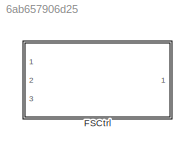
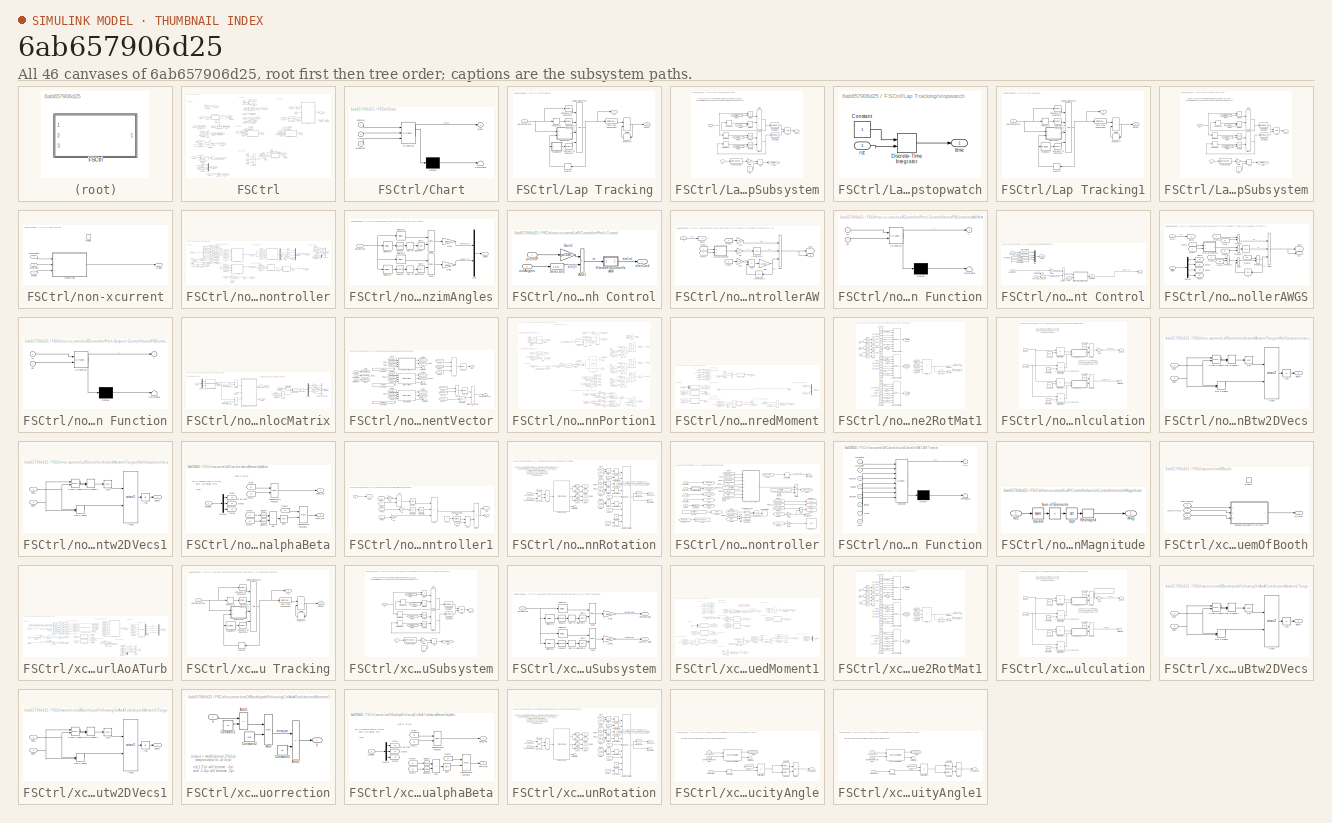
[diagram: thumbnail index - all 46 canvases of the model, root first then tree order]
MODEL slx_6ab657906d25
KIND library
CONFIG AbsTol = auto
CONFIG EnableMultiTasking = off
CONFIG FixedStep = auto
CONFIG MaxStep = auto
CONFIG MinStep = auto
CONFIG RelTol = 1e-3
CONFIG SampleTimeConstraint = Unconstrained
CONFIG SolverName = VariableStepAuto
CONFIG StartTime = 0.0
CONFIG StopTime = 10.0
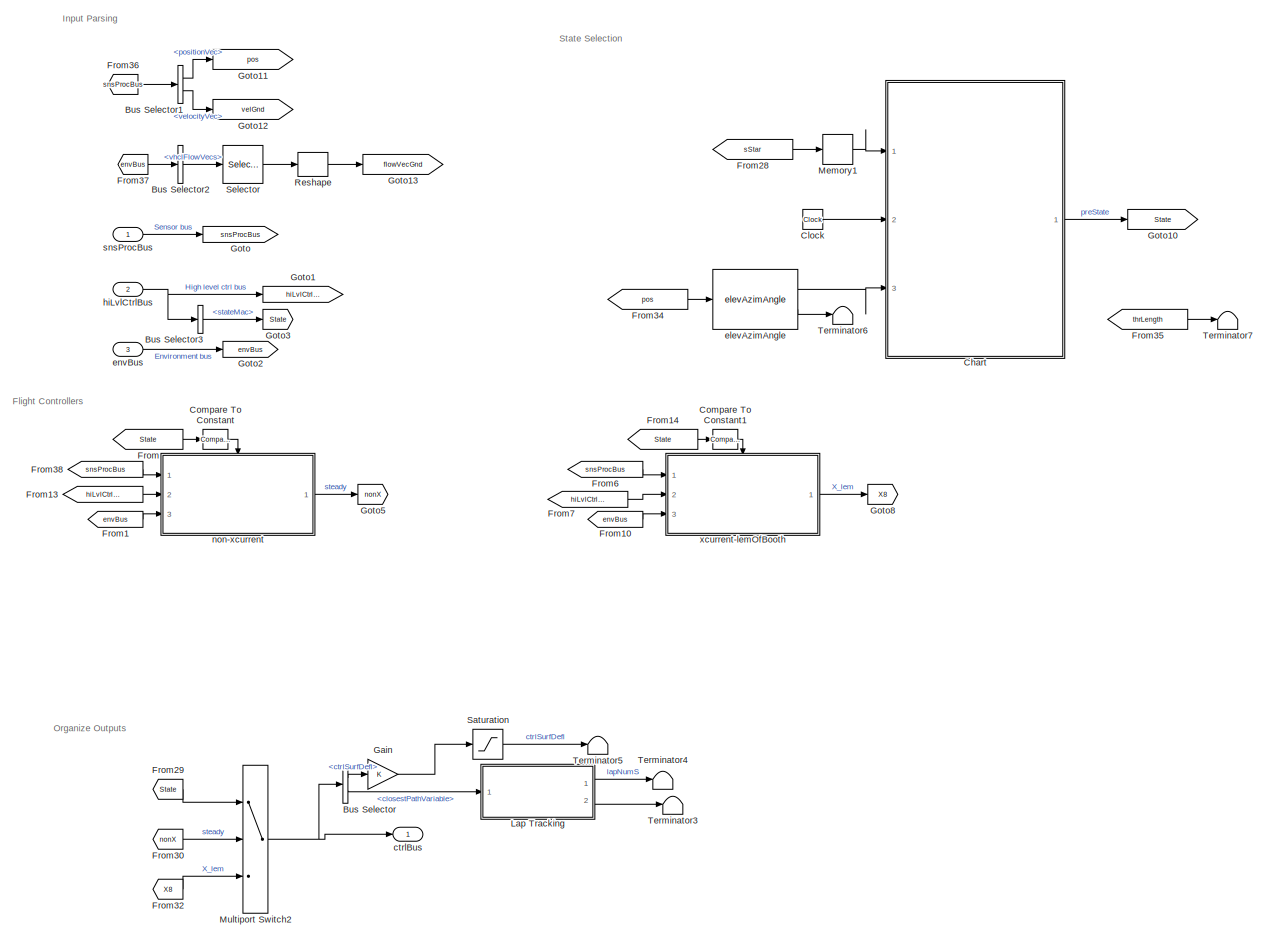
[diagram: FSCtrl - part 1/2, center side, full height]
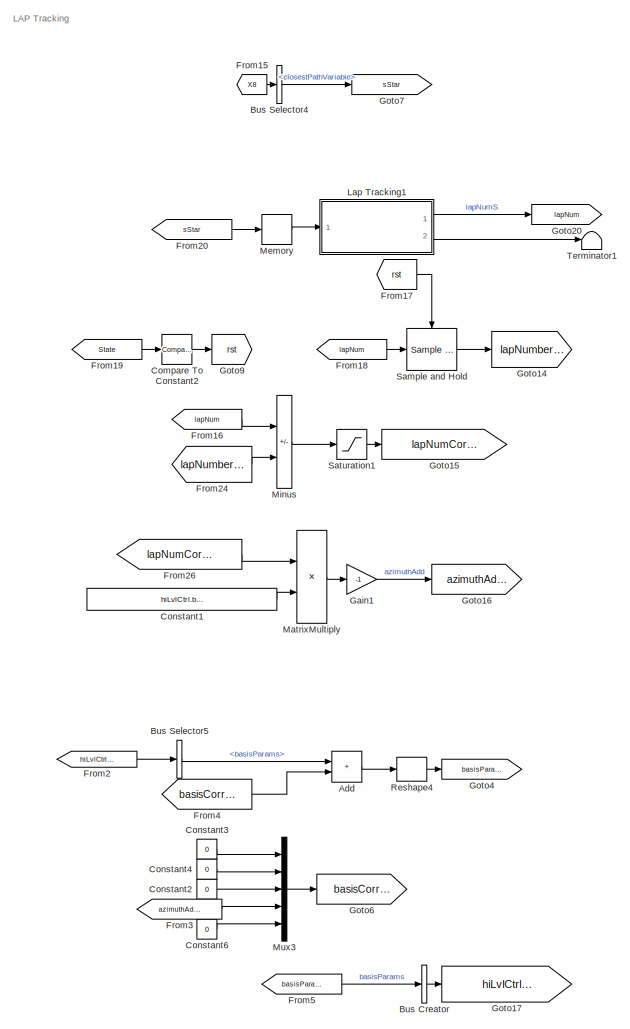
[diagram: FSCtrl - part 2/2, left side, full height]
BLOCK [SubSystem] FSCtrl
  InitFcn = initializeBussesFromBlock(gcb)
  LoadFcn = initializeBussesFromBlock(gcb)
  MinAlgLoopOccurrences = on
  Ports = [3, 1]
  RequestExecContextInheritance = off
  StartFcn = initializeBussesFromBlock(gcb)
  VariantControl = strcmpi(FLIGHTCONTROLLER,'FSCtrl')
BLOCK [Sum] FSCtrl/Add
  IconShape = rectangular
  Ports = [2, 1]
BLOCK [BusCreator] FSCtrl/Bus Creator
  DisplayOption = bar
  InheritFromInputs = on
  Inputs = 1
  OutDataTypeStr = Bus:hiLvlCtrlBus
  Ports = [1, 1]
BLOCK [BusSelector] FSCtrl/Bus Selector
  OutputSignals = ctrlSurfDefl,closestPathVariable
  Ports = [1, 2]
BLOCK [BusSelector] FSCtrl/Bus Selector1
  OutputSignals = positionVec,velocityVec
  Ports = [1, 2]
BLOCK [BusSelector] FSCtrl/Bus Selector2
  OutputSignals = vhclFlowVecs
  Ports = [1, 1]
BLOCK [BusSelector] FSCtrl/Bus Selector3
  Commented = on
  OutputSignals = stateMac
  Ports = [1, 1]
BLOCK [BusSelector] FSCtrl/Bus Selector4
  OutputSignals = closestPathVariable
  Ports = [1, 1]
BLOCK [BusSelector] FSCtrl/Bus Selector5
  OutputSignals = basisParams
  Ports = [1, 1]
BLOCK [SubSystem] FSCtrl/Chart
  ErrorFcn = Stateflow.Translate.translate
  PermitHierarchicalResolution = ExplicitOnly
  Ports = [3, 1]
  RequestExecContextInheritance = off
  SFBlockType = Chart
  TreatAsAtomicUnit = on
BLOCK [Demux] FSCtrl/Chart/ Demux 
  Outputs = 1
  Ports = [1, 1]
BLOCK [S-Function] FSCtrl/Chart/ SFunction 
  EnableBusSupport = off
  FunctionName = sf_sfun
  Parameters = 1,preEL
  PortCounts = [3 2]
  Ports = [3, 2]
  SFcnIsStateOwnerBlock = off
  SFunctionDeploymentMode = off
  Tag = Stateflow S-Function 3
BLOCK [Terminator] FSCtrl/Chart/ Terminator 
BLOCK [Inport] FSCtrl/Chart/elevation
  Port = 3
BLOCK [Inport] FSCtrl/Chart/pathVar
BLOCK [Outport] FSCtrl/Chart/state
BLOCK [Inport] FSCtrl/Chart/time
  Port = 2
BLOCK [Clock] FSCtrl/Clock
BLOCK [Reference] FSCtrl/Compare To Constant  REF=simulink/Logic and Bit
Operations/Compare
To Constant
  Ports = [1, 1]
  SourceBlock = simulink/Logic and Bit\nOperations/Compare\nTo Constant
  SourceProductBaseCode = SL
  SourceType = Compare To Constant
BLOCK [Reference] FSCtrl/Compare To Constant1  REF=simulink/Logic and Bit
Operations/Compare
To Constant
  Ports = [1, 1]
  SourceBlock = simulink/Logic and Bit\nOperations/Compare\nTo Constant
  SourceProductBaseCode = SL
  SourceType = Compare To Constant
BLOCK [Reference] FSCtrl/Compare To Constant2  REF=simulink/Logic and Bit
Operations/Compare
To Constant
  Ports = [1, 1]
  SourceBlock = simulink/Logic and Bit\nOperations/Compare\nTo Constant
  SourceProductBaseCode = SL
  SourceType = Compare To Constant
BLOCK [Constant] FSCtrl/Constant1
  Value = hiLvlCtrl.basisParams.Value(4)/maxLap
BLOCK [Constant] FSCtrl/Constant2
  Value = 0
BLOCK [Constant] FSCtrl/Constant3
  Value = 0
BLOCK [Constant] FSCtrl/Constant4
  Value = 0
BLOCK [Constant] FSCtrl/Constant6
  Value = 0
BLOCK [From] FSCtrl/From
  GotoTag = State
BLOCK [From] FSCtrl/From1
  GotoTag = envBus
BLOCK [From] FSCtrl/From10
  GotoTag = envBus
BLOCK [From] FSCtrl/From13
  GotoTag = hiLvlCtrlBus
BLOCK [From] FSCtrl/From14
  GotoTag = State
BLOCK [From] FSCtrl/From15
  GotoTag = X8
BLOCK [From] FSCtrl/From16
  GotoTag = lapNum
BLOCK [From] FSCtrl/From17
  GotoTag = rst
BLOCK [From] FSCtrl/From18
  GotoTag = lapNum
BLOCK [From] FSCtrl/From19
  GotoTag = State
BLOCK [From] FSCtrl/From2
  GotoTag = hiLvlCtrlBus
BLOCK [From] FSCtrl/From20
  GotoTag = sStar
BLOCK [From] FSCtrl/From24
  GotoTag = lapNumberHold
BLOCK [From] FSCtrl/From26
  GotoTag = lapNumCorrected
BLOCK [From] FSCtrl/From28
  GotoTag = sStar
BLOCK [From] FSCtrl/From29
  GotoTag = State
BLOCK [From] FSCtrl/From3
  GotoTag = azimuthAddition
BLOCK [From] FSCtrl/From30
  GotoTag = nonX
BLOCK [From] FSCtrl/From32
  GotoTag = X8
BLOCK [From] FSCtrl/From34
  GotoTag = pos
BLOCK [From] FSCtrl/From35
  Commented = on
  GotoTag = thrLength
BLOCK [From] FSCtrl/From36
  GotoTag = snsProcBus
BLOCK [From] FSCtrl/From37
  GotoTag = envBus
BLOCK [From] FSCtrl/From38
  GotoTag = snsProcBus
BLOCK [From] FSCtrl/From4
  GotoTag = basisCorrection
BLOCK [From] FSCtrl/From5
  GotoTag = basisParams
BLOCK [From] FSCtrl/From6
  GotoTag = snsProcBus
BLOCK [From] FSCtrl/From7
  GotoTag = hiLvlCtrlBusAlt
BLOCK [Gain] FSCtrl/Gain
BLOCK [Gain] FSCtrl/Gain1
  Gain = -1
BLOCK [Goto] FSCtrl/Goto
  GotoTag = snsProcBus
BLOCK [Goto] FSCtrl/Goto1
  GotoTag = hiLvlCtrlBus
BLOCK [Goto] FSCtrl/Goto10
  GotoTag = State
BLOCK [Goto] FSCtrl/Goto11
  GotoTag = pos
BLOCK [Goto] FSCtrl/Goto12
  GotoTag = velGnd
BLOCK [Goto] FSCtrl/Goto13
  GotoTag = flowVecGnd
BLOCK [Goto] FSCtrl/Goto14
  GotoTag = lapNumberHold
BLOCK [Goto] FSCtrl/Goto15
  GotoTag = lapNumCorrected
BLOCK [Goto] FSCtrl/Goto16
  GotoTag = azimuthAddition
BLOCK [Goto] FSCtrl/Goto17
  GotoTag = hiLvlCtrlBusAlt
BLOCK [Goto] FSCtrl/Goto2
  GotoTag = envBus
BLOCK [Goto] FSCtrl/Goto20
  GotoTag = lapNum
BLOCK [Goto] FSCtrl/Goto3
  Commented = on
  GotoTag = State
BLOCK [Goto] FSCtrl/Goto4
  GotoTag = basisParams
BLOCK [Goto] FSCtrl/Goto5
  GotoTag = nonX
BLOCK [Goto] FSCtrl/Goto6
  GotoTag = basisCorrection
BLOCK [Goto] FSCtrl/Goto7
  GotoTag = sStar
BLOCK [Goto] FSCtrl/Goto8
  GotoTag = X8
BLOCK [Goto] FSCtrl/Goto9
  GotoTag = rst
BLOCK [SubSystem] FSCtrl/Lap Tracking
  AncestorBlock = pathFollowingCtrlAoATurb_cl/pathFollowingCtrlAoATurb/Lap Tracking
  Ports = [1, 2]
  RequestExecContextInheritance = off
BLOCK [Sum] FSCtrl/Lap Tracking/Add2
  IconShape = rectangular
  Ports = [2, 1]
BLOCK [Reference] FSCtrl/Lap Tracking/Compare To Constant1  REF=simulink/Logic and Bit
Operations/Compare
To Constant
  Ports = [1, 1]
  SourceBlock = simulink/Logic and Bit\nOperations/Compare\nTo Constant
  SourceProductBaseCode = SL
  SourceType = Compare To Constant
BLOCK [Reference] FSCtrl/Lap Tracking/Compare To Constant3  REF=simulink/Logic and Bit
Operations/Compare
To Constant
  Ports = [1, 1]
  SourceBlock = simulink/Logic and Bit\nOperations/Compare\nTo Constant
  SourceProductBaseCode = SL
  SourceType = Compare To Constant
BLOCK [Reference] FSCtrl/Lap Tracking/Compare To Constant4  REF=simulink/Logic and Bit
Operations/Compare
To Constant
  Ports = [1, 1]
  SourceBlock = simulink/Logic and Bit\nOperations/Compare\nTo Constant
  SourceProductBaseCode = SL
  SourceType = Compare To Constant
BLOCK [DataTypeConversion] FSCtrl/Lap Tracking/Data Type Conversion2
  OutDataTypeStr = double
  RndMeth = Floor
  SaturateOnIntegerOverflow = off
BLOCK [Logic] FSCtrl/Lap Tracking/Logical Operator1
  AllPortsSameDT = off
  Inputs = 4
  OutDataTypeStr = boolean
  Ports = [4, 1]
BLOCK [Memory] FSCtrl/Lap Tracking/Memory
  InitialCondition = false
BLOCK [Memory] FSCtrl/Lap Tracking/Memory3
BLOCK [Memory] FSCtrl/Lap Tracking/Memory4
BLOCK [SubSystem] FSCtrl/Lap Tracking/Subsystem
  Ports = [2, 1]
  RequestExecContextInheritance = off
BLOCK [Logic] FSCtrl/Lap Tracking/Subsystem/AND
  AllPortsSameDT = off
  OutDataTypeStr = boolean
  Ports = [2, 1]
BLOCK [Sum] FSCtrl/Lap Tracking/Subsystem/Add
  IconShape = rectangular
  Ports = [2, 1]
BLOCK [DataTypeConversion] FSCtrl/Lap Tracking/Subsystem/Cast To Double
  OutDataTypeStr = double
  RndMeth = Floor
  SaturateOnIntegerOverflow = off
BLOCK [Reference] FSCtrl/Lap Tracking/Subsystem/Compare To Constant  REF=simulink/Logic and Bit
Operations/Compare
To Constant
  Ports = [1, 1]
  SourceBlock = simulink/Logic and Bit\nOperations/Compare\nTo Constant
  SourceProductBaseCode = SL
  SourceType = Compare To Constant
BLOCK [Reference] FSCtrl/Lap Tracking/Subsystem/Compare To Constant1  REF=simulink/Logic and Bit
Operations/Compare
To Constant
  Ports = [1, 1]
  SourceBlock = simulink/Logic and Bit\nOperations/Compare\nTo Constant
  SourceProductBaseCode = SL
  SourceType = Compare To Constant
BLOCK [Product] FSCtrl/Lap Tracking/Subsystem/Divide
  Inputs = **
  Ports = [2, 1]
BLOCK [Product] FSCtrl/Lap Tracking/Subsystem/Divide1
  Inputs = **
  Ports = [2, 1]
BLOCK [From] FSCtrl/Lap Tracking/Subsystem/From
  GotoTag = zeroIfReset
BLOCK [From] FSCtrl/Lap Tracking/Subsystem/From1
  GotoTag = zeroIfReset
BLOCK [From] FSCtrl/Lap Tracking/Subsystem/From2
  GotoTag = zeroIfReset
BLOCK [From] FSCtrl/Lap Tracking/Subsystem/From3
  GotoTag = zeroIfReset
BLOCK [Gain] FSCtrl/Lap Tracking/Subsystem/Gain
  Gain = -1
BLOCK [Goto] FSCtrl/Lap Tracking/Subsystem/Goto
  GotoTag = zeroIfReset
BLOCK [MinMax] FSCtrl/Lap Tracking/Subsystem/Max
  Function = max
  Inputs = 2
  Ports = [2, 1]
BLOCK [MinMax] FSCtrl/Lap Tracking/Subsystem/Max1
  Inputs = 2
  Ports = [2, 1]
BLOCK [Constant] FSCtrl/Lap Tracking/Subsystem/One
  OutDataTypeStr = Inherit: Inherit via back propagation
BLOCK [Math] FSCtrl/Lap Tracking/Subsystem/Power
  Operator = pow
  Ports = [2, 1]
BLOCK [Math] FSCtrl/Lap Tracking/Subsystem/Power1
  Operator = pow
  Ports = [2, 1]
BLOCK [Inport] FSCtrl/Lap Tracking/Subsystem/S
BLOCK [Memory] FSCtrl/Lap Tracking/Subsystem/memoryIC1
  InitialCondition = 1
BLOCK [Memory] FSCtrl/Lap Tracking/Subsystem/memoryIC=0
BLOCK [Memory] FSCtrl/Lap Tracking/Subsystem/memoryIC=1
  InitialCondition = 1
BLOCK [Outport] FSCtrl/Lap Tracking/Subsystem/realLap
BLOCK [Inport] FSCtrl/Lap Tracking/Subsystem/rst
  Port = 2
BLOCK [Outport] FSCtrl/Lap Tracking/lapNum
  VectorParamsAs1DForOutWhenUnconnected = off
BLOCK [Inport] FSCtrl/Lap Tracking/pathParameter
BLOCK [Outport] FSCtrl/Lap Tracking/rst
  Port = 2
  VectorParamsAs1DForOutWhenUnconnected = off
BLOCK [SubSystem] FSCtrl/Lap Tracking/stopwatch
  AncestorBlock = stopwatch_ul/stopwatch
  Ports = [1, 1]
  RequestExecContextInheritance = off
BLOCK [Constant] FSCtrl/Lap Tracking/stopwatch/Constant
BLOCK [DiscreteIntegrator] FSCtrl/Lap Tracking/stopwatch/Discrete-Time Integrator
  ExternalReset = rising
  ICPrevOutput = DiscIntNeverNeededParam
  ICPrevScaledInput = DiscIntNeverNeededParam
  InitialConditionSetting = Auto
  Ports = [2, 1]
  SampleTime = -1
BLOCK [Inport] FSCtrl/Lap Tracking/stopwatch/rst
BLOCK [Outport] FSCtrl/Lap Tracking/stopwatch/time
  VectorParamsAs1DForOutWhenUnconnected = off
BLOCK [SubSystem] FSCtrl/Lap Tracking1
  AncestorBlock = pathFollowingCtrlAoATurb_cl/pathFollowingCtrlAoATurb/Lap Tracking
  Ports = [1, 2]
  RequestExecContextInheritance = off
BLOCK [Sum] FSCtrl/Lap Tracking1/Add2
  IconShape = rectangular
  Ports = [2, 1]
BLOCK [Reference] FSCtrl/Lap Tracking1/Compare To Constant1  REF=simulink/Logic and Bit
Operations/Compare
To Constant
  Ports = [1, 1]
  SourceBlock = simulink/Logic and Bit\nOperations/Compare\nTo Constant
  SourceProductBaseCode = SL
  SourceType = Compare To Constant
BLOCK [Reference] FSCtrl/Lap Tracking1/Compare To Constant3  REF=simulink/Logic and Bit
Operations/Compare
To Constant
  Ports = [1, 1]
  SourceBlock = simulink/Logic and Bit\nOperations/Compare\nTo Constant
  SourceProductBaseCode = SL
  SourceType = Compare To Constant
BLOCK [Reference] FSCtrl/Lap Tracking1/Compare To Constant4  REF=simulink/Logic and Bit
Operations/Compare
To Constant
  Ports = [1, 1]
  SourceBlock = simulink/Logic and Bit\nOperations/Compare\nTo Constant
  SourceProductBaseCode = SL
  SourceType = Compare To Constant
BLOCK [DataTypeConversion] FSCtrl/Lap Tracking1/Data Type Conversion2
  OutDataTypeStr = double
  RndMeth = Floor
  SaturateOnIntegerOverflow = off
BLOCK [Logic] FSCtrl/Lap Tracking1/Logical Operator1
  AllPortsSameDT = off
  Inputs = 4
  OutDataTypeStr = boolean
  Ports = [4, 1]
BLOCK [Memory] FSCtrl/Lap Tracking1/Memory
  InitialCondition = false
BLOCK [Memory] FSCtrl/Lap Tracking1/Memory3
BLOCK [Memory] FSCtrl/Lap Tracking1/Memory4
BLOCK [SubSystem] FSCtrl/Lap Tracking1/Subsystem
  Ports = [2, 1]
  RequestExecContextInheritance = off
BLOCK [Logic] FSCtrl/Lap Tracking1/Subsystem/AND
  AllPortsSameDT = off
  OutDataTypeStr = boolean
  Ports = [2, 1]
BLOCK [Sum] FSCtrl/Lap Tracking1/Subsystem/Add
  IconShape = rectangular
  Ports = [2, 1]
BLOCK [DataTypeConversion] FSCtrl/Lap Tracking1/Subsystem/Cast To Double
  OutDataTypeStr = double
  RndMeth = Floor
  SaturateOnIntegerOverflow = off
BLOCK [Reference] FSCtrl/Lap Tracking1/Subsystem/Compare To Constant  REF=simulink/Logic and Bit
Operations/Compare
To Constant
  Ports = [1, 1]
  SourceBlock = simulink/Logic and Bit\nOperations/Compare\nTo Constant
  SourceProductBaseCode = SL
  SourceType = Compare To Constant
BLOCK [Reference] FSCtrl/Lap Tracking1/Subsystem/Compare To Constant1  REF=simulink/Logic and Bit
Operations/Compare
To Constant
  Ports = [1, 1]
  SourceBlock = simulink/Logic and Bit\nOperations/Compare\nTo Constant
  SourceProductBaseCode = SL
  SourceType = Compare To Constant
BLOCK [Product] FSCtrl/Lap Tracking1/Subsystem/Divide
  Inputs = **
  Ports = [2, 1]
BLOCK [Product] FSCtrl/Lap Tracking1/Subsystem/Divide1
  Inputs = **
  Ports = [2, 1]
BLOCK [From] FSCtrl/Lap Tracking1/Subsystem/From
  GotoTag = zeroIfReset
BLOCK [From] FSCtrl/Lap Tracking1/Subsystem/From1
  GotoTag = zeroIfReset
BLOCK [From] FSCtrl/Lap Tracking1/Subsystem/From2
  GotoTag = zeroIfReset
BLOCK [From] FSCtrl/Lap Tracking1/Subsystem/From3
  GotoTag = zeroIfReset
BLOCK [Gain] FSCtrl/Lap Tracking1/Subsystem/Gain
  Gain = -1
BLOCK [Goto] FSCtrl/Lap Tracking1/Subsystem/Goto
  GotoTag = zeroIfReset
BLOCK [MinMax] FSCtrl/Lap Tracking1/Subsystem/Max
  Function = max
  Inputs = 2
  Ports = [2, 1]
BLOCK [MinMax] FSCtrl/Lap Tracking1/Subsystem/Max1
  Inputs = 2
  Ports = [2, 1]
BLOCK [Constant] FSCtrl/Lap Tracking1/Subsystem/One
  OutDataTypeStr = Inherit: Inherit via back propagation
BLOCK [Math] FSCtrl/Lap Tracking1/Subsystem/Power
  Operator = pow
  Ports = [2, 1]
BLOCK [Math] FSCtrl/Lap Tracking1/Subsystem/Power1
  Operator = pow
  Ports = [2, 1]
BLOCK [Inport] FSCtrl/Lap Tracking1/Subsystem/S
BLOCK [Memory] FSCtrl/Lap Tracking1/Subsystem/memoryIC1
  InitialCondition = 1
BLOCK [Memory] FSCtrl/Lap Tracking1/Subsystem/memoryIC=0
BLOCK [Memory] FSCtrl/Lap Tracking1/Subsystem/memoryIC=1
  InitialCondition = 1
BLOCK [Outport] FSCtrl/Lap Tracking1/Subsystem/realLap
BLOCK [Inport] FSCtrl/Lap Tracking1/Subsystem/rst
  Port = 2
BLOCK [Outport] FSCtrl/Lap Tracking1/lapNum
  VectorParamsAs1DForOutWhenUnconnected = off
BLOCK [Inport] FSCtrl/Lap Tracking1/pathParameter
BLOCK [Outport] FSCtrl/Lap Tracking1/rst
  Port = 2
  VectorParamsAs1DForOutWhenUnconnected = off
BLOCK [Reference] FSCtrl/Lap Tracking1/stopwatch  REF=stopwatch_ul/stopwatch  (lib defined in slx_5231e8830116, slx_6b86a6863970)
  Ports = [1, 1]
  SourceBlock = stopwatch_ul/stopwatch
  SourceType = SubSystem
BLOCK [Product] FSCtrl/MatrixMultiply
  Ports = [2, 1]
BLOCK [Memory] FSCtrl/Memory
BLOCK [Memory] FSCtrl/Memory1
BLOCK [Sum] FSCtrl/Minus
  IconShape = rectangular
  Inputs = +-
  Ports = [2, 1]
BLOCK [MultiPortSwitch] FSCtrl/Multiport Switch2
  DataPortIndices = {1,2,3,4,5,6}
  DiagnosticForDefault = Warning
  Inputs = 2
  Ports = [3, 1]
  SaturateOnIntegerOverflow = off
BLOCK [Mux] FSCtrl/Mux3
  DisplayOption = bar
  Inputs = 5
  Ports = [5, 1]
BLOCK [Reshape] FSCtrl/Reshape
  OutputDimensionality = Column vector (2-D)
  Ports = [1, 1]
BLOCK [Reshape] FSCtrl/Reshape4
  OutputDimensionality = Column vector (2-D)
  Ports = [1, 1]
BLOCK [Reference] FSCtrl/Sample and Hold  REF=dspsigops/Sample
and Hold
  Ports = [1, 1, 0, 1]
  SourceBlock = dspsigops/Sample\nand Hold
  SourceProductBaseCode = DS
  SourceType = Sample and Hold
BLOCK [Saturate] FSCtrl/Saturation
  LowerLimit = -30
  UpperLimit = 30
BLOCK [Saturate] FSCtrl/Saturation1
  LowerLimit = 0
  UpperLimit = maxLap
BLOCK [Selector] FSCtrl/Selector
  IndexOptions = Select all,Index vector (dialog)
  Indices = [1 3],5
  InputPortWidth = 3
  NumberOfDimensions = 2
  OutputSizes = 1,1
  Ports = [1, 1]
BLOCK [Terminator] FSCtrl/Terminator1
BLOCK [Terminator] FSCtrl/Terminator3
BLOCK [Terminator] FSCtrl/Terminator4
BLOCK [Terminator] FSCtrl/Terminator5
BLOCK [Terminator] FSCtrl/Terminator6
BLOCK [Terminator] FSCtrl/Terminator7
  Commented = on
BLOCK [Outport] FSCtrl/ctrlBus
  OutDataTypeStr = Bus: fltCtrlBus
  VectorParamsAs1DForOutWhenUnconnected = off
BLOCK [Reference] FSCtrl/elevAzimAngle  REF=elevAzimAngles/elevAzimAngle
  Ports = [1, 2]
  SourceBlock = elevAzimAngles/elevAzimAngle
  SourceType = SubSystem
BLOCK [Inport] FSCtrl/envBus
  OutDataTypeStr = Bus: envBus
  Port = 3
BLOCK [Inport] FSCtrl/hiLvlCtrlBus
  OutDataTypeStr = Bus: hiLvlCtrlBus
  Port = 2
BLOCK [SubSystem] FSCtrl/non-xcurrent
  Ports = [3, 1, 1]
  RequestExecContextInheritance = off
  TreatAsAtomicUnit = on
BLOCK [EnablePort] FSCtrl/non-xcurrent/Enable
  Ports = []
  StatesWhenEnabling = reset
BLOCK [SubSystem] FSCtrl/non-xcurrent/LaRController
  InitFcn = initializeBussesFromBlock(gcb)
  LoadFcn = initializeBussesFromBlock(gcb)
  MinAlgLoopOccurrences = on
  Ports = [3, 1]
  RequestExecContextInheritance = off
  StartFcn = initializeBussesFromBlock(gcb)
  VariantControl = strcmpi(FLIGHTCONTROLLER,'LaRController')
BLOCK [Sum] FSCtrl/non-xcurrent/LaRController/Add
  IconShape = rectangular
  Ports = [2, 1]
BLOCK [BusCreator] FSCtrl/non-xcurrent/LaRController/Bus Creator
  DisplayOption = bar
  InheritFromInputs = on
  Inputs = 5
  Ports = [5, 1]
BLOCK [BusSelector] FSCtrl/non-xcurrent/LaRController/Bus Selector
  OutputSignals = positionVec,velocityVec,eulerAngles,angularVel,gndStnPositionVec,avgTetherLength,gndTenVecs
  Ports = [1, 7]
BLOCK [BusSelector] FSCtrl/non-xcurrent/LaRController/Bus Selector1
  OutputSignals = vhclFlowVecs
  Ports = [1, 1]
BLOCK [BusSelector] FSCtrl/non-xcurrent/LaRController/Bus Selector2
  OutputSignals = basisParams
  Ports = [1, 1]
BLOCK [Constant] FSCtrl/non-xcurrent/LaRController/Constant
  Value = elevationSetpointOffset
BLOCK [Demux] FSCtrl/non-xcurrent/LaRController/Demux1
  Ports = [1, 4]
BLOCK [SubSystem] FSCtrl/non-xcurrent/LaRController/ElevAzimAngles
  Ports = [1, 1]
  RequestExecContextInheritance = off
BLOCK [Outport] FSCtrl/non-xcurrent/LaRController/ElevAzimAngles/Angles
BLOCK [Trigonometry] FSCtrl/non-xcurrent/LaRController/ElevAzimAngles/Atan1
  Operator = atan2
  Ports = [2, 1]
BLOCK [Trigonometry] FSCtrl/non-xcurrent/LaRController/ElevAzimAngles/Atan2
  Operator = atan2
  Ports = [2, 1]
BLOCK [Gain] FSCtrl/non-xcurrent/LaRController/ElevAzimAngles/Gain
  Gain = 180/pi
BLOCK [Gain] FSCtrl/non-xcurrent/LaRController/ElevAzimAngles/Gain1
  Gain = 180/pi
BLOCK [Mux] FSCtrl/non-xcurrent/LaRController/ElevAzimAngles/Mux
  DisplayOption = bar
  Inputs = 2
  Ports = [2, 1]
BLOCK [Selector] FSCtrl/non-xcurrent/LaRController/ElevAzimAngles/Selector1
  IndexOptions = Index vector (dialog)
  Indices = 1
  InputPortWidth = 3
  OutputSizes = 1
  Ports = [1, 1]
BLOCK [Selector] FSCtrl/non-xcurrent/LaRController/ElevAzimAngles/Selector2
  IndexOptions = Index vector (dialog)
  Indices = [1 2]
  InputPortWidth = 3
  OutputSizes = 1
  Ports = [1, 1]
BLOCK [Selector] FSCtrl/non-xcurrent/LaRController/ElevAzimAngles/Selector3
  IndexOptions = Index vector (dialog)
  Indices = 3
  InputPortWidth = 3
  OutputSizes = 1
  Ports = [1, 1]
BLOCK [Selector] FSCtrl/non-xcurrent/LaRController/ElevAzimAngles/Selector4
  IndexOptions = Index vector (dialog)
  Indices = 2
  InputPortWidth = 3
  OutputSizes = 1
  Ports = [1, 1]
BLOCK [Sqrt] FSCtrl/non-xcurrent/LaRController/ElevAzimAngles/Sqrt1
BLOCK [Sqrt] FSCtrl/non-xcurrent/LaRController/ElevAzimAngles/Sqrt2
BLOCK [Math] FSCtrl/non-xcurrent/LaRController/ElevAzimAngles/Square1
  Operator = square
  Ports = [1, 1]
  SignedPower = on
BLOCK [Math] FSCtrl/non-xcurrent/LaRController/ElevAzimAngles/Square2
  Operator = square
  Ports = [1, 1]
  SignedPower = on
BLOCK [Sum] FSCtrl/non-xcurrent/LaRController/ElevAzimAngles/Sum of Elements
  IconShape = rectangular
  Inputs = +
  Ports = [1, 1]
BLOCK [Sum] FSCtrl/non-xcurrent/LaRController/ElevAzimAngles/Sum of Elements1
  IconShape = rectangular
  Inputs = +
  Ports = [1, 1]
BLOCK [Inport] FSCtrl/non-xcurrent/LaRController/ElevAzimAngles/posVecGnd
BLOCK [From] FSCtrl/non-xcurrent/LaRController/From
  GotoTag = flowVecGnd
BLOCK [From] FSCtrl/non-xcurrent/LaRController/From1
  GotoTag = pos
BLOCK [From] FSCtrl/non-xcurrent/LaRController/From10
  GotoTag = posAngles
BLOCK [From] FSCtrl/non-xcurrent/LaRController/From11
  GotoTag = eul
BLOCK [From] FSCtrl/non-xcurrent/LaRController/From12
  GotoTag = flowVecGnd
BLOCK [From] FSCtrl/non-xcurrent/LaRController/From13
  GotoTag = pos
BLOCK [From] FSCtrl/non-xcurrent/LaRController/From14
  GotoTag = velGnd
BLOCK [From] FSCtrl/non-xcurrent/LaRController/From15
  GotoTag = thrTension
BLOCK [From] FSCtrl/non-xcurrent/LaRController/From16
  GotoTag = thrLength
BLOCK [From] FSCtrl/non-xcurrent/LaRController/From17
  GotoTag = ctrlSurDefl
BLOCK [From] FSCtrl/non-xcurrent/LaRController/From18
  GotoTag = MDesBdy
BLOCK [From] FSCtrl/non-xcurrent/LaRController/From19
  GotoTag = elevationSP
BLOCK [From] FSCtrl/non-xcurrent/LaRController/From2
  GotoTag = velGnd
BLOCK [From] FSCtrl/non-xcurrent/LaRController/From20
  GotoTag = basis
BLOCK [From] FSCtrl/non-xcurrent/LaRController/From21
  GotoTag = pathCntr
BLOCK [From] FSCtrl/non-xcurrent/LaRController/From24
  GotoTag = eul
BLOCK [From] FSCtrl/non-xcurrent/LaRController/From3
  GotoTag = eul
BLOCK [From] FSCtrl/non-xcurrent/LaRController/From4
  GotoTag = elevatorCmd
BLOCK [From] FSCtrl/non-xcurrent/LaRController/From5
  GotoTag = eul
BLOCK [From] FSCtrl/non-xcurrent/LaRController/From6
  GotoTag = thrLength
BLOCK [From] FSCtrl/non-xcurrent/LaRController/From7
  GotoTag = angVel
BLOCK [From] FSCtrl/non-xcurrent/LaRController/From8
  GotoTag = winchCmd
BLOCK [From] FSCtrl/non-xcurrent/LaRController/From9
  GotoTag = posAngles
BLOCK [Gain] FSCtrl/non-xcurrent/LaRController/Gain
  Gain = slfCtrl.rudderGain.Value
BLOCK [Gain] FSCtrl/non-xcurrent/LaRController/Gain1
BLOCK [Gain] FSCtrl/non-xcurrent/LaRController/Gain2
  Gain = 180/pi
BLOCK [Gain] FSCtrl/non-xcurrent/LaRController/Gain3
BLOCK [Gain] FSCtrl/non-xcurrent/LaRController/Gain4
BLOCK [Gain] FSCtrl/non-xcurrent/LaRController/Gain5
BLOCK [Goto] FSCtrl/non-xcurrent/LaRController/Goto
  GotoTag = flowVecGnd
BLOCK [Goto] FSCtrl/non-xcurrent/LaRController/Goto1
  GotoTag = pos
BLOCK [Goto] FSCtrl/non-xcurrent/LaRController/Goto10
  GotoTag = basis
BLOCK [Goto] FSCtrl/non-xcurrent/LaRController/Goto12
  GotoTag = elevatorCmd
BLOCK [Goto] FSCtrl/non-xcurrent/LaRController/Goto13
  GotoTag = MDesBdy
BLOCK [Goto] FSCtrl/non-xcurrent/LaRController/Goto14
  GotoTag = ctrlSurDefl
BLOCK [Goto] FSCtrl/non-xcurrent/LaRController/Goto16
  GotoTag = pathCntr
BLOCK [Goto] FSCtrl/non-xcurrent/LaRController/Goto2
  GotoTag = velGnd
BLOCK [Goto] FSCtrl/non-xcurrent/LaRController/Goto3
  GotoTag = eul
BLOCK [Goto] FSCtrl/non-xcurrent/LaRController/Goto4
  GotoTag = winchCmd
BLOCK [Goto] FSCtrl/non-xcurrent/LaRController/Goto5
  GotoTag = thrLength
BLOCK [Goto] FSCtrl/non-xcurrent/LaRController/Goto6
  GotoTag = angVel
BLOCK [Goto] FSCtrl/non-xcurrent/LaRController/Goto7
  GotoTag = posAngles
BLOCK [Goto] FSCtrl/non-xcurrent/LaRController/Goto8
  GotoTag = thrTension
BLOCK [Goto] FSCtrl/non-xcurrent/LaRController/Goto9
  GotoTag = elevationSP
BLOCK [Ground] FSCtrl/non-xcurrent/LaRController/Ground
BLOCK [Ground] FSCtrl/non-xcurrent/LaRController/Ground1
BLOCK [Ground] FSCtrl/non-xcurrent/LaRController/Ground2
BLOCK [Mux] FSCtrl/non-xcurrent/LaRController/Mux
  DisplayOption = bar
  Ports = [4, 1]
BLOCK [Mux] FSCtrl/non-xcurrent/LaRController/Mux2
  DisplayOption = bar
  Inputs = 2
  Ports = [2, 1]
BLOCK [SubSystem] FSCtrl/non-xcurrent/LaRController/Pitch Control
  Ports = [2, 1]
  RequestExecContextInheritance = off
BLOCK [Sum] FSCtrl/non-xcurrent/LaRController/Pitch Control/Add1
  IconShape = rectangular
  Inputs = -+
  Ports = [2, 1]
BLOCK [Gain] FSCtrl/non-xcurrent/LaRController/Pitch Control/Gain2
  Gain = pi/180
BLOCK [Selector] FSCtrl/non-xcurrent/LaRController/Pitch Control/Selector2
  IndexOptions = Index vector (dialog)
  Indices = 2
  InputPortWidth = 3
  OutputSizes = 1
  Ports = [1, 1]
BLOCK [Outport] FSCtrl/non-xcurrent/LaRController/Pitch Control/elevCmd
BLOCK [Inport] FSCtrl/non-xcurrent/LaRController/Pitch Control/eulAngles
  Port = 2
BLOCK [SubSystem] FSCtrl/non-xcurrent/LaRController/Pitch Control/filteredPIDControllerAW
  AncestorBlock = filteredPIDControllerAW_ul/filteredPIDControllerAW
  Ports = [1, 1]
  RequestExecContextInheritance = off
BLOCK [Sum] FSCtrl/non-xcurrent/LaRController/Pitch Control/filteredPIDControllerAW/Add3
  IconShape = rectangular
  Inputs = +++
  Ports = [3, 1]
BLOCK [Sum] FSCtrl/non-xcurrent/LaRController/Pitch Control/filteredPIDControllerAW/Add4
  IconShape = rectangular
  Inputs = +-
  Ports = [2, 1]
BLOCK [From] FSCtrl/non-xcurrent/LaRController/Pitch Control/filteredPIDControllerAW/From2
  GotoTag = y
BLOCK [From] FSCtrl/non-xcurrent/LaRController/Pitch Control/filteredPIDControllerAW/From4
  GotoTag = u
BLOCK [From] FSCtrl/non-xcurrent/LaRController/Pitch Control/filteredPIDControllerAW/From8
  GotoTag = u
BLOCK [From] FSCtrl/non-xcurrent/LaRController/Pitch Control/filteredPIDControllerAW/From9
  GotoTag = u
BLOCK [Gain] FSCtrl/non-xcurrent/LaRController/Pitch Control/filteredPIDControllerAW/Gain
  Gain = 1/tau
BLOCK [Goto] FSCtrl/non-xcurrent/LaRController/Pitch Control/filteredPIDControllerAW/Goto
  GotoTag = y
BLOCK [Goto] FSCtrl/non-xcurrent/LaRController/Pitch Control/filteredPIDControllerAW/Goto1
  GotoTag = u
BLOCK [Integrator] FSCtrl/non-xcurrent/LaRController/Pitch Control/filteredPIDControllerAW/Integrator2
  ContinuousStateAttributes = 'ctrlDerivative'
  Ports = [1, 1]
BLOCK [Integrator] FSCtrl/non-xcurrent/LaRController/Pitch Control/filteredPIDControllerAW/Integrator4
  ContinuousStateAttributes = 'ctrlIntegral'
  Ports = [1, 1]
BLOCK [SubSystem] FSCtrl/non-xcurrent/LaRController/Pitch Control/filteredPIDControllerAW/MATLAB Function
  ErrorFcn = Stateflow.Translate.translate
  PermitHierarchicalResolution = ExplicitOnly
  Ports = [2, 1]
  RequestExecContextInheritance = off
  SFBlockType = MATLAB Function
  TreatAsAtomicUnit = on
BLOCK [Demux] FSCtrl/non-xcurrent/LaRController/Pitch Control/filteredPIDControllerAW/MATLAB Function/ Demux 
  Outputs = 1
  Ports = [1, 1]
BLOCK [S-Function] FSCtrl/non-xcurrent/LaRController/Pitch Control/filteredPIDControllerAW/MATLAB Function/ SFunction 
  EnableBusSupport = off
  FunctionName = sf_sfun
  Parameters = cMax,cMin
  PortCounts = [2 2]
  Ports = [2, 2]
  SFcnIsStateOwnerBlock = off
  SFunctionDeploymentMode = off
  Tag = Stateflow S-Function 23
BLOCK [Terminator] FSCtrl/non-xcurrent/LaRController/Pitch Control/filteredPIDControllerAW/MATLAB Function/ Terminator 
BLOCK [Inport] FSCtrl/non-xcurrent/LaRController/Pitch Control/filteredPIDControllerAW/MATLAB Function/u0
  Port = 2
BLOCK [Outport] FSCtrl/non-xcurrent/LaRController/Pitch Control/filteredPIDControllerAW/MATLAB Function/y
BLOCK [Inport] FSCtrl/non-xcurrent/LaRController/Pitch Control/filteredPIDControllerAW/MATLAB Function/y0
BLOCK [Gain] FSCtrl/non-xcurrent/LaRController/Pitch Control/filteredPIDControllerAW/kd1
  Gain = kd
BLOCK [Gain] FSCtrl/non-xcurrent/LaRController/Pitch Control/filteredPIDControllerAW/ki1
  Gain = ki
BLOCK [Gain] FSCtrl/non-xcurrent/LaRController/Pitch Control/filteredPIDControllerAW/kp1
  Gain = kp
BLOCK [Inport] FSCtrl/non-xcurrent/LaRController/Pitch Control/filteredPIDControllerAW/u
  PortDimensions = 1
BLOCK [Outport] FSCtrl/non-xcurrent/LaRController/Pitch Control/filteredPIDControllerAW/y
  PortDimensions = 1
  VectorParamsAs1DForOutWhenUnconnected = off
BLOCK [Inport] FSCtrl/non-xcurrent/LaRController/Pitch Control/pitchSP
BLOCK [SubSystem] FSCtrl/non-xcurrent/LaRController/Pitch Setpoint Control
  Ports = [3, 1]
  RequestExecContextInheritance = off
BLOCK [Constant] FSCtrl/non-xcurrent/LaRController/Pitch Setpoint Control/Constant5
  Value = LaRCtrl.pitchSP.kd.Value
BLOCK [Constant] FSCtrl/non-xcurrent/LaRController/Pitch Setpoint Control/Constant6
  Value = LaRCtrl.pitchSP.tau.Value
BLOCK [From] FSCtrl/non-xcurrent/LaRController/Pitch Setpoint Control/From
  GotoTag = gains
BLOCK [Gain] FSCtrl/non-xcurrent/LaRController/Pitch Setpoint Control/Gain
BLOCK [Goto] FSCtrl/non-xcurrent/LaRController/Pitch Setpoint Control/Goto2
  GotoTag = gains
BLOCK [Mux] FSCtrl/non-xcurrent/LaRController/Pitch Setpoint Control/Mux
  DisplayOption = bar
  Ports = [4, 1]
BLOCK [Polyval] FSCtrl/non-xcurrent/LaRController/Pitch Setpoint Control/Polynomial1
  Coefs = [LaRCtrl.pitchSPkpSlope.Value LaRCtrl.pitchSPkpInt.Value]
BLOCK [Polyval] FSCtrl/non-xcurrent/LaRController/Pitch Setpoint Control/Polynomial2
  Coefs = [LaRCtrl.pitchSPkiSlope.Value LaRCtrl.pitchSPkiInt.Value]
BLOCK [Saturate] FSCtrl/non-xcurrent/LaRController/Pitch Setpoint Control/Saturation
  LowerLimit = LaRCtrl.pitchAngleMax.lowerLimit.Value
  UpperLimit = LaRCtrl.pitchAngleMax.upperLimit.Value
BLOCK [Selector] FSCtrl/non-xcurrent/LaRController/Pitch Setpoint Control/Selector
  IndexOptions = Index vector (dialog)
  Indices = 1
  InputPortWidth = 2
  OutputSizes = 1
  Ports = [1, 1]
BLOCK [Sum] FSCtrl/non-xcurrent/LaRController/Pitch Setpoint Control/Subtract
  IconShape = rectangular
  Inputs = +-
  Ports = [2, 1]
BLOCK [Terminator] FSCtrl/non-xcurrent/LaRController/Pitch Setpoint Control/Terminator2
BLOCK [Inport] FSCtrl/non-xcurrent/LaRController/Pitch Setpoint Control/elevationSP
  Port = 3
BLOCK [SubSystem] FSCtrl/non-xcurrent/LaRController/Pitch Setpoint Control/filteredPIDControllerAWGS
  AncestorBlock = filteredPIDControllerAWGS_ul/filteredPIDControllerAWGS
  Ports = [2, 1]
  RequestExecContextInheritance = off
BLOCK [Sum] FSCtrl/non-xcurrent/LaRController/Pitch Setpoint Control/filteredPIDControllerAWGS/Add3
  IconShape = rectangular
  Inputs = +++
  Ports = [3, 1]
BLOCK [Sum] FSCtrl/non-xcurrent/LaRController/Pitch Setpoint Control/filteredPIDControllerAWGS/Add4
  IconShape = rectangular
  Inputs = +-
  Ports = [2, 1]
BLOCK [Outport] FSCtrl/non-xcurrent/LaRController/Pitch Setpoint Control/filteredPIDControllerAWGS/Ctrl
  PortDimensions = 1
  VectorParamsAs1DForOutWhenUnconnected = off
BLOCK [Demux] FSCtrl/non-xcurrent/LaRController/Pitch Setpoint Control/filteredPIDControllerAWGS/Demux
  Ports = [1, 4]
BLOCK [Inport] FSCtrl/non-xcurrent/LaRController/Pitch Setpoint Control/filteredPIDControllerAWGS/Error
  PortDimensions = 1
BLOCK [From] FSCtrl/non-xcurrent/LaRController/Pitch Setpoint Control/filteredPIDControllerAWGS/From
  GotoTag = kp
BLOCK [From] FSCtrl/non-xcurrent/LaRController/Pitch Setpoint Control/filteredPIDControllerAWGS/From1
  GotoTag = ki
BLOCK [From] FSCtrl/non-xcurrent/LaRController/Pitch Setpoint Control/filteredPIDControllerAWGS/From2
  GotoTag = y
BLOCK [From] FSCtrl/non-xcurrent/LaRController/Pitch Setpoint Control/filteredPIDControllerAWGS/From3
  GotoTag = kd
BLOCK [From] FSCtrl/non-xcurrent/LaRController/Pitch Setpoint Control/filteredPIDControllerAWGS/From4
  GotoTag = u
BLOCK [From] FSCtrl/non-xcurrent/LaRController/Pitch Setpoint Control/filteredPIDControllerAWGS/From5
  GotoTag = tau
BLOCK [From] FSCtrl/non-xcurrent/LaRController/Pitch Setpoint Control/filteredPIDControllerAWGS/From8
  GotoTag = u
BLOCK [From] FSCtrl/non-xcurrent/LaRController/Pitch Setpoint Control/filteredPIDControllerAWGS/From9
  GotoTag = u
BLOCK [Inport] FSCtrl/non-xcurrent/LaRController/Pitch Setpoint Control/filteredPIDControllerAWGS/Gains
  Port = 2
BLOCK [Goto] FSCtrl/non-xcurrent/LaRController/Pitch Setpoint Control/filteredPIDControllerAWGS/Goto
  GotoTag = y
BLOCK [Goto] FSCtrl/non-xcurrent/LaRController/Pitch Setpoint Control/filteredPIDControllerAWGS/Goto1
  GotoTag = u
BLOCK [Goto] FSCtrl/non-xcurrent/LaRController/Pitch Setpoint Control/filteredPIDControllerAWGS/Goto2
  GotoTag = kp
BLOCK [Goto] FSCtrl/non-xcurrent/LaRController/Pitch Setpoint Control/filteredPIDControllerAWGS/Goto3
  GotoTag = ki
BLOCK [Goto] FSCtrl/non-xcurrent/LaRController/Pitch Setpoint Control/filteredPIDControllerAWGS/Goto4
  GotoTag = kd
BLOCK [Goto] FSCtrl/non-xcurrent/LaRController/Pitch Setpoint Control/filteredPIDControllerAWGS/Goto5
  GotoTag = tau
BLOCK [SubSystem] FSCtrl/non-xcurrent/LaRController/Pitch Setpoint Control/filteredPIDControllerAWGS/MATLAB Function
  ErrorFcn = Stateflow.Translate.translate
  PermitHierarchicalResolution = ExplicitOnly
  Ports = [2, 1]
  RequestExecContextInheritance = off
  SFBlockType = MATLAB Function
  TreatAsAtomicUnit = on
BLOCK [Demux] FSCtrl/non-xcurrent/LaRController/Pitch Setpoint Control/filteredPIDControllerAWGS/MATLAB Function/ Demux 
  Outputs = 1
  Ports = [1, 1]
BLOCK [S-Function] FSCtrl/non-xcurrent/LaRController/Pitch Setpoint Control/filteredPIDControllerAWGS/MATLAB Function/ SFunction 
  EnableBusSupport = off
  FunctionName = sf_sfun
  Parameters = cMax,cMin
  PortCounts = [2 2]
  Ports = [2, 2]
  SFcnIsStateOwnerBlock = off
  SFunctionDeploymentMode = off
  Tag = Stateflow S-Function 22
BLOCK [Terminator] FSCtrl/non-xcurrent/LaRController/Pitch Setpoint Control/filteredPIDControllerAWGS/MATLAB Function/ Terminator 
BLOCK [Inport] FSCtrl/non-xcurrent/LaRController/Pitch Setpoint Control/filteredPIDControllerAWGS/MATLAB Function/u0
  Port = 2
BLOCK [Outport] FSCtrl/non-xcurrent/LaRController/Pitch Setpoint Control/filteredPIDControllerAWGS/MATLAB Function/y
BLOCK [Inport] FSCtrl/non-xcurrent/LaRController/Pitch Setpoint Control/filteredPIDControllerAWGS/MATLAB Function/y0
BLOCK [Product] FSCtrl/non-xcurrent/LaRController/Pitch Setpoint Control/filteredPIDControllerAWGS/Product
  Ports = [2, 1]
BLOCK [Product] FSCtrl/non-xcurrent/LaRController/Pitch Setpoint Control/filteredPIDControllerAWGS/Product1
  Ports = [2, 1]
BLOCK [Product] FSCtrl/non-xcurrent/LaRController/Pitch Setpoint Control/filteredPIDControllerAWGS/Product2
  Ports = [2, 1]
BLOCK [Product] FSCtrl/non-xcurrent/LaRController/Pitch Setpoint Control/filteredPIDControllerAWGS/Product3
  Inputs = /*
  Ports = [2, 1]
BLOCK [Integrator] FSCtrl/non-xcurrent/LaRController/Pitch Setpoint Control/filteredPIDControllerAWGS/d
  Ports = [1, 1]
BLOCK [Integrator] FSCtrl/non-xcurrent/LaRController/Pitch Setpoint Control/filteredPIDControllerAWGS/i
  Ports = [1, 1]
BLOCK [Outport] FSCtrl/non-xcurrent/LaRController/Pitch Setpoint Control/pitchSP
BLOCK [Inport] FSCtrl/non-xcurrent/LaRController/Pitch Setpoint Control/posAngles
BLOCK [Inport] FSCtrl/non-xcurrent/LaRController/Pitch Setpoint Control/thrLength
  Port = 2
BLOCK [Reshape] FSCtrl/non-xcurrent/LaRController/Reshape1
  OutputDimensionality = Column vector (2-D)
  Ports = [1, 1]
BLOCK [Reshape] FSCtrl/non-xcurrent/LaRController/Reshape2
  OutputDimensionality = Column vector (2-D)
  Ports = [1, 1]
BLOCK [Reshape] FSCtrl/non-xcurrent/LaRController/Reshape3
  OutputDimensionality = Column vector (2-D)
  Ports = [1, 1]
BLOCK [Reshape] FSCtrl/non-xcurrent/LaRController/Reshape5
  OutputDimensionality = Column vector (2-D)
  Ports = [1, 1]
BLOCK [Reshape] FSCtrl/non-xcurrent/LaRController/Reshape6
  OutputDimensionality = Column vector (2-D)
  Ports = [1, 1]
BLOCK [Reshape] FSCtrl/non-xcurrent/LaRController/Reshape7
  OutputDimensionality = Column vector (2-D)
  Ports = [1, 1]
BLOCK [Reshape] FSCtrl/non-xcurrent/LaRController/Reshape8
  OutputDimensionality = Column vector (2-D)
  Ports = [1, 1]
BLOCK [Reshape] FSCtrl/non-xcurrent/LaRController/Reshape9
  OutputDimensionality = Column vector (2-D)
  Ports = [1, 1]
BLOCK [Saturate] FSCtrl/non-xcurrent/LaRController/Saturation2
  LowerLimit = LaRCtrl.controlSigMax.lowerLimit.Value
  UpperLimit = LaRCtrl.controlSigMax.upperLimit.Value
BLOCK [Selector] FSCtrl/non-xcurrent/LaRController/Selector
  IndexOptions = Select all,Index vector (dialog)
  Indices = [1 3],5
  InputPortWidth = 3
  NumberOfDimensions = 2
  OutputSizes = 1,1
  Ports = [1, 1]
BLOCK [Selector] FSCtrl/non-xcurrent/LaRController/Selector1
  IndexOptions = Index vector (dialog),Index vector (dialog)
  Indices = 3,1
  InputPortWidth = 3
  NumberOfDimensions = 2
  OutputSizes = 1,1
  Ports = [1, 1]
BLOCK [Terminator] FSCtrl/non-xcurrent/LaRController/Terminator1
BLOCK [SubSystem] FSCtrl/non-xcurrent/LaRController/ctrlAllocMatrix
  AncestorBlock = ctrlAllocMatrix_cl/ctrlAllocMatrix
  MinAlgLoopOccurrences = on
  Ports = [5, 1]
  RequestExecContextInheritance = off
BLOCK [Sum] FSCtrl/non-xcurrent/LaRController/ctrlAllocMatrix/Add1
  IconShape = rectangular
  Inputs = +-
  Ports = [2, 1]
BLOCK [Demux] FSCtrl/non-xcurrent/LaRController/ctrlAllocMatrix/Demux
  Outputs = 2
  Ports = [1, 2]
BLOCK [Demux] FSCtrl/non-xcurrent/LaRController/ctrlAllocMatrix/Demux2
  Outputs = 3
  Ports = [1, 3]
BLOCK [Reference] FSCtrl/non-xcurrent/LaRController/ctrlAllocMatrix/EulerAngle2RotMat  REF=eulAng2RotMat_ul/EulerAngle2RotMat
  Ports = [3, 2]
  SourceBlock = eulAng2RotMat_ul/EulerAngle2RotMat
  SourceType = SubSystem
BLOCK [From] FSCtrl/non-xcurrent/LaRController/ctrlAllocMatrix/From3
  GotoTag = BMatrix
BLOCK [From] FSCtrl/non-xcurrent/LaRController/ctrlAllocMatrix/From6
  GotoTag = M0
BLOCK [Gain] FSCtrl/non-xcurrent/LaRController/ctrlAllocMatrix/Gain
  Gain = -1
BLOCK [Gain] FSCtrl/non-xcurrent/LaRController/ctrlAllocMatrix/Gain3
BLOCK [Goto] FSCtrl/non-xcurrent/LaRController/ctrlAllocMatrix/Goto1
  GotoTag = M0
BLOCK [Goto] FSCtrl/non-xcurrent/LaRController/ctrlAllocMatrix/Goto2
  GotoTag = BMatrix
BLOCK [Ground] FSCtrl/non-xcurrent/LaRController/ctrlAllocMatrix/Ground
BLOCK [Product] FSCtrl/non-xcurrent/LaRController/ctrlAllocMatrix/Matrix Multiply
  Inputs = /
  Multiplication = Matrix(*)
  Ports = [1, 1]
BLOCK [Product] FSCtrl/non-xcurrent/LaRController/ctrlAllocMatrix/Matrix Multiply1
  Multiplication = Matrix(*)
  Ports = [2, 1]
BLOCK [Product] FSCtrl/non-xcurrent/LaRController/ctrlAllocMatrix/Multiply
  Multiplication = Matrix(*)
  Ports = [2, 1]
BLOCK [Product] FSCtrl/non-xcurrent/LaRController/ctrlAllocMatrix/Multiply1
  Multiplication = Matrix(*)
  Ports = [2, 1]
BLOCK [Reshape] FSCtrl/non-xcurrent/LaRController/ctrlAllocMatrix/Reshape
  OutputDimensionality = Column vector (2-D)
  Ports = [1, 1]
BLOCK [Reshape] FSCtrl/non-xcurrent/LaRController/ctrlAllocMatrix/Reshape1
  OutputDimensionality = Column vector (2-D)
  Ports = [1, 1]
BLOCK [Reshape] FSCtrl/non-xcurrent/LaRController/ctrlAllocMatrix/Reshape2
  OutputDimensionality = Column vector (2-D)
  Ports = [1, 1]
BLOCK [Reshape] FSCtrl/non-xcurrent/LaRController/ctrlAllocMatrix/Reshape3
  Ports = [1, 1]
BLOCK [Terminator] FSCtrl/non-xcurrent/LaRController/ctrlAllocMatrix/Terminator2
BLOCK [Concatenate] FSCtrl/non-xcurrent/LaRController/ctrlAllocMatrix/Vector Concatenate
  NumInputs = 4
  Ports = [4, 1]
BLOCK [Inport] FSCtrl/non-xcurrent/LaRController/ctrlAllocMatrix/angVel
  Port = 2
BLOCK [Outport] FSCtrl/non-xcurrent/LaRController/ctrlAllocMatrix/ctrlSurfDefl
  VectorParamsAs1DForOutWhenUnconnected = off
BLOCK [Inport] FSCtrl/non-xcurrent/LaRController/ctrlAllocMatrix/eulAng
  Port = 5
BLOCK [Inport] FSCtrl/non-xcurrent/LaRController/ctrlAllocMatrix/momDesBdy
  Port = 4
BLOCK [SubSystem] FSCtrl/non-xcurrent/LaRController/ctrlAllocMatrix/momentComponentVector
  Ports = [3, 2]
  RequestExecContextInheritance = off
BLOCK [Sum] FSCtrl/non-xcurrent/LaRController/ctrlAllocMatrix/momentComponentVector/Add
  IconShape = rectangular
  Inputs = +++
  Ports = [3, 1]
BLOCK [Sum] FSCtrl/non-xcurrent/LaRController/ctrlAllocMatrix/momentComponentVector/Add2
  IconShape = rectangular
  Inputs = -+
  Ports = [2, 1]
BLOCK [Constant] FSCtrl/non-xcurrent/LaRController/ctrlAllocMatrix/momentComponentVector/Constant
  Value = vhcl.fluidMomentArms.Value(:,1)
BLOCK [Constant] FSCtrl/non-xcurrent/LaRController/ctrlAllocMatrix/momentComponentVector/Constant1
  Value = vhcl.fluidMomentArms.Value(:,2)
BLOCK [Constant] FSCtrl/non-xcurrent/LaRController/ctrlAllocMatrix/momentComponentVector/Constant3
  Value = vhcl.fluidMomentArms.Value(:,4)
BLOCK [From] FSCtrl/non-xcurrent/LaRController/ctrlAllocMatrix/momentComponentVector/From
  GotoTag = velCMBdy
BLOCK [From] FSCtrl/non-xcurrent/LaRController/ctrlAllocMatrix/momentComponentVector/From1
  GotoTag = angVelBdy
BLOCK [From] FSCtrl/non-xcurrent/LaRController/ctrlAllocMatrix/momentComponentVector/From11
  GotoTag = avecR
BLOCK [From] FSCtrl/non-xcurrent/LaRController/ctrlAllocMatrix/momentComponentVector/From12
  GotoTag = bvecA1
BLOCK [From] FSCtrl/non-xcurrent/LaRController/ctrlAllocMatrix/momentComponentVector/From14
  GotoTag = bvecR
BLOCK [From] FSCtrl/non-xcurrent/LaRController/ctrlAllocMatrix/momentComponentVector/From15
  GotoTag = velCMBdy
BLOCK [From] FSCtrl/non-xcurrent/LaRController/ctrlAllocMatrix/momentComponentVector/From16
  GotoTag = angVelBdy
BLOCK [From] FSCtrl/non-xcurrent/LaRController/ctrlAllocMatrix/momentComponentVector/From17
  GotoTag = velWindBdy
BLOCK [From] FSCtrl/non-xcurrent/LaRController/ctrlAllocMatrix/momentComponentVector/From18
  GotoTag = avecA2
BLOCK [From] FSCtrl/non-xcurrent/LaRController/ctrlAllocMatrix/momentComponentVector/From19
  GotoTag = bvecA2
BLOCK [From] FSCtrl/non-xcurrent/LaRController/ctrlAllocMatrix/momentComponentVector/From2
  GotoTag = velWindBdy
BLOCK [From] FSCtrl/non-xcurrent/LaRController/ctrlAllocMatrix/momentComponentVector/From6
  GotoTag = velCMBdy
BLOCK [From] FSCtrl/non-xcurrent/LaRController/ctrlAllocMatrix/momentComponentVector/From7
  GotoTag = angVelBdy
BLOCK [From] FSCtrl/non-xcurrent/LaRController/ctrlAllocMatrix/momentComponentVector/From8
  GotoTag = velWindBdy
BLOCK [From] FSCtrl/non-xcurrent/LaRController/ctrlAllocMatrix/momentComponentVector/From9
  GotoTag = avecA1
BLOCK [Goto] FSCtrl/non-xcurrent/LaRController/ctrlAllocMatrix/momentComponentVector/Goto
  GotoTag = velCMBdy
BLOCK [Goto] FSCtrl/non-xcurrent/LaRController/ctrlAllocMatrix/momentComponentVector/Goto1
  GotoTag = angVelBdy
BLOCK [Goto] FSCtrl/non-xcurrent/LaRController/ctrlAllocMatrix/momentComponentVector/Goto10
  GotoTag = bvecA2
BLOCK [Goto] FSCtrl/non-xcurrent/LaRController/ctrlAllocMatrix/momentComponentVector/Goto2
  GotoTag = velWindBdy
BLOCK [Goto] FSCtrl/non-xcurrent/LaRController/ctrlAllocMatrix/momentComponentVector/Goto3
  GotoTag = avecA1
BLOCK [Goto] FSCtrl/non-xcurrent/LaRController/ctrlAllocMatrix/momentComponentVector/Goto5
  GotoTag = avecR
BLOCK [Goto] FSCtrl/non-xcurrent/LaRController/ctrlAllocMatrix/momentComponentVector/Goto6
  GotoTag = bvecA1
BLOCK [Goto] FSCtrl/non-xcurrent/LaRController/ctrlAllocMatrix/momentComponentVector/Goto8
  GotoTag = bvecR
BLOCK [Goto] FSCtrl/non-xcurrent/LaRController/ctrlAllocMatrix/momentComponentVector/Goto9
  GotoTag = avecA2
BLOCK [Concatenate] FSCtrl/non-xcurrent/LaRController/ctrlAllocMatrix/momentComponentVector/Matrix Concatenate3
  ConcatenateDimension = 2
  Mode = Multidimensional array
  Ports = [2, 1]
BLOCK [Selector] FSCtrl/non-xcurrent/LaRController/ctrlAllocMatrix/momentComponentVector/Selector
  IndexOptions = Index vector (dialog)
  Indices = [1 3]
  InputPortWidth = 3
  OutputSizes = 1
  Ports = [1, 1]
BLOCK [Selector] FSCtrl/non-xcurrent/LaRController/ctrlAllocMatrix/momentComponentVector/Selector1
  IndexOptions = Index vector (dialog)
  Indices = [1 3]
  InputPortWidth = 3
  OutputSizes = 1
  Ports = [1, 1]
BLOCK [Selector] FSCtrl/non-xcurrent/LaRController/ctrlAllocMatrix/momentComponentVector/Selector2
  IndexOptions = Index vector (dialog)
  Indices = [1 3]
  InputPortWidth = 3
  OutputSizes = 1
  Ports = [1, 1]
BLOCK [Terminator] FSCtrl/non-xcurrent/LaRController/ctrlAllocMatrix/momentComponentVector/Terminator
BLOCK [Terminator] FSCtrl/non-xcurrent/LaRController/ctrlAllocMatrix/momentComponentVector/Terminator2
BLOCK [Terminator] FSCtrl/non-xcurrent/LaRController/ctrlAllocMatrix/momentComponentVector/Terminator3
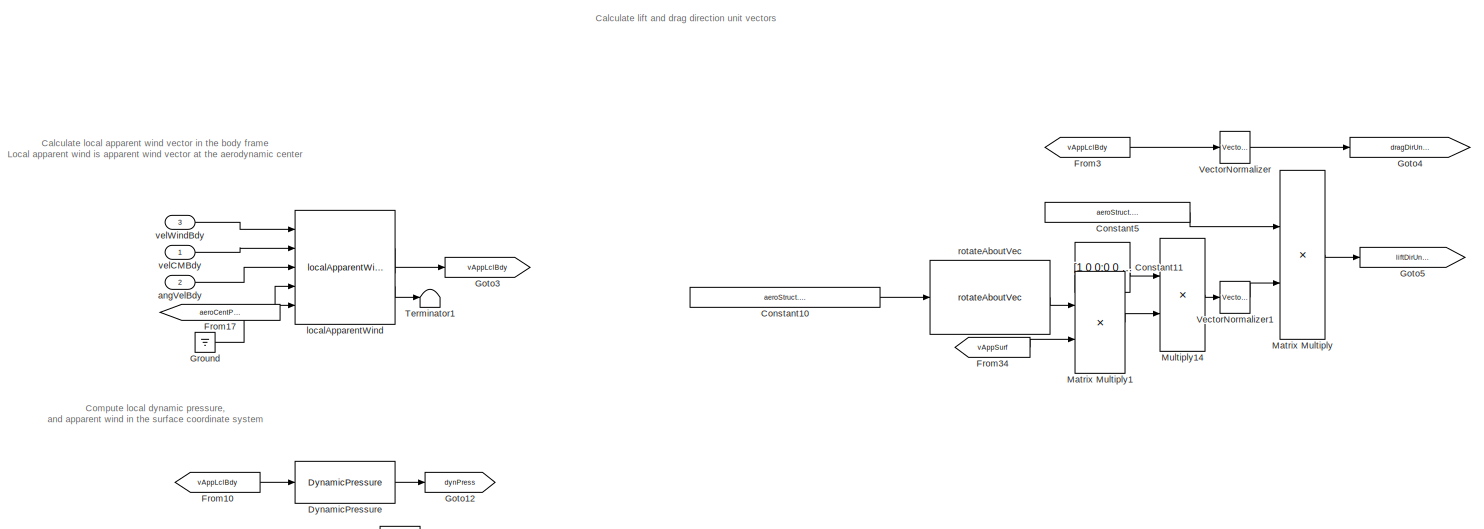
[diagram: FSCtrl/non-xcurrent/LaRController/ctrlAllocMatrix/momentComponentVector/aileronPortion1 - part 1/4, top center region]
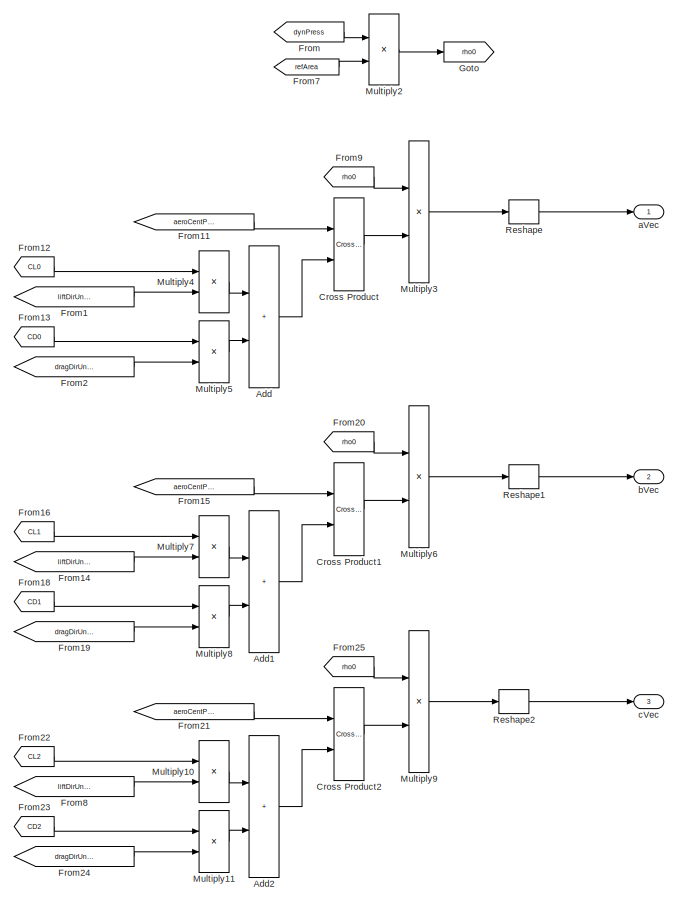
[diagram: FSCtrl/non-xcurrent/LaRController/ctrlAllocMatrix/momentComponentVector/aileronPortion1 - part 2/4, middle right region]
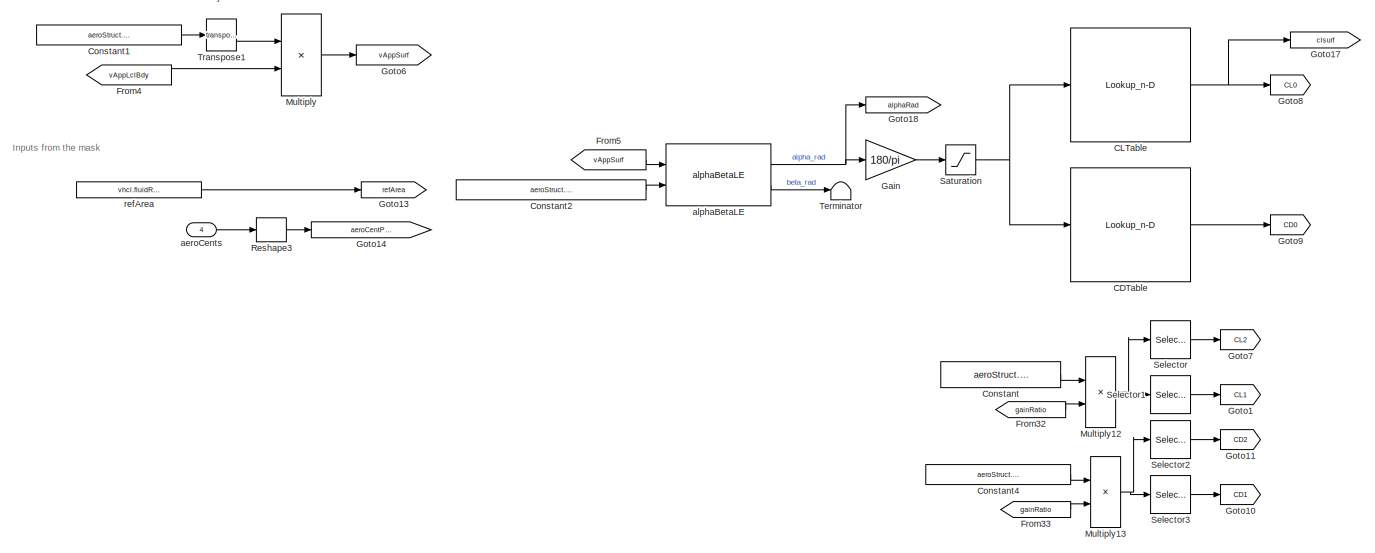
[diagram: FSCtrl/non-xcurrent/LaRController/ctrlAllocMatrix/momentComponentVector/aileronPortion1 - part 3/4, central region]
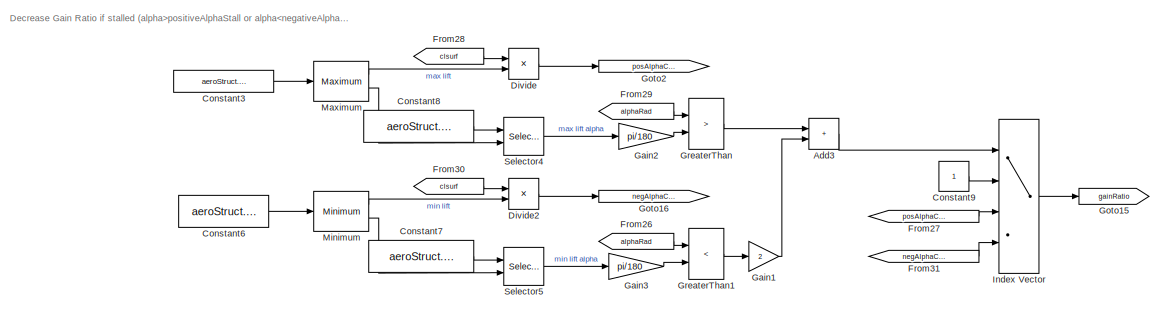
[diagram: FSCtrl/non-xcurrent/LaRController/ctrlAllocMatrix/momentComponentVector/aileronPortion1 - part 4/4, bottom right region]
BLOCK [SubSystem] FSCtrl/non-xcurrent/LaRController/ctrlAllocMatrix/momentComponentVector/aileronPortion1
  Ports = [4, 3]
  RequestExecContextInheritance = off
BLOCK [Sum] FSCtrl/non-xcurrent/LaRController/ctrlAllocMatrix/momentComponentVector/aileronPortion1/Add
  IconShape = rectangular
  Ports = [2, 1]
BLOCK [Sum] FSCtrl/non-xcurrent/LaRController/ctrlAllocMatrix/momentComponentVector/aileronPortion1/Add1
  IconShape = rectangular
  Ports = [2, 1]
BLOCK [Sum] FSCtrl/non-xcurrent/LaRController/ctrlAllocMatrix/momentComponentVector/aileronPortion1/Add2
  IconShape = rectangular
  Ports = [2, 1]
BLOCK [Sum] FSCtrl/non-xcurrent/LaRController/ctrlAllocMatrix/momentComponentVector/aileronPortion1/Add3
  IconShape = rectangular
  Ports = [2, 1]
BLOCK [Lookup_n-D] FSCtrl/non-xcurrent/LaRController/ctrlAllocMatrix/momentComponentVector/aileronPortion1/CDTable
  BreakpointsForDimension1 = aeroStruct.alpha.Value
  ExtrapMethod = Clip
  InputPortMap = u0
  InternalRulePriority = Speed
  LookupTableObject = CLTable
  NumberOfTableDimensions = 1
  Ports = [1, 1]
  RndMeth = Simplest
  Table = aeroStruct.CD.Value
  UseLastTableValue = on
BLOCK [Lookup_n-D] FSCtrl/non-xcurrent/LaRController/ctrlAllocMatrix/momentComponentVector/aileronPortion1/CLTable
  BreakpointsForDimension1 = aeroStruct.alpha.Value
  ExtrapMethod = Clip
  InputPortMap = u0
  InternalRulePriority = Speed
  LookupTableObject = CLTable
  NumberOfTableDimensions = 1
  Ports = [1, 1]
  RndMeth = Simplest
  Table = aeroStruct.CL.Value
  UseLastTableValue = on
BLOCK [Constant] FSCtrl/non-xcurrent/LaRController/ctrlAllocMatrix/momentComponentVector/aileronPortion1/Constant
  NameLocation = top
  Value = aeroStruct.gainCL.Value
BLOCK [Constant] FSCtrl/non-xcurrent/LaRController/ctrlAllocMatrix/momentComponentVector/aileronPortion1/Constant1
  Value = aeroStruct.RSurf2Bdy.Value
BLOCK [Constant] FSCtrl/non-xcurrent/LaRController/ctrlAllocMatrix/momentComponentVector/aileronPortion1/Constant10
  Value = aeroStruct.incAlphaUnitVecSurf.Value
BLOCK [Constant] FSCtrl/non-xcurrent/LaRController/ctrlAllocMatrix/momentComponentVector/aileronPortion1/Constant11
  Value = [1 0 0;0 0 0;0 0 1]
BLOCK [Constant] FSCtrl/non-xcurrent/LaRController/ctrlAllocMatrix/momentComponentVector/aileronPortion1/Constant2
  Value = aeroStruct.incAlphaUnitVecSurf.Value
BLOCK [Constant] FSCtrl/non-xcurrent/LaRController/ctrlAllocMatrix/momentComponentVector/aileronPortion1/Constant3
  Value = aeroStruct.CL.Value
BLOCK [Constant] FSCtrl/non-xcurrent/LaRController/ctrlAllocMatrix/momentComponentVector/aileronPortion1/Constant4
  NameLocation = top
  Value = aeroStruct.gainCD.Value
BLOCK [Constant] FSCtrl/non-xcurrent/LaRController/ctrlAllocMatrix/momentComponentVector/aileronPortion1/Constant5
  Value = aeroStruct.RSurf2Bdy.Value
BLOCK [Constant] FSCtrl/non-xcurrent/LaRController/ctrlAllocMatrix/momentComponentVector/aileronPortion1/Constant6
  Value = aeroStruct.CL.Value
BLOCK [Constant] FSCtrl/non-xcurrent/LaRController/ctrlAllocMatrix/momentComponentVector/aileronPortion1/Constant7
  Value = aeroStruct.alpha.Value
BLOCK [Constant] FSCtrl/non-xcurrent/LaRController/ctrlAllocMatrix/momentComponentVector/aileronPortion1/Constant8
  Value = aeroStruct.alpha.Value
BLOCK [Constant] FSCtrl/non-xcurrent/LaRController/ctrlAllocMatrix/momentComponentVector/aileronPortion1/Constant9
BLOCK [Reference] FSCtrl/non-xcurrent/LaRController/ctrlAllocMatrix/momentComponentVector/aileronPortion1/Cross Product  REF=vrlib/Utilities/Cross Product
  Ports = [2, 1]
  SourceBlock = vrlib/Utilities/Cross Product
  SourceProductBaseCode = SL
  SourceType = Cross Product
BLOCK [Reference] FSCtrl/non-xcurrent/LaRController/ctrlAllocMatrix/momentComponentVector/aileronPortion1/Cross Product1  REF=vrlib/Utilities/Cross Product
  Ports = [2, 1]
  SourceBlock = vrlib/Utilities/Cross Product
  SourceProductBaseCode = SL
  SourceType = Cross Product
BLOCK [Reference] FSCtrl/non-xcurrent/LaRController/ctrlAllocMatrix/momentComponentVector/aileronPortion1/Cross Product2  REF=vrlib/Utilities/Cross Product
  Ports = [2, 1]
  SourceBlock = vrlib/Utilities/Cross Product
  SourceProductBaseCode = SL
  SourceType = Cross Product
BLOCK [Product] FSCtrl/non-xcurrent/LaRController/ctrlAllocMatrix/momentComponentVector/aileronPortion1/Divide
  Inputs = */
  Ports = [2, 1]
BLOCK [Product] FSCtrl/non-xcurrent/LaRController/ctrlAllocMatrix/momentComponentVector/aileronPortion1/Divide2
  Inputs = */
  Ports = [2, 1]
BLOCK [Reference] FSCtrl/non-xcurrent/LaRController/ctrlAllocMatrix/momentComponentVector/aileronPortion1/DynamicPressure  REF=dynamicPressure_ul/DynamicPressure
  Ports = [1, 1]
  SourceBlock = dynamicPressure_ul/DynamicPressure
BLOCK [From] FSCtrl/non-xcurrent/LaRController/ctrlAllocMatrix/momentComponentVector/aileronPortion1/From
  GotoTag = dynPress
BLOCK [From] FSCtrl/non-xcurrent/LaRController/ctrlAllocMatrix/momentComponentVector/aileronPortion1/From1
  GotoTag = liftDirUnitVecBdy
BLOCK [From] FSCtrl/non-xcurrent/LaRController/ctrlAllocMatrix/momentComponentVector/aileronPortion1/From10
  GotoTag = vAppLclBdy
BLOCK [From] FSCtrl/non-xcurrent/LaRController/ctrlAllocMatrix/momentComponentVector/aileronPortion1/From11
  GotoTag = aeroCentPosVecBdy
BLOCK [From] FSCtrl/non-xcurrent/LaRController/ctrlAllocMatrix/momentComponentVector/aileronPortion1/From12
  GotoTag = CL0
BLOCK [From] FSCtrl/non-xcurrent/LaRController/ctrlAllocMatrix/momentComponentVector/aileronPortion1/From13
  GotoTag = CD0
BLOCK [From] FSCtrl/non-xcurrent/LaRController/ctrlAllocMatrix/momentComponentVector/aileronPortion1/From14
  GotoTag = liftDirUnitVecBdy
BLOCK [From] FSCtrl/non-xcurrent/LaRController/ctrlAllocMatrix/momentComponentVector/aileronPortion1/From15
  GotoTag = aeroCentPosVecBdy
BLOCK [From] FSCtrl/non-xcurrent/LaRController/ctrlAllocMatrix/momentComponentVector/aileronPortion1/From16
  GotoTag = CL1
BLOCK [From] FSCtrl/non-xcurrent/LaRController/ctrlAllocMatrix/momentComponentVector/aileronPortion1/From17
  GotoTag = aeroCentPosVecBdy
BLOCK [From] FSCtrl/non-xcurrent/LaRController/ctrlAllocMatrix/momentComponentVector/aileronPortion1/From18
  GotoTag = CD1
BLOCK [From] FSCtrl/non-xcurrent/LaRController/ctrlAllocMatrix/momentComponentVector/aileronPortion1/From19
  GotoTag = dragDirUnitVecBdy
BLOCK [From] FSCtrl/non-xcurrent/LaRController/ctrlAllocMatrix/momentComponentVector/aileronPortion1/From2
  GotoTag = dragDirUnitVecBdy
BLOCK [From] FSCtrl/non-xcurrent/LaRController/ctrlAllocMatrix/momentComponentVector/aileronPortion1/From20
  GotoTag = rho0
BLOCK [From] FSCtrl/non-xcurrent/LaRController/ctrlAllocMatrix/momentComponentVector/aileronPortion1/From21
  GotoTag = aeroCentPosVecBdy
BLOCK [From] FSCtrl/non-xcurrent/LaRController/ctrlAllocMatrix/momentComponentVector/aileronPortion1/From22
  GotoTag = CL2
BLOCK [From] FSCtrl/non-xcurrent/LaRController/ctrlAllocMatrix/momentComponentVector/aileronPortion1/From23
  GotoTag = CD2
BLOCK [From] FSCtrl/non-xcurrent/LaRController/ctrlAllocMatrix/momentComponentVector/aileronPortion1/From24
  GotoTag = dragDirUnitVecBdy
BLOCK [From] FSCtrl/non-xcurrent/LaRController/ctrlAllocMatrix/momentComponentVector/aileronPortion1/From25
  GotoTag = rho0
BLOCK [From] FSCtrl/non-xcurrent/LaRController/ctrlAllocMatrix/momentComponentVector/aileronPortion1/From26
  GotoTag = alphaRad
BLOCK [From] FSCtrl/non-xcurrent/LaRController/ctrlAllocMatrix/momentComponentVector/aileronPortion1/From27
  GotoTag = posAlphaCLRatio
BLOCK [From] FSCtrl/non-xcurrent/LaRController/ctrlAllocMatrix/momentComponentVector/aileronPortion1/From28
  GotoTag = clsurf
BLOCK [From] FSCtrl/non-xcurrent/LaRController/ctrlAllocMatrix/momentComponentVector/aileronPortion1/From29
  GotoTag = alphaRad
BLOCK [From] FSCtrl/non-xcurrent/LaRController/ctrlAllocMatrix/momentComponentVector/aileronPortion1/From3
  GotoTag = vAppLclBdy
BLOCK [From] FSCtrl/non-xcurrent/LaRController/ctrlAllocMatrix/momentComponentVector/aileronPortion1/From30
  GotoTag = clsurf
BLOCK [From] FSCtrl/non-xcurrent/LaRController/ctrlAllocMatrix/momentComponentVector/aileronPortion1/From31
  GotoTag = negAlphaCLRatio
BLOCK [From] FSCtrl/non-xcurrent/LaRController/ctrlAllocMatrix/momentComponentVector/aileronPortion1/From32
  GotoTag = gainRatio
BLOCK [From] FSCtrl/non-xcurrent/LaRController/ctrlAllocMatrix/momentComponentVector/aileronPortion1/From33
  GotoTag = gainRatio
BLOCK [From] FSCtrl/non-xcurrent/LaRController/ctrlAllocMatrix/momentComponentVector/aileronPortion1/From34
  GotoTag = vAppSurf
BLOCK [From] FSCtrl/non-xcurrent/LaRController/ctrlAllocMatrix/momentComponentVector/aileronPortion1/From4
  GotoTag = vAppLclBdy
BLOCK [From] FSCtrl/non-xcurrent/LaRController/ctrlAllocMatrix/momentComponentVector/aileronPortion1/From5
  GotoTag = vAppSurf
BLOCK [From] FSCtrl/non-xcurrent/LaRController/ctrlAllocMatrix/momentComponentVector/aileronPortion1/From7
  GotoTag = refArea
BLOCK [From] FSCtrl/non-xcurrent/LaRController/ctrlAllocMatrix/momentComponentVector/aileronPortion1/From8
  GotoTag = liftDirUnitVecBdy
BLOCK [From] FSCtrl/non-xcurrent/LaRController/ctrlAllocMatrix/momentComponentVector/aileronPortion1/From9
  GotoTag = rho0
BLOCK [Gain] FSCtrl/non-xcurrent/LaRController/ctrlAllocMatrix/momentComponentVector/aileronPortion1/Gain
  Gain = 180/pi
BLOCK [Gain] FSCtrl/non-xcurrent/LaRController/ctrlAllocMatrix/momentComponentVector/aileronPortion1/Gain1
  Gain = 2
BLOCK [Gain] FSCtrl/non-xcurrent/LaRController/ctrlAllocMatrix/momentComponentVector/aileronPortion1/Gain2
  Gain = pi/180
BLOCK [Gain] FSCtrl/non-xcurrent/LaRController/ctrlAllocMatrix/momentComponentVector/aileronPortion1/Gain3
  Gain = pi/180
BLOCK [Goto] FSCtrl/non-xcurrent/LaRController/ctrlAllocMatrix/momentComponentVector/aileronPortion1/Goto
  GotoTag = rho0
BLOCK [Goto] FSCtrl/non-xcurrent/LaRController/ctrlAllocMatrix/momentComponentVector/aileronPortion1/Goto1
  GotoTag = CL1
BLOCK [Goto] FSCtrl/non-xcurrent/LaRController/ctrlAllocMatrix/momentComponentVector/aileronPortion1/Goto10
  GotoTag = CD1
BLOCK [Goto] FSCtrl/non-xcurrent/LaRController/ctrlAllocMatrix/momentComponentVector/aileronPortion1/Goto11
  GotoTag = CD2
BLOCK [Goto] FSCtrl/non-xcurrent/LaRController/ctrlAllocMatrix/momentComponentVector/aileronPortion1/Goto12
  GotoTag = dynPress
BLOCK [Goto] FSCtrl/non-xcurrent/LaRController/ctrlAllocMatrix/momentComponentVector/aileronPortion1/Goto13
  GotoTag = refArea
BLOCK [Goto] FSCtrl/non-xcurrent/LaRController/ctrlAllocMatrix/momentComponentVector/aileronPortion1/Goto14
  GotoTag = aeroCentPosVecBdy
BLOCK [Goto] FSCtrl/non-xcurrent/LaRController/ctrlAllocMatrix/momentComponentVector/aileronPortion1/Goto15
  GotoTag = gainRatio
BLOCK [Goto] FSCtrl/non-xcurrent/LaRController/ctrlAllocMatrix/momentComponentVector/aileronPortion1/Goto16
  GotoTag = negAlphaCLRatio
BLOCK [Goto] FSCtrl/non-xcurrent/LaRController/ctrlAllocMatrix/momentComponentVector/aileronPortion1/Goto17
  GotoTag = clsurf
BLOCK [Goto] FSCtrl/non-xcurrent/LaRController/ctrlAllocMatrix/momentComponentVector/aileronPortion1/Goto18
  GotoTag = alphaRad
BLOCK [Goto] FSCtrl/non-xcurrent/LaRController/ctrlAllocMatrix/momentComponentVector/aileronPortion1/Goto2
  GotoTag = posAlphaCLRatio
BLOCK [Goto] FSCtrl/non-xcurrent/LaRController/ctrlAllocMatrix/momentComponentVector/aileronPortion1/Goto3
  GotoTag = vAppLclBdy
BLOCK [Goto] FSCtrl/non-xcurrent/LaRController/ctrlAllocMatrix/momentComponentVector/aileronPortion1/Goto4
  GotoTag = dragDirUnitVecBdy
BLOCK [Goto] FSCtrl/non-xcurrent/LaRController/ctrlAllocMatrix/momentComponentVector/aileronPortion1/Goto5
  GotoTag = liftDirUnitVecBdy
BLOCK [Goto] FSCtrl/non-xcurrent/LaRController/ctrlAllocMatrix/momentComponentVector/aileronPortion1/Goto6
  GotoTag = vAppSurf
BLOCK [Goto] FSCtrl/non-xcurrent/LaRController/ctrlAllocMatrix/momentComponentVector/aileronPortion1/Goto7
  GotoTag = CL2
BLOCK [Goto] FSCtrl/non-xcurrent/LaRController/ctrlAllocMatrix/momentComponentVector/aileronPortion1/Goto8
  GotoTag = CL0
BLOCK [Goto] FSCtrl/non-xcurrent/LaRController/ctrlAllocMatrix/momentComponentVector/aileronPortion1/Goto9
  GotoTag = CD0
BLOCK [RelationalOperator] FSCtrl/non-xcurrent/LaRController/ctrlAllocMatrix/momentComponentVector/aileronPortion1/GreaterThan
  InputSameDT = off
  Operator = >
  OutDataTypeStr = boolean
  Ports = [2, 1]
  RndMeth = Simplest
BLOCK [RelationalOperator] FSCtrl/non-xcurrent/LaRController/ctrlAllocMatrix/momentComponentVector/aileronPortion1/GreaterThan1
  InputSameDT = off
  Operator = <
  OutDataTypeStr = boolean
  Ports = [2, 1]
  RndMeth = Simplest
BLOCK [Ground] FSCtrl/non-xcurrent/LaRController/ctrlAllocMatrix/momentComponentVector/aileronPortion1/Ground
BLOCK [MultiPortSwitch] FSCtrl/non-xcurrent/LaRController/ctrlAllocMatrix/momentComponentVector/aileronPortion1/Index Vector
  DataPortOrder = Zero-based contiguous
  InputSameDT = off
  Ports = [4, 1]
  SaturateOnIntegerOverflow = off
  zeroidx = on
BLOCK [Product] FSCtrl/non-xcurrent/LaRController/ctrlAllocMatrix/momentComponentVector/aileronPortion1/Matrix Multiply
  Multiplication = Matrix(*)
  Ports = [2, 1]
BLOCK [Product] FSCtrl/non-xcurrent/LaRController/ctrlAllocMatrix/momentComponentVector/aileronPortion1/Matrix Multiply1
  Multiplication = Matrix(*)
  Ports = [2, 1]
BLOCK [Reference] FSCtrl/non-xcurrent/LaRController/ctrlAllocMatrix/momentComponentVector/aileronPortion1/Maximum  REF=dspstat3/Maximum
  Ports = [1, 2]
  SourceBlock = dspstat3/Maximum
  SourceProductBaseCode = DS
  SourceType = Maximum
  UserDataPersistent = on
BLOCK [Reference] FSCtrl/non-xcurrent/LaRController/ctrlAllocMatrix/momentComponentVector/aileronPortion1/Minimum  REF=dspstat3/Minimum
  Ports = [1, 2]
  SourceBlock = dspstat3/Minimum
  SourceProductBaseCode = DS
  SourceType = Minimum
  UserDataPersistent = on
BLOCK [Product] FSCtrl/non-xcurrent/LaRController/ctrlAllocMatrix/momentComponentVector/aileronPortion1/Multiply
  Multiplication = Matrix(*)
  Ports = [2, 1]
BLOCK [Product] FSCtrl/non-xcurrent/LaRController/ctrlAllocMatrix/momentComponentVector/aileronPortion1/Multiply10
  Ports = [2, 1]
BLOCK [Product] FSCtrl/non-xcurrent/LaRController/ctrlAllocMatrix/momentComponentVector/aileronPortion1/Multiply11
  Ports = [2, 1]
BLOCK [Product] FSCtrl/non-xcurrent/LaRController/ctrlAllocMatrix/momentComponentVector/aileronPortion1/Multiply12
  Ports = [2, 1]
BLOCK [Product] FSCtrl/non-xcurrent/LaRController/ctrlAllocMatrix/momentComponentVector/aileronPortion1/Multiply13
  Ports = [2, 1]
BLOCK [Product] FSCtrl/non-xcurrent/LaRController/ctrlAllocMatrix/momentComponentVector/aileronPortion1/Multiply14
  Multiplication = Matrix(*)
  Ports = [2, 1]
BLOCK [Product] FSCtrl/non-xcurrent/LaRController/ctrlAllocMatrix/momentComponentVector/aileronPortion1/Multiply2
  Ports = [2, 1]
BLOCK [Product] FSCtrl/non-xcurrent/LaRController/ctrlAllocMatrix/momentComponentVector/aileronPortion1/Multiply3
  Ports = [2, 1]
BLOCK [Product] FSCtrl/non-xcurrent/LaRController/ctrlAllocMatrix/momentComponentVector/aileronPortion1/Multiply4
  Ports = [2, 1]
BLOCK [Product] FSCtrl/non-xcurrent/LaRController/ctrlAllocMatrix/momentComponentVector/aileronPortion1/Multiply5
  Ports = [2, 1]
BLOCK [Product] FSCtrl/non-xcurrent/LaRController/ctrlAllocMatrix/momentComponentVector/aileronPortion1/Multiply6
  Ports = [2, 1]
BLOCK [Product] FSCtrl/non-xcurrent/LaRController/ctrlAllocMatrix/momentComponentVector/aileronPortion1/Multiply7
  Ports = [2, 1]
BLOCK [Product] FSCtrl/non-xcurrent/LaRController/ctrlAllocMatrix/momentComponentVector/aileronPortion1/Multiply8
  Ports = [2, 1]
BLOCK [Product] FSCtrl/non-xcurrent/LaRController/ctrlAllocMatrix/momentComponentVector/aileronPortion1/Multiply9
  Ports = [2, 1]
BLOCK [Reshape] FSCtrl/non-xcurrent/LaRController/ctrlAllocMatrix/momentComponentVector/aileronPortion1/Reshape
  OutputDimensionality = Column vector (2-D)
  Ports = [1, 1]
BLOCK [Reshape] FSCtrl/non-xcurrent/LaRController/ctrlAllocMatrix/momentComponentVector/aileronPortion1/Reshape1
  OutputDimensionality = Column vector (2-D)
  Ports = [1, 1]
BLOCK [Reshape] FSCtrl/non-xcurrent/LaRController/ctrlAllocMatrix/momentComponentVector/aileronPortion1/Reshape2
  OutputDimensionality = Column vector (2-D)
  Ports = [1, 1]
BLOCK [Reshape] FSCtrl/non-xcurrent/LaRController/ctrlAllocMatrix/momentComponentVector/aileronPortion1/Reshape3
  OutputDimensionality = Column vector (2-D)
  Ports = [1, 1]
BLOCK [Saturate] FSCtrl/non-xcurrent/LaRController/ctrlAllocMatrix/momentComponentVector/aileronPortion1/Saturation
  LowerLimit = -90
  UpperLimit = 90
BLOCK [Selector] FSCtrl/non-xcurrent/LaRController/ctrlAllocMatrix/momentComponentVector/aileronPortion1/Selector
  IndexOptions = Index vector (dialog)
  Indices = 1
  InputPortWidth = 3
  OutputSizes = 1
  Ports = [1, 1]
BLOCK [Selector] FSCtrl/non-xcurrent/LaRController/ctrlAllocMatrix/momentComponentVector/aileronPortion1/Selector1
  IndexOptions = Index vector (dialog)
  Indices = 2
  InputPortWidth = 3
  OutputSizes = 1
  Ports = [1, 1]
BLOCK [Selector] FSCtrl/non-xcurrent/LaRController/ctrlAllocMatrix/momentComponentVector/aileronPortion1/Selector2
  IndexOptions = Index vector (dialog)
  Indices = 1
  InputPortWidth = 3
  OutputSizes = 1
  Ports = [1, 1]
BLOCK [Selector] FSCtrl/non-xcurrent/LaRController/ctrlAllocMatrix/momentComponentVector/aileronPortion1/Selector3
  IndexOptions = Index vector (dialog)
  Indices = 2
  InputPortWidth = 3
  OutputSizes = 1
  Ports = [1, 1]
BLOCK [Selector] FSCtrl/non-xcurrent/LaRController/ctrlAllocMatrix/momentComponentVector/aileronPortion1/Selector4
  IndexOptions = Index vector (port)
  Indices = [1 3]
  InputPortWidth = length(vhcl.portWing.alpha.Value)
  OutputSizes = 1
  Ports = [2, 1]
BLOCK [Selector] FSCtrl/non-xcurrent/LaRController/ctrlAllocMatrix/momentComponentVector/aileronPortion1/Selector5
  IndexOptions = Index vector (port)
  Indices = [1 3]
  InputPortWidth = length(vhcl.portWing.alpha.Value)
  OutputSizes = 1
  Ports = [2, 1]
BLOCK [Terminator] FSCtrl/non-xcurrent/LaRController/ctrlAllocMatrix/momentComponentVector/aileronPortion1/Terminator
BLOCK [Terminator] FSCtrl/non-xcurrent/LaRController/ctrlAllocMatrix/momentComponentVector/aileronPortion1/Terminator1
BLOCK [Math] FSCtrl/non-xcurrent/LaRController/ctrlAllocMatrix/momentComponentVector/aileronPortion1/Transpose1
  Operator = transpose
  Ports = [1, 1]
  SignedPower = on
BLOCK [Reference] FSCtrl/non-xcurrent/LaRController/ctrlAllocMatrix/momentComponentVector/aileronPortion1/VectorNormalizer   REF=vectorNormalizer_ul/VectorNormalizer

  Ports = [1, 1]
  SourceBlock = vectorNormalizer_ul/VectorNormalizer
  SourceType = SubSystem
BLOCK [Reference] FSCtrl/non-xcurrent/LaRController/ctrlAllocMatrix/momentComponentVector/aileronPortion1/VectorNormalizer1  REF=vectorNormalizer_ul/VectorNormalizer

  Ports = [1, 1]
  SourceBlock = vectorNormalizer_ul/VectorNormalizer
  SourceType = SubSystem
BLOCK [Outport] FSCtrl/non-xcurrent/LaRController/ctrlAllocMatrix/momentComponentVector/aileronPortion1/aVec
  PortDimensions = [3 1]
  VectorParamsAs1DForOutWhenUnconnected = off
BLOCK [Inport] FSCtrl/non-xcurrent/LaRController/ctrlAllocMatrix/momentComponentVector/aileronPortion1/aeroCents
  Port = 4
BLOCK [Reference] FSCtrl/non-xcurrent/LaRController/ctrlAllocMatrix/momentComponentVector/aileronPortion1/alphaBetaLE  REF=alphaBetaLE_ul/alphaBetaLE
  Ports = [2, 2]
  SourceBlock = alphaBetaLE_ul/alphaBetaLE
  SourceType = SubSystem
BLOCK [Inport] FSCtrl/non-xcurrent/LaRController/ctrlAllocMatrix/momentComponentVector/aileronPortion1/angVelBdy
  Port = 2
BLOCK [Outport] FSCtrl/non-xcurrent/LaRController/ctrlAllocMatrix/momentComponentVector/aileronPortion1/bVec
  Port = 2
  PortDimensions = [3 1]
  VectorParamsAs1DForOutWhenUnconnected = off
BLOCK [Outport] FSCtrl/non-xcurrent/LaRController/ctrlAllocMatrix/momentComponentVector/aileronPortion1/cVec
  Port = 3
  PortDimensions = [3 1]
  VectorParamsAs1DForOutWhenUnconnected = off
BLOCK [Reference] FSCtrl/non-xcurrent/LaRController/ctrlAllocMatrix/momentComponentVector/aileronPortion1/localApparentWind  REF=localApparentWind_ul/localApparentWind
  Ports = [5, 2]
  SourceBlock = localApparentWind_ul/localApparentWind
  SourceType = SubSystem
BLOCK [Constant] FSCtrl/non-xcurrent/LaRController/ctrlAllocMatrix/momentComponentVector/aileronPortion1/refArea
  Value = vhcl.fluidRefArea.Value
BLOCK [Reference] FSCtrl/non-xcurrent/LaRController/ctrlAllocMatrix/momentComponentVector/aileronPortion1/rotateAboutVec  REF=rotateAboutVec/rotateAboutVec
  Ports = [1, 1]
  SourceBlock = rotateAboutVec/rotateAboutVec
BLOCK [Inport] FSCtrl/non-xcurrent/LaRController/ctrlAllocMatrix/momentComponentVector/aileronPortion1/velCMBdy
BLOCK [Inport] FSCtrl/non-xcurrent/LaRController/ctrlAllocMatrix/momentComponentVector/aileronPortion1/velWindBdy
  Port = 3
BLOCK [Reference] FSCtrl/non-xcurrent/LaRController/ctrlAllocMatrix/momentComponentVector/aileronPortion2  REF=ctrlAllocMatrix_cl/ctrlAllocMatrix/momentComponentVector/aileronPortion1
  Ports = [4, 3]
  SourceBlock = ctrlAllocMatrix_cl/ctrlAllocMatrix/momentComponentVector/aileronPortion1
BLOCK [Inport] FSCtrl/non-xcurrent/LaRController/ctrlAllocMatrix/momentComponentVector/angVelBdy
  Port = 2
BLOCK [Outport] FSCtrl/non-xcurrent/LaRController/ctrlAllocMatrix/momentComponentVector/bias
BLOCK [Outport] FSCtrl/non-xcurrent/LaRController/ctrlAllocMatrix/momentComponentVector/linearComponent
  Port = 2
BLOCK [Reference] FSCtrl/non-xcurrent/LaRController/ctrlAllocMatrix/momentComponentVector/rudderPortion  REF=ctrlAllocMatrix_cl/ctrlAllocMatrix/momentComponentVector/aileronPortion1
  Ports = [4, 3]
  SourceBlock = ctrlAllocMatrix_cl/ctrlAllocMatrix/momentComponentVector/aileronPortion1
BLOCK [Inport] FSCtrl/non-xcurrent/LaRController/ctrlAllocMatrix/momentComponentVector/velCMBdy
BLOCK [Inport] FSCtrl/non-xcurrent/LaRController/ctrlAllocMatrix/momentComponentVector/velWindBdy
  Port = 3
BLOCK [Inport] FSCtrl/non-xcurrent/LaRController/ctrlAllocMatrix/velCMGnd
BLOCK [Inport] FSCtrl/non-xcurrent/LaRController/ctrlAllocMatrix/velWindGnd
  Port = 3
BLOCK [Outport] FSCtrl/non-xcurrent/LaRController/ctrlBus
  OutDataTypeStr = Bus: fltCtrlBus
  VectorParamsAs1DForOutWhenUnconnected = off
BLOCK [SubSystem] FSCtrl/non-xcurrent/LaRController/desiredMoment
  Ports = [5, 1]
  RequestExecContextInheritance = off
BLOCK [Sum] FSCtrl/non-xcurrent/LaRController/desiredMoment/Add
  IconShape = rectangular
  Inputs = +-
  Ports = [2, 1]
BLOCK [Sum] FSCtrl/non-xcurrent/LaRController/desiredMoment/Add2
  IconShape = rectangular
  Inputs = +-
  Ports = [2, 1]
BLOCK [Constant] FSCtrl/non-xcurrent/LaRController/desiredMoment/Constant1
  Value = 0
BLOCK [Demux] FSCtrl/non-xcurrent/LaRController/desiredMoment/Demux
  Outputs = 3
  Ports = [1, 3]
BLOCK [SubSystem] FSCtrl/non-xcurrent/LaRController/desiredMoment/EulerAngle2RotMat1
  AncestorBlock = eulAng2RotMat_ul/EulerAngle2RotMat
  Ports = [3, 2]
  RequestExecContextInheritance = off
BLOCK [Constant] FSCtrl/non-xcurrent/LaRController/desiredMoment/EulerAngle2RotMat1/Constant
BLOCK [Constant] FSCtrl/non-xcurrent/LaRController/desiredMoment/EulerAngle2RotMat1/Constant1
  Value = 0
BLOCK [Constant] FSCtrl/non-xcurrent/LaRController/desiredMoment/EulerAngle2RotMat1/Constant10
  Value = 0
BLOCK [Constant] FSCtrl/non-xcurrent/LaRController/desiredMoment/EulerAngle2RotMat1/Constant11
  Value = 0
BLOCK [Constant] FSCtrl/non-xcurrent/LaRController/desiredMoment/EulerAngle2RotMat1/Constant12
  Value = 0
BLOCK [Constant] FSCtrl/non-xcurrent/LaRController/desiredMoment/EulerAngle2RotMat1/Constant13
  Value = 0
BLOCK [Constant] FSCtrl/non-xcurrent/LaRController/desiredMoment/EulerAngle2RotMat1/Constant14
  Value = 0
BLOCK [Constant] FSCtrl/non-xcurrent/LaRController/desiredMoment/EulerAngle2RotMat1/Constant2
  Value = 0
BLOCK [Constant] FSCtrl/non-xcurrent/LaRController/desiredMoment/EulerAngle2RotMat1/Constant3
  Value = 0
BLOCK [Constant] FSCtrl/non-xcurrent/LaRController/desiredMoment/EulerAngle2RotMat1/Constant4
BLOCK [Constant] FSCtrl/non-xcurrent/LaRController/desiredMoment/EulerAngle2RotMat1/Constant5
BLOCK [Constant] FSCtrl/non-xcurrent/LaRController/desiredMoment/EulerAngle2RotMat1/Constant6
  Value = 0
BLOCK [Constant] FSCtrl/non-xcurrent/LaRController/desiredMoment/EulerAngle2RotMat1/Constant7
  Value = 0
BLOCK [Constant] FSCtrl/non-xcurrent/LaRController/desiredMoment/EulerAngle2RotMat1/Constant8
  Value = 0
BLOCK [Constant] FSCtrl/non-xcurrent/LaRController/desiredMoment/EulerAngle2RotMat1/Constant9
  Value = 0
BLOCK [Trigonometry] FSCtrl/non-xcurrent/LaRController/desiredMoment/EulerAngle2RotMat1/Cos
  Operator = cos
  Ports = [1, 1]
BLOCK [Trigonometry] FSCtrl/non-xcurrent/LaRController/desiredMoment/EulerAngle2RotMat1/Cos1
  Ports = [1, 1]
BLOCK [Trigonometry] FSCtrl/non-xcurrent/LaRController/desiredMoment/EulerAngle2RotMat1/Cos2
  Operator = cos
  Ports = [1, 1]
BLOCK [Trigonometry] FSCtrl/non-xcurrent/LaRController/desiredMoment/EulerAngle2RotMat1/Cos3
  Ports = [1, 1]
BLOCK [Trigonometry] FSCtrl/non-xcurrent/LaRController/desiredMoment/EulerAngle2RotMat1/Cos4
  Operator = cos
  Ports = [1, 1]
BLOCK [Trigonometry] FSCtrl/non-xcurrent/LaRController/desiredMoment/EulerAngle2RotMat1/Cos5
  Ports = [1, 1]
BLOCK [Reference] FSCtrl/non-xcurrent/LaRController/desiredMoment/EulerAngle2RotMat1/Create 3x3 Matrix  REF=sharedutil/Create 3x3 Matrix
  Ports = [9, 1]
  SourceBlock = sharedutil/Create 3x3 Matrix
  SourceProductBaseCode = AE,PW,DR,MT,VE
  SourceType = Create 3x3 Matrix
BLOCK [Reference] FSCtrl/non-xcurrent/LaRController/desiredMoment/EulerAngle2RotMat1/Create 3x3 Matrix1  REF=sharedutil/Create 3x3 Matrix
  Ports = [9, 1]
  SourceBlock = sharedutil/Create 3x3 Matrix
  SourceProductBaseCode = AE,PW,DR,MT,VE
  SourceType = Create 3x3 Matrix
BLOCK [Reference] FSCtrl/non-xcurrent/LaRController/desiredMoment/EulerAngle2RotMat1/Create 3x3 Matrix2  REF=sharedutil/Create 3x3 Matrix
  Ports = [9, 1]
  SourceBlock = sharedutil/Create 3x3 Matrix
  SourceProductBaseCode = AE,PW,DR,MT,VE
  SourceType = Create 3x3 Matrix
BLOCK [From] FSCtrl/non-xcurrent/LaRController/desiredMoment/EulerAngle2RotMat1/From
  GotoTag = cr
BLOCK [From] FSCtrl/non-xcurrent/LaRController/desiredMoment/EulerAngle2RotMat1/From1
  GotoTag = cr
BLOCK [From] FSCtrl/non-xcurrent/LaRController/desiredMoment/EulerAngle2RotMat1/From10
  GotoTag = cy
BLOCK [From] FSCtrl/non-xcurrent/LaRController/desiredMoment/EulerAngle2RotMat1/From11
  GotoTag = sy
BLOCK [From] FSCtrl/non-xcurrent/LaRController/desiredMoment/EulerAngle2RotMat1/From12
  GotoTag = rollMatrix
BLOCK [From] FSCtrl/non-xcurrent/LaRController/desiredMoment/EulerAngle2RotMat1/From13
  GotoTag = pitchMatrix
BLOCK [From] FSCtrl/non-xcurrent/LaRController/desiredMoment/EulerAngle2RotMat1/From14
  GotoTag = yawMatrix
BLOCK [From] FSCtrl/non-xcurrent/LaRController/desiredMoment/EulerAngle2RotMat1/From2
  GotoTag = sr
BLOCK [From] FSCtrl/non-xcurrent/LaRController/desiredMoment/EulerAngle2RotMat1/From3
  GotoTag = sr
BLOCK [From] FSCtrl/non-xcurrent/LaRController/desiredMoment/EulerAngle2RotMat1/From4
  GotoTag = cp
BLOCK [From] FSCtrl/non-xcurrent/LaRController/desiredMoment/EulerAngle2RotMat1/From5
  GotoTag = sp
BLOCK [From] FSCtrl/non-xcurrent/LaRController/desiredMoment/EulerAngle2RotMat1/From6
  GotoTag = cp
BLOCK [From] FSCtrl/non-xcurrent/LaRController/desiredMoment/EulerAngle2RotMat1/From7
  GotoTag = sp
BLOCK [From] FSCtrl/non-xcurrent/LaRController/desiredMoment/EulerAngle2RotMat1/From8
  GotoTag = cy
BLOCK [From] FSCtrl/non-xcurrent/LaRController/desiredMoment/EulerAngle2RotMat1/From9
  GotoTag = sy
BLOCK [Gain] FSCtrl/non-xcurrent/LaRController/desiredMoment/EulerAngle2RotMat1/Gain
  Gain = -1
BLOCK [Gain] FSCtrl/non-xcurrent/LaRController/desiredMoment/EulerAngle2RotMat1/Gain1
  Gain = -1
BLOCK [Gain] FSCtrl/non-xcurrent/LaRController/desiredMoment/EulerAngle2RotMat1/Gain2
  Gain = -1
BLOCK [Goto] FSCtrl/non-xcurrent/LaRController/desiredMoment/EulerAngle2RotMat1/Goto
  GotoTag = cr
BLOCK [Goto] FSCtrl/non-xcurrent/LaRController/desiredMoment/EulerAngle2RotMat1/Goto1
  GotoTag = sr
BLOCK [Goto] FSCtrl/non-xcurrent/LaRController/desiredMoment/EulerAngle2RotMat1/Goto2
  GotoTag = cp
BLOCK [Goto] FSCtrl/non-xcurrent/LaRController/desiredMoment/EulerAngle2RotMat1/Goto3
  GotoTag = sp
BLOCK [Goto] FSCtrl/non-xcurrent/LaRController/desiredMoment/EulerAngle2RotMat1/Goto4
  GotoTag = cy
BLOCK [Goto] FSCtrl/non-xcurrent/LaRController/desiredMoment/EulerAngle2RotMat1/Goto5
  GotoTag = sy
BLOCK [Goto] FSCtrl/non-xcurrent/LaRController/desiredMoment/EulerAngle2RotMat1/Goto6
  GotoTag = rollMatrix
BLOCK [Goto] FSCtrl/non-xcurrent/LaRController/desiredMoment/EulerAngle2RotMat1/Goto7
  GotoTag = pitchMatrix
BLOCK [Goto] FSCtrl/non-xcurrent/LaRController/desiredMoment/EulerAngle2RotMat1/Goto8
  GotoTag = yawMatrix
BLOCK [Product] FSCtrl/non-xcurrent/LaRController/desiredMoment/EulerAngle2RotMat1/Multiply
  Inputs = 3
  Multiplication = Matrix(*)
  Ports = [3, 1]
BLOCK [Math] FSCtrl/non-xcurrent/LaRController/desiredMoment/EulerAngle2RotMat1/Transpose
  Operator = transpose
  Ports = [1, 1]
  SignedPower = on
BLOCK [Outport] FSCtrl/non-xcurrent/LaRController/desiredMoment/EulerAngle2RotMat1/bdy2Inert
  Port = 2
  VectorParamsAs1DForOutWhenUnconnected = off
BLOCK [Outport] FSCtrl/non-xcurrent/LaRController/desiredMoment/EulerAngle2RotMat1/inert2Bdy
  VectorParamsAs1DForOutWhenUnconnected = off
BLOCK [Inport] FSCtrl/non-xcurrent/LaRController/desiredMoment/EulerAngle2RotMat1/pitch
  Port = 2
BLOCK [Inport] FSCtrl/non-xcurrent/LaRController/desiredMoment/EulerAngle2RotMat1/roll
BLOCK [Inport] FSCtrl/non-xcurrent/LaRController/desiredMoment/EulerAngle2RotMat1/yaw
  Port = 3
BLOCK [From] FSCtrl/non-xcurrent/LaRController/desiredMoment/From
  GotoTag = body2gr
BLOCK [From] FSCtrl/non-xcurrent/LaRController/desiredMoment/From1
  GotoTag = eulAngles
BLOCK [From] FSCtrl/non-xcurrent/LaRController/desiredMoment/From15
  GotoTag = posVecGnd
BLOCK [From] FSCtrl/non-xcurrent/LaRController/desiredMoment/From16
  GotoTag = gndStnPosVecGnd
BLOCK [From] FSCtrl/non-xcurrent/LaRController/desiredMoment/From17
  GotoTag = flowVecGnd
BLOCK [From] FSCtrl/non-xcurrent/LaRController/desiredMoment/From18
  GotoTag = velVecGnd
BLOCK [From] FSCtrl/non-xcurrent/LaRController/desiredMoment/From2
  GotoTag = tan2Gr
BLOCK [From] FSCtrl/non-xcurrent/LaRController/desiredMoment/From3
  GotoTag = eulAngles
BLOCK [From] FSCtrl/non-xcurrent/LaRController/desiredMoment/From4
  GotoTag = rollMomDes
BLOCK [From] FSCtrl/non-xcurrent/LaRController/desiredMoment/From5
  GotoTag = yawMomDes
BLOCK [From] FSCtrl/non-xcurrent/LaRController/desiredMoment/From6
  GotoTag = gr2body
BLOCK [From] FSCtrl/non-xcurrent/LaRController/desiredMoment/From7
  GotoTag = aeroSideSlipAngle
BLOCK [Gain] FSCtrl/non-xcurrent/LaRController/desiredMoment/Gain2
  Gain = LaRCtrl.yawMoment.kp.Value
BLOCK [Gain] FSCtrl/non-xcurrent/LaRController/desiredMoment/Gain3
  Gain = -1
BLOCK [Goto] FSCtrl/non-xcurrent/LaRController/desiredMoment/Goto
  GotoTag = posVecGnd
BLOCK [Goto] FSCtrl/non-xcurrent/LaRController/desiredMoment/Goto1
  GotoTag = flowVecGnd
BLOCK [Goto] FSCtrl/non-xcurrent/LaRController/desiredMoment/Goto12
  GotoTag = rollMomDes
BLOCK [Goto] FSCtrl/non-xcurrent/LaRController/desiredMoment/Goto13
  GotoTag = yawMomDes
BLOCK [Goto] FSCtrl/non-xcurrent/LaRController/desiredMoment/Goto15
  GotoTag = aeroSideSlipAngle
BLOCK [Goto] FSCtrl/non-xcurrent/LaRController/desiredMoment/Goto2
  GotoTag = velVecGnd
BLOCK [Goto] FSCtrl/non-xcurrent/LaRController/desiredMoment/Goto3
  GotoTag = gndStnPosVecGnd
BLOCK [Goto] FSCtrl/non-xcurrent/LaRController/desiredMoment/Goto4
  GotoTag = eulAngles
BLOCK [Goto] FSCtrl/non-xcurrent/LaRController/desiredMoment/Goto5
  GotoTag = tan2Gr
BLOCK [Goto] FSCtrl/non-xcurrent/LaRController/desiredMoment/Goto6
  GotoTag = gr2body
BLOCK [Goto] FSCtrl/non-xcurrent/LaRController/desiredMoment/Goto7
  GotoTag = body2gr
BLOCK [Ground] FSCtrl/non-xcurrent/LaRController/desiredMoment/Ground
BLOCK [Product] FSCtrl/non-xcurrent/LaRController/desiredMoment/Matrix Multiply
  Multiplication = Matrix(*)
  Ports = [2, 1]
BLOCK [Sum] FSCtrl/non-xcurrent/LaRController/desiredMoment/Minus1
  IconShape = rectangular
  Inputs = +-
  Ports = [2, 1]
BLOCK [Mux] FSCtrl/non-xcurrent/LaRController/desiredMoment/Mux
  DisplayOption = bar
  Inputs = 2
  Ports = [2, 1]
BLOCK [Selector] FSCtrl/non-xcurrent/LaRController/desiredMoment/Selector
  IndexOptions = Index vector (dialog)
  Indices = 1
  InputPortWidth = 3
  OutputSizes = 1
  Ports = [1, 1]
BLOCK [SubSystem] FSCtrl/non-xcurrent/LaRController/desiredMoment/TangentRollCalculation
  Ports = [2, 1]
  RequestExecContextInheritance = off
BLOCK [Constant] FSCtrl/non-xcurrent/LaRController/desiredMoment/TangentRollCalculation/Constant1
  Value = pi/2
BLOCK [Constant] FSCtrl/non-xcurrent/LaRController/desiredMoment/TangentRollCalculation/Constant2
  Value = pi/2
BLOCK [Constant] FSCtrl/non-xcurrent/LaRController/desiredMoment/TangentRollCalculation/Constant3
  Value = [0 1 0]'
BLOCK [Constant] FSCtrl/non-xcurrent/LaRController/desiredMoment/TangentRollCalculation/Constant4
  Value = [0 0 1]'
BLOCK [Constant] FSCtrl/non-xcurrent/LaRController/desiredMoment/TangentRollCalculation/Constant5
  Value = [1 0 0]'
BLOCK [Constant] FSCtrl/non-xcurrent/LaRController/desiredMoment/TangentRollCalculation/Constant6
  Value = [0 0 1]'
BLOCK [Gain] FSCtrl/non-xcurrent/LaRController/desiredMoment/TangentRollCalculation/Gain
  Gain = -1
BLOCK [Product] FSCtrl/non-xcurrent/LaRController/desiredMoment/TangentRollCalculation/Matrix Multiply
  Multiplication = Matrix(*)
  Ports = [2, 1]
BLOCK [Product] FSCtrl/non-xcurrent/LaRController/desiredMoment/TangentRollCalculation/Matrix Multiply1
  Multiplication = Matrix(*)
  Ports = [2, 1]
BLOCK [Product] FSCtrl/non-xcurrent/LaRController/desiredMoment/TangentRollCalculation/Matrix Multiply2
  Multiplication = Matrix(*)
  Ports = [2, 1]
BLOCK [Product] FSCtrl/non-xcurrent/LaRController/desiredMoment/TangentRollCalculation/Matrix Multiply3
  Multiplication = Matrix(*)
  Ports = [2, 1]
BLOCK [Sum] FSCtrl/non-xcurrent/LaRController/desiredMoment/TangentRollCalculation/Subtract
  IconShape = rectangular
  Inputs = +-
  Ports = [2, 1]
BLOCK [Sum] FSCtrl/non-xcurrent/LaRController/desiredMoment/TangentRollCalculation/Subtract1
  IconShape = rectangular
  Inputs = +-
  Ports = [2, 1]
BLOCK [Terminator] FSCtrl/non-xcurrent/LaRController/desiredMoment/TangentRollCalculation/Terminator
BLOCK [SubSystem] FSCtrl/non-xcurrent/LaRController/desiredMoment/TangentRollCalculation/angleBtw2DVecs
  AncestorBlock = angleBtw2Vecs_ul/angleBtw2DVecs
  Ports = [2, 1]
  RequestExecContextInheritance = off
BLOCK [Abs] FSCtrl/non-xcurrent/LaRController/desiredMoment/TangentRollCalculation/angleBtw2DVecs/Abs
  SaturateOnIntegerOverflow = off
BLOCK [Trigonometry] FSCtrl/non-xcurrent/LaRController/desiredMoment/TangentRollCalculation/angleBtw2DVecs/Atan2
  Operator = atan2
  Ports = [2, 1]
BLOCK [Reference] FSCtrl/non-xcurrent/LaRController/desiredMoment/TangentRollCalculation/angleBtw2DVecs/Cross Product  REF=vrlib/Utilities/Cross Product
  Ports = [2, 1]
  SourceBlock = vrlib/Utilities/Cross Product
  SourceProductBaseCode = SL
  SourceType = Cross Product
BLOCK [DotProduct] FSCtrl/non-xcurrent/LaRController/desiredMoment/TangentRollCalculation/angleBtw2DVecs/Dot Product
  OutDataTypeStr = Inherit: Inherit via internal rule
BLOCK [DotProduct] FSCtrl/non-xcurrent/LaRController/desiredMoment/TangentRollCalculation/angleBtw2DVecs/Dot Product1
  OutDataTypeStr = Inherit: Inherit via internal rule
BLOCK [Sqrt] FSCtrl/non-xcurrent/LaRController/desiredMoment/TangentRollCalculation/angleBtw2DVecs/Sqrt
BLOCK [Outport] FSCtrl/non-xcurrent/LaRController/desiredMoment/TangentRollCalculation/angleBtw2DVecs/angle
  VectorParamsAs1DForOutWhenUnconnected = off
BLOCK [Inport] FSCtrl/non-xcurrent/LaRController/desiredMoment/TangentRollCalculation/angleBtw2DVecs/vec1
BLOCK [Inport] FSCtrl/non-xcurrent/LaRController/desiredMoment/TangentRollCalculation/angleBtw2DVecs/vec2
  Port = 2
BLOCK [SubSystem] FSCtrl/non-xcurrent/LaRController/desiredMoment/TangentRollCalculation/angleBtw2DVecs1
  Ports = [2, 1]
  RequestExecContextInheritance = off
BLOCK [Abs] FSCtrl/non-xcurrent/LaRController/desiredMoment/TangentRollCalculation/angleBtw2DVecs1/Abs
  SaturateOnIntegerOverflow = off
BLOCK [Trigonometry] FSCtrl/non-xcurrent/LaRController/desiredMoment/TangentRollCalculation/angleBtw2DVecs1/Atan2
  Operator = atan2
  Ports = [2, 1]
BLOCK [Reference] FSCtrl/non-xcurrent/LaRController/desiredMoment/TangentRollCalculation/angleBtw2DVecs1/Cross Product  REF=vrlib/Utilities/Cross Product
  Ports = [2, 1]
  SourceBlock = vrlib/Utilities/Cross Product
  SourceProductBaseCode = SL
  SourceType = Cross Product
BLOCK [DotProduct] FSCtrl/non-xcurrent/LaRController/desiredMoment/TangentRollCalculation/angleBtw2DVecs1/Dot Product
  OutDataTypeStr = Inherit: Inherit via internal rule
BLOCK [DotProduct] FSCtrl/non-xcurrent/LaRController/desiredMoment/TangentRollCalculation/angleBtw2DVecs1/Dot Product1
  OutDataTypeStr = Inherit: Inherit via internal rule
BLOCK [Sqrt] FSCtrl/non-xcurrent/LaRController/desiredMoment/TangentRollCalculation/angleBtw2DVecs1/Sqrt
BLOCK [Outport] FSCtrl/non-xcurrent/LaRController/desiredMoment/TangentRollCalculation/angleBtw2DVecs1/angle
  VectorParamsAs1DForOutWhenUnconnected = off
BLOCK [Inport] FSCtrl/non-xcurrent/LaRController/desiredMoment/TangentRollCalculation/angleBtw2DVecs1/vec1
BLOCK [Inport] FSCtrl/non-xcurrent/LaRController/desiredMoment/TangentRollCalculation/angleBtw2DVecs1/vec2
  Port = 2
BLOCK [Inport] FSCtrl/non-xcurrent/LaRController/desiredMoment/TangentRollCalculation/bdy2Inert
  Port = 2
BLOCK [Inport] FSCtrl/non-xcurrent/LaRController/desiredMoment/TangentRollCalculation/tan2Gr
BLOCK [Outport] FSCtrl/non-xcurrent/LaRController/desiredMoment/TangentRollCalculation/tanRoll
  VectorParamsAs1DForOutWhenUnconnected = off
BLOCK [Terminator] FSCtrl/non-xcurrent/LaRController/desiredMoment/Terminator
BLOCK [Terminator] FSCtrl/non-xcurrent/LaRController/desiredMoment/Terminator1
BLOCK [Terminator] FSCtrl/non-xcurrent/LaRController/desiredMoment/Terminator2
BLOCK [Terminator] FSCtrl/non-xcurrent/LaRController/desiredMoment/Terminator4
BLOCK [Constant] FSCtrl/non-xcurrent/LaRController/desiredMoment/aeroSideSlipAngleDes
  Value = 0
BLOCK [SubSystem] FSCtrl/non-xcurrent/LaRController/desiredMoment/alphaBeta
  AncestorBlock = alphaBeta_ul/alphaBeta
  MinAlgLoopOccurrences = on
  Ports = [1, 2]
  RequestExecContextInheritance = off
  TreatAsAtomicUnit = on
BLOCK [Sum] FSCtrl/non-xcurrent/LaRController/desiredMoment/alphaBeta/Add
  IconShape = rectangular
  Ports = [2, 1]
BLOCK [Demux] FSCtrl/non-xcurrent/LaRController/desiredMoment/alphaBeta/Demux
  Outputs = 3
  Ports = [1, 3]
BLOCK [From] FSCtrl/non-xcurrent/LaRController/desiredMoment/alphaBeta/From
  GotoTag = uz
BLOCK [From] FSCtrl/non-xcurrent/LaRController/desiredMoment/alphaBeta/From1
  GotoTag = ux
BLOCK [From] FSCtrl/non-xcurrent/LaRController/desiredMoment/alphaBeta/From2
  GotoTag = uy
BLOCK [From] FSCtrl/non-xcurrent/LaRController/desiredMoment/alphaBeta/From3
  GotoTag = ux
BLOCK [From] FSCtrl/non-xcurrent/LaRController/desiredMoment/alphaBeta/From4
  GotoTag = uz
BLOCK [Goto] FSCtrl/non-xcurrent/LaRController/desiredMoment/alphaBeta/Goto
  GotoTag = ux
BLOCK [Goto] FSCtrl/non-xcurrent/LaRController/desiredMoment/alphaBeta/Goto1
  GotoTag = uy
BLOCK [Goto] FSCtrl/non-xcurrent/LaRController/desiredMoment/alphaBeta/Goto2
  GotoTag = uz
BLOCK [Sqrt] FSCtrl/non-xcurrent/LaRController/desiredMoment/alphaBeta/Sqrt
BLOCK [Math] FSCtrl/non-xcurrent/LaRController/desiredMoment/alphaBeta/Square
  Operator = square
  Ports = [1, 1]
  SignedPower = on
BLOCK [Math] FSCtrl/non-xcurrent/LaRController/desiredMoment/alphaBeta/Square1
  Operator = square
  Ports = [1, 1]
  SignedPower = on
BLOCK [Trigonometry] FSCtrl/non-xcurrent/LaRController/desiredMoment/alphaBeta/Trigonometric Function
  Operator = atan2
  Ports = [2, 1]
BLOCK [Trigonometry] FSCtrl/non-xcurrent/LaRController/desiredMoment/alphaBeta/Trigonometric Function1
  Operator = atan2
  Ports = [2, 1]
BLOCK [Outport] FSCtrl/non-xcurrent/LaRController/desiredMoment/alphaBeta/alpha_rad
  VectorParamsAs1DForOutWhenUnconnected = off
BLOCK [Outport] FSCtrl/non-xcurrent/LaRController/desiredMoment/alphaBeta/beta_rad
  Port = 2
  VectorParamsAs1DForOutWhenUnconnected = off
BLOCK [Inport] FSCtrl/non-xcurrent/LaRController/desiredMoment/alphaBeta/uAppBdy
BLOCK [Inport] FSCtrl/non-xcurrent/LaRController/desiredMoment/eulAng
  Port = 5
BLOCK [SubSystem] FSCtrl/non-xcurrent/LaRController/desiredMoment/filteredPIDController1
  AncestorBlock = filteredPIDController_ul/filteredPIDController
  Ports = [1, 1]
  RequestExecContextInheritance = off
BLOCK [Sum] FSCtrl/non-xcurrent/LaRController/desiredMoment/filteredPIDController1/Add
  IconShape = rectangular
  Inputs = +-
  Ports = [2, 1]
BLOCK [Sum] FSCtrl/non-xcurrent/LaRController/desiredMoment/filteredPIDController1/Add1
  IconShape = rectangular
  Inputs = +++
  Ports = [3, 1]
BLOCK [Product] FSCtrl/non-xcurrent/LaRController/desiredMoment/filteredPIDController1/Divide
  Inputs = */
  Ports = [2, 1]
BLOCK [From] FSCtrl/non-xcurrent/LaRController/desiredMoment/filteredPIDController1/From
  GotoTag = y
BLOCK [From] FSCtrl/non-xcurrent/LaRController/desiredMoment/filteredPIDController1/From1
  GotoTag = u
BLOCK [From] FSCtrl/non-xcurrent/LaRController/desiredMoment/filteredPIDController1/From2
  GotoTag = u
BLOCK [From] FSCtrl/non-xcurrent/LaRController/desiredMoment/filteredPIDController1/From3
  GotoTag = u
BLOCK [Goto] FSCtrl/non-xcurrent/LaRController/desiredMoment/filteredPIDController1/Goto
  GotoTag = y
BLOCK [Goto] FSCtrl/non-xcurrent/LaRController/desiredMoment/filteredPIDController1/Goto1
  GotoTag = u
BLOCK [Integrator] FSCtrl/non-xcurrent/LaRController/desiredMoment/filteredPIDController1/Integrator
  Ports = [1, 1]
BLOCK [Integrator] FSCtrl/non-xcurrent/LaRController/desiredMoment/filteredPIDController1/Integrator1
  Ports = [1, 1]
BLOCK [Integrator] FSCtrl/non-xcurrent/LaRController/desiredMoment/filteredPIDController1/Integrator2
  Ports = [1, 1]
BLOCK [MinMax] FSCtrl/non-xcurrent/LaRController/desiredMoment/filteredPIDController1/Max
  Function = max
  Inputs = 2
  Ports = [2, 1]
BLOCK [SampleTimeMath] FSCtrl/non-xcurrent/LaRController/desiredMoment/filteredPIDController1/Weighted Sample Time
  TsampMathOp = Ts Only
BLOCK [Constant] FSCtrl/non-xcurrent/LaRController/desiredMoment/filteredPIDController1/const
BLOCK [Gain] FSCtrl/non-xcurrent/LaRController/desiredMoment/filteredPIDController1/kd
  Gain = kd
BLOCK [Gain] FSCtrl/non-xcurrent/LaRController/desiredMoment/filteredPIDController1/ki
  Gain = ki
BLOCK [Gain] FSCtrl/non-xcurrent/LaRController/desiredMoment/filteredPIDController1/kp
  Gain = kp
BLOCK [Constant] FSCtrl/non-xcurrent/LaRController/desiredMoment/filteredPIDController1/tau
  Value = Value
BLOCK [Inport] FSCtrl/non-xcurrent/LaRController/desiredMoment/filteredPIDController1/u
  PortDimensions = 1
BLOCK [Outport] FSCtrl/non-xcurrent/LaRController/desiredMoment/filteredPIDController1/y
  PortDimensions = 1
  VectorParamsAs1DForOutWhenUnconnected = off
BLOCK [Inport] FSCtrl/non-xcurrent/LaRController/desiredMoment/flowVecGnd
  Port = 4
BLOCK [SubSystem] FSCtrl/non-xcurrent/LaRController/desiredMoment/gnd2TanRotation
  AncestorBlock = gnd2TanRotation_ul/gnd2TanRotation
  Ports = [2, 2]
  RequestExecContextInheritance = off
BLOCK [Sum] FSCtrl/non-xcurrent/LaRController/desiredMoment/gnd2TanRotation/Add
  IconShape = rectangular
  Inputs = +-
  Ports = [2, 1]
BLOCK [Constant] FSCtrl/non-xcurrent/LaRController/desiredMoment/gnd2TanRotation/Constant
  Value = 0
BLOCK [Trigonometry] FSCtrl/non-xcurrent/LaRController/desiredMoment/gnd2TanRotation/Cos
  Operator = cos
  Ports = [1, 1]
BLOCK [Trigonometry] FSCtrl/non-xcurrent/LaRController/desiredMoment/gnd2TanRotation/Cos1
  Operator = cos
  Ports = [1, 1]
BLOCK [Reference] FSCtrl/non-xcurrent/LaRController/desiredMoment/gnd2TanRotation/Create 3x3 Matrix  REF=sharedutil/Create 3x3 Matrix
  Ports = [9, 1]
  SourceBlock = sharedutil/Create 3x3 Matrix
  SourceProductBaseCode = AE,PW,DR,MT,VE
  SourceType = Create 3x3 Matrix
BLOCK [From] FSCtrl/non-xcurrent/LaRController/desiredMoment/gnd2TanRotation/From
  GotoTag = sp
BLOCK [From] FSCtrl/non-xcurrent/LaRController/desiredMoment/gnd2TanRotation/From1
  GotoTag = cl
BLOCK [From] FSCtrl/non-xcurrent/LaRController/desiredMoment/gnd2TanRotation/From10
  GotoTag = cp
BLOCK [From] FSCtrl/non-xcurrent/LaRController/desiredMoment/gnd2TanRotation/From11
  GotoTag = sp
BLOCK [From] FSCtrl/non-xcurrent/LaRController/desiredMoment/gnd2TanRotation/From2
  GotoTag = sl
BLOCK [From] FSCtrl/non-xcurrent/LaRController/desiredMoment/gnd2TanRotation/From3
  GotoTag = cl
BLOCK [From] FSCtrl/non-xcurrent/LaRController/desiredMoment/gnd2TanRotation/From4
  GotoTag = cp
BLOCK [From] FSCtrl/non-xcurrent/LaRController/desiredMoment/gnd2TanRotation/From5
  GotoTag = sp
BLOCK [From] FSCtrl/non-xcurrent/LaRController/desiredMoment/gnd2TanRotation/From6
  GotoTag = sl
BLOCK [From] FSCtrl/non-xcurrent/LaRController/desiredMoment/gnd2TanRotation/From7
  GotoTag = cl
BLOCK [From] FSCtrl/non-xcurrent/LaRController/desiredMoment/gnd2TanRotation/From8
  GotoTag = sl
BLOCK [From] FSCtrl/non-xcurrent/LaRController/desiredMoment/gnd2TanRotation/From9
  GotoTag = cp
BLOCK [Goto] FSCtrl/non-xcurrent/LaRController/desiredMoment/gnd2TanRotation/Goto
  GotoTag = sl
BLOCK [Goto] FSCtrl/non-xcurrent/LaRController/desiredMoment/gnd2TanRotation/Goto1
  GotoTag = cl
BLOCK [Goto] FSCtrl/non-xcurrent/LaRController/desiredMoment/gnd2TanRotation/Goto2
  GotoTag = sp
BLOCK [Goto] FSCtrl/non-xcurrent/LaRController/desiredMoment/gnd2TanRotation/Goto3
  GotoTag = cp
BLOCK [Product] FSCtrl/non-xcurrent/LaRController/desiredMoment/gnd2TanRotation/Multiply1
  Ports = [2, 1]
BLOCK [Product] FSCtrl/non-xcurrent/LaRController/desiredMoment/gnd2TanRotation/Multiply2
  Ports = [2, 1]
BLOCK [Product] FSCtrl/non-xcurrent/LaRController/desiredMoment/gnd2TanRotation/Multiply3
  Ports = [2, 1]
BLOCK [Product] FSCtrl/non-xcurrent/LaRController/desiredMoment/gnd2TanRotation/Multiply4
  Ports = [2, 1]
BLOCK [Reshape] FSCtrl/non-xcurrent/LaRController/desiredMoment/gnd2TanRotation/Reshape
  Ports = [1, 1]
BLOCK [Reshape] FSCtrl/non-xcurrent/LaRController/desiredMoment/gnd2TanRotation/Reshape1
  Ports = [1, 1]
BLOCK [Trigonometry] FSCtrl/non-xcurrent/LaRController/desiredMoment/gnd2TanRotation/Sin
  Ports = [1, 1]
BLOCK [Trigonometry] FSCtrl/non-xcurrent/LaRController/desiredMoment/gnd2TanRotation/Sin1
  Ports = [1, 1]
BLOCK [Terminator] FSCtrl/non-xcurrent/LaRController/desiredMoment/gnd2TanRotation/Terminator
BLOCK [Math] FSCtrl/non-xcurrent/LaRController/desiredMoment/gnd2TanRotation/Transpose
  Operator = transpose
  Ports = [1, 1]
  SignedPower = on
BLOCK [UnaryMinus] FSCtrl/non-xcurrent/LaRController/desiredMoment/gnd2TanRotation/Unary Minus
BLOCK [UnaryMinus] FSCtrl/non-xcurrent/LaRController/desiredMoment/gnd2TanRotation/Unary Minus1
BLOCK [UnaryMinus] FSCtrl/non-xcurrent/LaRController/desiredMoment/gnd2TanRotation/Unary Minus2
BLOCK [UnaryMinus] FSCtrl/non-xcurrent/LaRController/desiredMoment/gnd2TanRotation/Unary Minus4
BLOCK [UnaryMinus] FSCtrl/non-xcurrent/LaRController/desiredMoment/gnd2TanRotation/Unary Minus5
BLOCK [UnaryMinus] FSCtrl/non-xcurrent/LaRController/desiredMoment/gnd2TanRotation/Unary Minus6
BLOCK [Reference] FSCtrl/non-xcurrent/LaRController/desiredMoment/gnd2TanRotation/cartToSphere  REF=cartToSphere_ul/cartToSphere
  Ports = [1, 3]
  SourceBlock = cartToSphere_ul/cartToSphere
  SourceType = SubSystem
BLOCK [Outport] FSCtrl/non-xcurrent/LaRController/desiredMoment/gnd2TanRotation/gndToTan
  VectorParamsAs1DForOutWhenUnconnected = off
BLOCK [Inport] FSCtrl/non-xcurrent/LaRController/desiredMoment/gnd2TanRotation/posVecGnd
BLOCK [Inport] FSCtrl/non-xcurrent/LaRController/desiredMoment/gnd2TanRotation/sphereCntPtGnd
  Port = 2
BLOCK [Outport] FSCtrl/non-xcurrent/LaRController/desiredMoment/gnd2TanRotation/tanToGnd
  Port = 2
  VectorParamsAs1DForOutWhenUnconnected = off
BLOCK [Inport] FSCtrl/non-xcurrent/LaRController/desiredMoment/gndStnPosVecGnd
  Port = 2
BLOCK [Outport] FSCtrl/non-xcurrent/LaRController/desiredMoment/momVecDes
  VectorParamsAs1DForOutWhenUnconnected = off
BLOCK [Inport] FSCtrl/non-xcurrent/LaRController/desiredMoment/posVecGnd
BLOCK [Inport] FSCtrl/non-xcurrent/LaRController/desiredMoment/velVecGnd
  Port = 3
BLOCK [Inport] FSCtrl/non-xcurrent/LaRController/envBus
  OutDataTypeStr = Bus: envBus
  Port = 3
BLOCK [Inport] FSCtrl/non-xcurrent/LaRController/hiLvlCtrlBus
  OutDataTypeStr = Bus: hiLvlCtrlBus
  Port = 2
BLOCK [Constant] FSCtrl/non-xcurrent/LaRController/pitchFlag1
  Value = pthCtrl1.RPMConst.Value
BLOCK [Inport] FSCtrl/non-xcurrent/LaRController/snsProcBus
  OutDataTypeStr = Bus: sensorsProcessingBus
BLOCK [SubSystem] FSCtrl/non-xcurrent/LaRController/winchController
  Ports = [5, 2]
  RequestExecContextInheritance = off
BLOCK [Sum] FSCtrl/non-xcurrent/LaRController/winchController/Add
  IconShape = rectangular
  Inputs = +-
  Ports = [2, 1]
BLOCK [Sum] FSCtrl/non-xcurrent/LaRController/winchController/Add1
  IconShape = rectangular
  Inputs = -+
  Ports = [2, 1]
BLOCK [Clock] FSCtrl/non-xcurrent/LaRController/winchController/Clock
BLOCK [Reference] FSCtrl/non-xcurrent/LaRController/winchController/Compare To Constant  REF=simulink/Logic and Bit
Operations/Compare
To Constant
  Ports = [1, 1]
  SourceBlock = simulink/Logic and Bit\nOperations/Compare\nTo Constant
  SourceProductBaseCode = SL
  SourceType = Compare To Constant
BLOCK [Reference] FSCtrl/non-xcurrent/LaRController/winchController/Compare To Zero  REF=simulink/Logic and Bit
Operations/Compare
To Zero
  Ports = [1, 1]
  SourceBlock = simulink/Logic and Bit\nOperations/Compare\nTo Zero
  SourceProductBaseCode = SL
  SourceType = Compare To Zero
BLOCK [Constant] FSCtrl/non-xcurrent/LaRController/winchController/Constant
  Value = LaRCtrl.shortLeashLength.Value
BLOCK [Constant] FSCtrl/non-xcurrent/LaRController/winchController/Constant1
  Value = LaRCtrl.winchActive.Value
BLOCK [Display] FSCtrl/non-xcurrent/LaRController/winchController/Display
  Decimation = 1
  Ports = [1]
BLOCK [Display] FSCtrl/non-xcurrent/LaRController/winchController/Display1
  Decimation = 1
  Ports = [1]
BLOCK [Display] FSCtrl/non-xcurrent/LaRController/winchController/Display2
  Decimation = 1
  Ports = [1]
BLOCK [Display] FSCtrl/non-xcurrent/LaRController/winchController/Display3
  Decimation = 1
  Ports = [1]
BLOCK [Fcn] FSCtrl/non-xcurrent/LaRController/winchController/Fcn
  Commented = on
  Expr = (u*-.07778+97)*pi/180
BLOCK [From] FSCtrl/non-xcurrent/LaRController/winchController/From
  GotoTag = thrTension
BLOCK [From] FSCtrl/non-xcurrent/LaRController/winchController/From1
  GotoTag = winchCmd
BLOCK [From] FSCtrl/non-xcurrent/LaRController/winchController/From10
  Commented = on
  GotoTag = thrLength
BLOCK [From] FSCtrl/non-xcurrent/LaRController/winchController/From11
  GotoTag = eul
BLOCK [From] FSCtrl/non-xcurrent/LaRController/winchController/From12
  GotoTag = posAngles
BLOCK [From] FSCtrl/non-xcurrent/LaRController/winchController/From13
  GotoTag = thrLength
BLOCK [From] FSCtrl/non-xcurrent/LaRController/winchController/From14
  GotoTag = winchCmd
BLOCK [From] FSCtrl/non-xcurrent/LaRController/winchController/From15
  GotoTag = eul
BLOCK [From] FSCtrl/non-xcurrent/LaRController/winchController/From2
  GotoTag = thrLength
BLOCK [From] FSCtrl/non-xcurrent/LaRController/winchController/From3
  GotoTag = posAngles
BLOCK [From] FSCtrl/non-xcurrent/LaRController/winchController/From4
  GotoTag = elevSP
BLOCK [From] FSCtrl/non-xcurrent/LaRController/winchController/From5
  GotoTag = elevSP
BLOCK [From] FSCtrl/non-xcurrent/LaRController/winchController/From6
  GotoTag = thrLength
BLOCK [From] FSCtrl/non-xcurrent/LaRController/winchController/From7
  GotoTag = thrSP
BLOCK [From] FSCtrl/non-xcurrent/LaRController/winchController/From8
  GotoTag = thrSP
BLOCK [From] FSCtrl/non-xcurrent/LaRController/winchController/From9
  GotoTag = winchCmd
BLOCK [Gain] FSCtrl/non-xcurrent/LaRController/winchController/Gain
  Gain = 180/pi
BLOCK [Gain] FSCtrl/non-xcurrent/LaRController/winchController/Gain1
  Gain = 180/pi
BLOCK [Goto] FSCtrl/non-xcurrent/LaRController/winchController/Goto
  GotoTag = thrLength
BLOCK [Goto] FSCtrl/non-xcurrent/LaRController/winchController/Goto1
  GotoTag = elevSP
BLOCK [Goto] FSCtrl/non-xcurrent/LaRController/winchController/Goto10
  GotoTag = thrSP
BLOCK [Goto] FSCtrl/non-xcurrent/LaRController/winchController/Goto3
  GotoTag = eul
BLOCK [Goto] FSCtrl/non-xcurrent/LaRController/winchController/Goto4
  GotoTag = winchCmd
BLOCK [Goto] FSCtrl/non-xcurrent/LaRController/winchController/Goto7
  GotoTag = posAngles
BLOCK [Goto] FSCtrl/non-xcurrent/LaRController/winchController/Goto8
  GotoTag = thrTension
BLOCK [Ground] FSCtrl/non-xcurrent/LaRController/winchController/Ground
BLOCK [Logic] FSCtrl/non-xcurrent/LaRController/winchController/Logical Operator
  AllPortsSameDT = off
  OutDataTypeStr = boolean
  Ports = [2, 1]
BLOCK [SubSystem] FSCtrl/non-xcurrent/LaRController/winchController/MATLAB Function
  ErrorFcn = Stateflow.Translate.translate
  PermitHierarchicalResolution = ExplicitOnly
  Ports = [8, 1]
  RequestExecContextInheritance = off
  SFBlockType = MATLAB Function
  TreatAsAtomicUnit = on
BLOCK [Demux] FSCtrl/non-xcurrent/LaRController/winchController/MATLAB Function/ Demux 
  Outputs = 1
  Ports = [1, 1]
BLOCK [S-Function] FSCtrl/non-xcurrent/LaRController/winchController/MATLAB Function/ SFunction 
  EnableBusSupport = off
  FunctionName = sf_sfun
  Parameters = coneWidth,minTen,mode,spd
  PortCounts = [8 2]
  Ports = [8, 2]
  SFcnIsStateOwnerBlock = off
  SFunctionDeploymentMode = off
  Tag = Stateflow S-Function 4
BLOCK [Terminator] FSCtrl/non-xcurrent/LaRController/winchController/MATLAB Function/ Terminator 
BLOCK [Outport] FSCtrl/non-xcurrent/LaRController/winchController/MATLAB Function/Ctrl
BLOCK [Inport] FSCtrl/non-xcurrent/LaRController/winchController/MATLAB Function/elevSP
  Port = 6
BLOCK [Inport] FSCtrl/non-xcurrent/LaRController/winchController/MATLAB Function/eulAng
  Port = 4
BLOCK [Inport] FSCtrl/non-xcurrent/LaRController/winchController/MATLAB Function/pitchSP
  Port = 5
BLOCK [Inport] FSCtrl/non-xcurrent/LaRController/winchController/MATLAB Function/posAng
  Port = 3
BLOCK [Inport] FSCtrl/non-xcurrent/LaRController/winchController/MATLAB Function/thrLength
BLOCK [Inport] FSCtrl/non-xcurrent/LaRController/winchController/MATLAB Function/thrSP
  Port = 7
BLOCK [Inport] FSCtrl/non-xcurrent/LaRController/winchController/MATLAB Function/thrTension
  Port = 2
BLOCK [Inport] FSCtrl/non-xcurrent/LaRController/winchController/MATLAB Function/time
  Port = 8
BLOCK [RateLimiter] FSCtrl/non-xcurrent/LaRController/winchController/Rate Limiter
  FallingSlewLimit = -.01
  SampleTimeMode = inherited
BLOCK [Selector] FSCtrl/non-xcurrent/LaRController/winchController/Selector1
  IndexOptions = Index vector (dialog)
  Indices = 3
  InputPortWidth = 5
  OutputSizes = 1
  Ports = [1, 1]
BLOCK [Stop] FSCtrl/non-xcurrent/LaRController/winchController/Stop Simulation
BLOCK [Switch] FSCtrl/non-xcurrent/LaRController/winchController/Switch
  Criteria = u2 > Threshold
  InputSameDT = off
  SaturateOnIntegerOverflow = off
  Threshold = .5
BLOCK [Inport] FSCtrl/non-xcurrent/LaRController/winchController/basis
  Port = 5
BLOCK [Outport] FSCtrl/non-xcurrent/LaRController/winchController/elevationSP
  Port = 2
BLOCK [Inport] FSCtrl/non-xcurrent/LaRController/winchController/eulAngles
  Port = 3
BLOCK [Constant] FSCtrl/non-xcurrent/LaRController/winchController/pitchDes1
  Value = LaRCtrl.pitchConst.Value
BLOCK [Inport] FSCtrl/non-xcurrent/LaRController/winchController/posAngles
  Port = 2
BLOCK [Inport] FSCtrl/non-xcurrent/LaRController/winchController/thrLength
BLOCK [Inport] FSCtrl/non-xcurrent/LaRController/winchController/thrTension
  Port = 4
BLOCK [SubSystem] FSCtrl/non-xcurrent/LaRController/winchController/vectorMagnitude
  Ports = [1, 1]
  RequestExecContextInheritance = off
BLOCK [Outport] FSCtrl/non-xcurrent/LaRController/winchController/vectorMagnitude/Mag
BLOCK [Reshape] FSCtrl/non-xcurrent/LaRController/winchController/vectorMagnitude/Reshape4
  Ports = [1, 1]
BLOCK [Sqrt] FSCtrl/non-xcurrent/LaRController/winchController/vectorMagnitude/Sqrt
BLOCK [Math] FSCtrl/non-xcurrent/LaRController/winchController/vectorMagnitude/Square
  Operator = square
  Ports = [1, 1]
BLOCK [Sum] FSCtrl/non-xcurrent/LaRController/winchController/vectorMagnitude/Sum of Elements
  IconShape = rectangular
  Inputs = +
  Ports = [1, 1]
BLOCK [Inport] FSCtrl/non-xcurrent/LaRController/winchController/vectorMagnitude/Vec
BLOCK [Outport] FSCtrl/non-xcurrent/LaRController/winchController/winchCmd
BLOCK [Outport] FSCtrl/non-xcurrent/ctrlBus
  OutDataTypeStr = Bus: fltCtrlBus
  VectorParamsAs1DForOutWhenUnconnected = off
BLOCK [Inport] FSCtrl/non-xcurrent/envBus
  OutDataTypeStr = Bus: envBus
  Port = 3
BLOCK [Inport] FSCtrl/non-xcurrent/hiLvlCtrlBus
  OutDataTypeStr = Bus: hiLvlCtrlBus
  Port = 2
BLOCK [Inport] FSCtrl/non-xcurrent/snsProcBus
  OutDataTypeStr = Bus: sensorsProcessingBus
BLOCK [Inport] FSCtrl/snsProcBus
  OutDataTypeStr = Bus: sensorsProcessingBus
BLOCK [SubSystem] FSCtrl/xcurrent-lemOfBooth
  Ports = [3, 1, 1]
  RequestExecContextInheritance = off
  TreatAsAtomicUnit = on
BLOCK [EnablePort] FSCtrl/xcurrent-lemOfBooth/Enable
  Ports = []
  StatesWhenEnabling = reset
BLOCK [Outport] FSCtrl/xcurrent-lemOfBooth/ctrlBus
  OutDataTypeStr = Bus: fltCtrlBus
  VectorParamsAs1DForOutWhenUnconnected = off
BLOCK [Inport] FSCtrl/xcurrent-lemOfBooth/envBus
  OutDataTypeStr = Bus: envBus
  Port = 3
BLOCK [Inport] FSCtrl/xcurrent-lemOfBooth/hiLvlCtrlBus
  OutDataTypeStr = Bus: hiLvlCtrlBus
  Port = 2
BLOCK [SubSystem] FSCtrl/xcurrent-lemOfBooth/pathFollowingCtrlAoATurb
  AncestorBlock = pathFollowingCtrlAoATurb_cl/pathFollowingCtrlAoATurb
  InitFcn = initializeBussesFromBlock(gcb)
  LoadFcn = initializeBussesFromBlock(gcb)
  MinAlgLoopOccurrences = on
  Ports = [3, 1]
  RequestExecContextInheritance = off
  StartFcn = initializeBussesFromBlock(gcb)
  VariantControl = strcmpi(FLIGHTCONTROLLER,'pathFollowingControllerManta')
BLOCK [BusCreator] FSCtrl/xcurrent-lemOfBooth/pathFollowingCtrlAoATurb/Bus Creator
  DisplayOption = bar
  InheritFromInputs = on
  Inputs = 5
  Ports = [5, 1]
BLOCK [BusSelector] FSCtrl/xcurrent-lemOfBooth/pathFollowingCtrlAoATurb/Bus Selector
  OutputSignals = positionVec,velocityVec,eulerAngles,angularVel,gndStnPositionVec,gndTenVecs
  Ports = [1, 6]
BLOCK [BusSelector] FSCtrl/xcurrent-lemOfBooth/pathFollowingCtrlAoATurb/Bus Selector1
  OutputSignals = vhclFlowVecs
  Ports = [1, 1]
BLOCK [BusSelector] FSCtrl/xcurrent-lemOfBooth/pathFollowingCtrlAoATurb/Bus Selector2
  OutputSignals = basisParams
  Ports = [1, 1]
BLOCK [Constant] FSCtrl/xcurrent-lemOfBooth/pathFollowingCtrlAoATurb/Constant
  Commented = on
  Value = pathCtrl.winchSpeedIn.Value
BLOCK [Constant] FSCtrl/xcurrent-lemOfBooth/pathFollowingCtrlAoATurb/Constant1
BLOCK [Constant] FSCtrl/xcurrent-lemOfBooth/pathFollowingCtrlAoATurb/Constant2
  Value = pathCtrl.RPMConst.Value
BLOCK [Demux] FSCtrl/xcurrent-lemOfBooth/pathFollowingCtrlAoATurb/Demux1
  Ports = [1, 4]
BLOCK [From] FSCtrl/xcurrent-lemOfBooth/pathFollowingCtrlAoATurb/From
  GotoTag = thrTen
BLOCK [From] FSCtrl/xcurrent-lemOfBooth/pathFollowingCtrlAoATurb/From1
  GotoTag = velGnd
BLOCK [From] FSCtrl/xcurrent-lemOfBooth/pathFollowingCtrlAoATurb/From10
  GotoTag = sStar
BLOCK [From] FSCtrl/xcurrent-lemOfBooth/pathFollowingCtrlAoATurb/From11
  GotoTag = velGnd
BLOCK [From] FSCtrl/xcurrent-lemOfBooth/pathFollowingCtrlAoATurb/From12
  GotoTag = flowVecGnd
BLOCK [From] FSCtrl/xcurrent-lemOfBooth/pathFollowingCtrlAoATurb/From13
  GotoTag = hiLvlCtrlBus
BLOCK [From] FSCtrl/xcurrent-lemOfBooth/pathFollowingCtrlAoATurb/From14
  GotoTag = eul
BLOCK [From] FSCtrl/xcurrent-lemOfBooth/pathFollowingCtrlAoATurb/From16
  Commented = on
  GotoTag = lapNum
BLOCK [From] FSCtrl/xcurrent-lemOfBooth/pathFollowingCtrlAoATurb/From17
  GotoTag = ctrlSurDefl
BLOCK [From] FSCtrl/xcurrent-lemOfBooth/pathFollowingCtrlAoATurb/From18
  GotoTag = MDesBdy
BLOCK [From] FSCtrl/xcurrent-lemOfBooth/pathFollowingCtrlAoATurb/From20
  GotoTag = sStar
BLOCK [From] FSCtrl/xcurrent-lemOfBooth/pathFollowingCtrlAoATurb/From22
  GotoTag = pos
BLOCK [From] FSCtrl/xcurrent-lemOfBooth/pathFollowingCtrlAoATurb/From27
  GotoTag = plantBus
BLOCK [From] FSCtrl/xcurrent-lemOfBooth/pathFollowingCtrlAoATurb/From28
  GotoTag = envBus
BLOCK [From] FSCtrl/xcurrent-lemOfBooth/pathFollowingCtrlAoATurb/From34
  GotoTag = flowVecGnd
BLOCK [From] FSCtrl/xcurrent-lemOfBooth/pathFollowingCtrlAoATurb/From35
  GotoTag = eul
BLOCK [From] FSCtrl/xcurrent-lemOfBooth/pathFollowingCtrlAoATurb/From36
  GotoTag = pathCntr
BLOCK [From] FSCtrl/xcurrent-lemOfBooth/pathFollowingCtrlAoATurb/From37
  GotoTag = pos
BLOCK [From] FSCtrl/xcurrent-lemOfBooth/pathFollowingCtrlAoATurb/From38
  GotoTag = pathCntr
BLOCK [From] FSCtrl/xcurrent-lemOfBooth/pathFollowingCtrlAoATurb/From39
  GotoTag = velGnd
BLOCK [From] FSCtrl/xcurrent-lemOfBooth/pathFollowingCtrlAoATurb/From41
  GotoTag = pos
BLOCK [From] FSCtrl/xcurrent-lemOfBooth/pathFollowingCtrlAoATurb/From42
  GotoTag = velVecDesGnd
BLOCK [From] FSCtrl/xcurrent-lemOfBooth/pathFollowingCtrlAoATurb/From43
  GotoTag = basisParams
BLOCK [From] FSCtrl/xcurrent-lemOfBooth/pathFollowingCtrlAoATurb/From7
  GotoTag = angVel
BLOCK [From] FSCtrl/xcurrent-lemOfBooth/pathFollowingCtrlAoATurb/From9
  GotoTag = centralAngle
BLOCK [Gain] FSCtrl/xcurrent-lemOfBooth/pathFollowingCtrlAoATurb/Gain
  Gain = pathCtrl.rudderGain.Value
BLOCK [Goto] FSCtrl/xcurrent-lemOfBooth/pathFollowingCtrlAoATurb/Goto
  GotoTag = flowVecGnd
BLOCK [Goto] FSCtrl/xcurrent-lemOfBooth/pathFollowingCtrlAoATurb/Goto1
  GotoTag = pos
BLOCK [Goto] FSCtrl/xcurrent-lemOfBooth/pathFollowingCtrlAoATurb/Goto10
  GotoTag = hiLvlCtrlBus
BLOCK [Goto] FSCtrl/xcurrent-lemOfBooth/pathFollowingCtrlAoATurb/Goto12
  Commented = on
  GotoTag = winchCmd
BLOCK [Goto] FSCtrl/xcurrent-lemOfBooth/pathFollowingCtrlAoATurb/Goto14
  GotoTag = ctrlSurDefl
BLOCK [Goto] FSCtrl/xcurrent-lemOfBooth/pathFollowingCtrlAoATurb/Goto15
  GotoTag = envBus
BLOCK [Goto] FSCtrl/xcurrent-lemOfBooth/pathFollowingCtrlAoATurb/Goto16
  GotoTag = pathCntr
BLOCK [Goto] FSCtrl/xcurrent-lemOfBooth/pathFollowingCtrlAoATurb/Goto17
  GotoTag = angVel
BLOCK [Goto] FSCtrl/xcurrent-lemOfBooth/pathFollowingCtrlAoATurb/Goto19
  GotoTag = thrTen
BLOCK [Goto] FSCtrl/xcurrent-lemOfBooth/pathFollowingCtrlAoATurb/Goto2
  GotoTag = velGnd
BLOCK [Goto] FSCtrl/xcurrent-lemOfBooth/pathFollowingCtrlAoATurb/Goto20
  GotoTag = lapNum
BLOCK [Goto] FSCtrl/xcurrent-lemOfBooth/pathFollowingCtrlAoATurb/Goto25
  GotoTag = MDesBdy
BLOCK [Goto] FSCtrl/xcurrent-lemOfBooth/pathFollowingCtrlAoATurb/Goto3
  GotoTag = eul
BLOCK [Goto] FSCtrl/xcurrent-lemOfBooth/pathFollowingCtrlAoATurb/Goto31
  GotoTag = sStar
BLOCK [Goto] FSCtrl/xcurrent-lemOfBooth/pathFollowingCtrlAoATurb/Goto32
  GotoTag = centralAngle
BLOCK [Goto] FSCtrl/xcurrent-lemOfBooth/pathFollowingCtrlAoATurb/Goto33
  GotoTag = velVecDesGnd
BLOCK [Goto] FSCtrl/xcurrent-lemOfBooth/pathFollowingCtrlAoATurb/Goto8
  GotoTag = basisParams
BLOCK [Goto] FSCtrl/xcurrent-lemOfBooth/pathFollowingCtrlAoATurb/Goto9
  GotoTag = plantBus
BLOCK [Ground] FSCtrl/xcurrent-lemOfBooth/pathFollowingCtrlAoATurb/Ground
  Commented = on
BLOCK [Ground] FSCtrl/xcurrent-lemOfBooth/pathFollowingCtrlAoATurb/Ground1
BLOCK [SubSystem] FSCtrl/xcurrent-lemOfBooth/pathFollowingCtrlAoATurb/Lap Tracking
  Ports = [1, 2]
  RequestExecContextInheritance = off
BLOCK [Sum] FSCtrl/xcurrent-lemOfBooth/pathFollowingCtrlAoATurb/Lap Tracking/Add2
  IconShape = rectangular
  Ports = [2, 1]
BLOCK [Reference] FSCtrl/xcurrent-lemOfBooth/pathFollowingCtrlAoATurb/Lap Tracking/Compare To Constant1  REF=simulink/Logic and Bit
Operations/Compare
To Constant
  Ports = [1, 1]
  SourceBlock = simulink/Logic and Bit\nOperations/Compare\nTo Constant
  SourceProductBaseCode = SL
  SourceType = Compare To Constant
BLOCK [Reference] FSCtrl/xcurrent-lemOfBooth/pathFollowingCtrlAoATurb/Lap Tracking/Compare To Constant3  REF=simulink/Logic and Bit
Operations/Compare
To Constant
  Ports = [1, 1]
  SourceBlock = simulink/Logic and Bit\nOperations/Compare\nTo Constant
  SourceProductBaseCode = SL
  SourceType = Compare To Constant
BLOCK [Reference] FSCtrl/xcurrent-lemOfBooth/pathFollowingCtrlAoATurb/Lap Tracking/Compare To Constant4  REF=simulink/Logic and Bit
Operations/Compare
To Constant
  Ports = [1, 1]
  SourceBlock = simulink/Logic and Bit\nOperations/Compare\nTo Constant
  SourceProductBaseCode = SL
  SourceType = Compare To Constant
BLOCK [DataTypeConversion] FSCtrl/xcurrent-lemOfBooth/pathFollowingCtrlAoATurb/Lap Tracking/Data Type Conversion2
  OutDataTypeStr = double
  RndMeth = Floor
  SaturateOnIntegerOverflow = off
BLOCK [Logic] FSCtrl/xcurrent-lemOfBooth/pathFollowingCtrlAoATurb/Lap Tracking/Logical Operator1
  AllPortsSameDT = off
  Inputs = 4
  OutDataTypeStr = boolean
  Ports = [4, 1]
BLOCK [Memory] FSCtrl/xcurrent-lemOfBooth/pathFollowingCtrlAoATurb/Lap Tracking/Memory
  InitialCondition = false
BLOCK [Memory] FSCtrl/xcurrent-lemOfBooth/pathFollowingCtrlAoATurb/Lap Tracking/Memory3
BLOCK [Memory] FSCtrl/xcurrent-lemOfBooth/pathFollowingCtrlAoATurb/Lap Tracking/Memory4
BLOCK [SubSystem] FSCtrl/xcurrent-lemOfBooth/pathFollowingCtrlAoATurb/Lap Tracking/Subsystem
  Ports = [2, 1]
  RequestExecContextInheritance = off
BLOCK [Logic] FSCtrl/xcurrent-lemOfBooth/pathFollowingCtrlAoATurb/Lap Tracking/Subsystem/AND
  AllPortsSameDT = off
  OutDataTypeStr = boolean
  Ports = [2, 1]
BLOCK [Sum] FSCtrl/xcurrent-lemOfBooth/pathFollowingCtrlAoATurb/Lap Tracking/Subsystem/Add
  IconShape = rectangular
  Ports = [2, 1]
BLOCK [DataTypeConversion] FSCtrl/xcurrent-lemOfBooth/pathFollowingCtrlAoATurb/Lap Tracking/Subsystem/Cast To Double
  OutDataTypeStr = double
  RndMeth = Floor
  SaturateOnIntegerOverflow = off
BLOCK [Reference] FSCtrl/xcurrent-lemOfBooth/pathFollowingCtrlAoATurb/Lap Tracking/Subsystem/Compare To Constant  REF=simulink/Logic and Bit
Operations/Compare
To Constant
  Ports = [1, 1]
  SourceBlock = simulink/Logic and Bit\nOperations/Compare\nTo Constant
  SourceProductBaseCode = SL
  SourceType = Compare To Constant
BLOCK [Reference] FSCtrl/xcurrent-lemOfBooth/pathFollowingCtrlAoATurb/Lap Tracking/Subsystem/Compare To Constant1  REF=simulink/Logic and Bit
Operations/Compare
To Constant
  Ports = [1, 1]
  SourceBlock = simulink/Logic and Bit\nOperations/Compare\nTo Constant
  SourceProductBaseCode = SL
  SourceType = Compare To Constant
BLOCK [Product] FSCtrl/xcurrent-lemOfBooth/pathFollowingCtrlAoATurb/Lap Tracking/Subsystem/Divide
  Inputs = **
  Ports = [2, 1]
BLOCK [Product] FSCtrl/xcurrent-lemOfBooth/pathFollowingCtrlAoATurb/Lap Tracking/Subsystem/Divide1
  Inputs = **
  Ports = [2, 1]
BLOCK [From] FSCtrl/xcurrent-lemOfBooth/pathFollowingCtrlAoATurb/Lap Tracking/Subsystem/From
  GotoTag = zeroIfReset
BLOCK [From] FSCtrl/xcurrent-lemOfBooth/pathFollowingCtrlAoATurb/Lap Tracking/Subsystem/From1
  GotoTag = zeroIfReset
BLOCK [From] FSCtrl/xcurrent-lemOfBooth/pathFollowingCtrlAoATurb/Lap Tracking/Subsystem/From2
  GotoTag = zeroIfReset
BLOCK [From] FSCtrl/xcurrent-lemOfBooth/pathFollowingCtrlAoATurb/Lap Tracking/Subsystem/From3
  GotoTag = zeroIfReset
BLOCK [Gain] FSCtrl/xcurrent-lemOfBooth/pathFollowingCtrlAoATurb/Lap Tracking/Subsystem/Gain
  Gain = -1
BLOCK [Goto] FSCtrl/xcurrent-lemOfBooth/pathFollowingCtrlAoATurb/Lap Tracking/Subsystem/Goto
  GotoTag = zeroIfReset
BLOCK [MinMax] FSCtrl/xcurrent-lemOfBooth/pathFollowingCtrlAoATurb/Lap Tracking/Subsystem/Max
  Function = max
  Inputs = 2
  Ports = [2, 1]
BLOCK [MinMax] FSCtrl/xcurrent-lemOfBooth/pathFollowingCtrlAoATurb/Lap Tracking/Subsystem/Max1
  Inputs = 2
  Ports = [2, 1]
BLOCK [Constant] FSCtrl/xcurrent-lemOfBooth/pathFollowingCtrlAoATurb/Lap Tracking/Subsystem/One
  OutDataTypeStr = Inherit: Inherit via back propagation
BLOCK [Math] FSCtrl/xcurrent-lemOfBooth/pathFollowingCtrlAoATurb/Lap Tracking/Subsystem/Power
  Operator = pow
  Ports = [2, 1]
BLOCK [Math] FSCtrl/xcurrent-lemOfBooth/pathFollowingCtrlAoATurb/Lap Tracking/Subsystem/Power1
  Operator = pow
  Ports = [2, 1]
BLOCK [Inport] FSCtrl/xcurrent-lemOfBooth/pathFollowingCtrlAoATurb/Lap Tracking/Subsystem/S
BLOCK [Memory] FSCtrl/xcurrent-lemOfBooth/pathFollowingCtrlAoATurb/Lap Tracking/Subsystem/memoryIC1
  InitialCondition = 1
BLOCK [Memory] FSCtrl/xcurrent-lemOfBooth/pathFollowingCtrlAoATurb/Lap Tracking/Subsystem/memoryIC=0
BLOCK [Memory] FSCtrl/xcurrent-lemOfBooth/pathFollowingCtrlAoATurb/Lap Tracking/Subsystem/memoryIC=1
  InitialCondition = 1
BLOCK [Outport] FSCtrl/xcurrent-lemOfBooth/pathFollowingCtrlAoATurb/Lap Tracking/Subsystem/realLap
BLOCK [Inport] FSCtrl/xcurrent-lemOfBooth/pathFollowingCtrlAoATurb/Lap Tracking/Subsystem/rst
  Port = 2
BLOCK [Outport] FSCtrl/xcurrent-lemOfBooth/pathFollowingCtrlAoATurb/Lap Tracking/lapNum
  VectorParamsAs1DForOutWhenUnconnected = off
BLOCK [Inport] FSCtrl/xcurrent-lemOfBooth/pathFollowingCtrlAoATurb/Lap Tracking/pathParameter
BLOCK [Outport] FSCtrl/xcurrent-lemOfBooth/pathFollowingCtrlAoATurb/Lap Tracking/rst
  Port = 2
  VectorParamsAs1DForOutWhenUnconnected = off
BLOCK [Reference] FSCtrl/xcurrent-lemOfBooth/pathFollowingCtrlAoATurb/Lap Tracking/stopwatch  REF=stopwatch_ul/stopwatch  (lib defined in slx_5231e8830116, slx_6b86a6863970)
  Ports = [1, 1]
  SourceBlock = stopwatch_ul/stopwatch
  SourceType = SubSystem
BLOCK [Mux] FSCtrl/xcurrent-lemOfBooth/pathFollowingCtrlAoATurb/Mux
  DisplayOption = bar
  Ports = [4, 1]
BLOCK [Mux] FSCtrl/xcurrent-lemOfBooth/pathFollowingCtrlAoATurb/Mux2
  DisplayOption = bar
  Inputs = 2
  Ports = [2, 1]
BLOCK [Reshape] FSCtrl/xcurrent-lemOfBooth/pathFollowingCtrlAoATurb/Reshape1
  OutputDimensionality = Column vector (2-D)
  Ports = [1, 1]
BLOCK [Reshape] FSCtrl/xcurrent-lemOfBooth/pathFollowingCtrlAoATurb/Reshape2
  OutputDimensionality = Column vector (2-D)
  Ports = [1, 1]
BLOCK [Reshape] FSCtrl/xcurrent-lemOfBooth/pathFollowingCtrlAoATurb/Reshape3
  OutputDimensionality = Column vector (2-D)
  Ports = [1, 1]
BLOCK [Reshape] FSCtrl/xcurrent-lemOfBooth/pathFollowingCtrlAoATurb/Reshape5
  OutputDimensionality = Column vector (2-D)
  Ports = [1, 1]
BLOCK [Reshape] FSCtrl/xcurrent-lemOfBooth/pathFollowingCtrlAoATurb/Reshape6
  OutputDimensionality = Column vector (2-D)
  Ports = [1, 1]
BLOCK [Reshape] FSCtrl/xcurrent-lemOfBooth/pathFollowingCtrlAoATurb/Reshape7
  OutputDimensionality = Column vector (2-D)
  Ports = [1, 1]
BLOCK [Reshape] FSCtrl/xcurrent-lemOfBooth/pathFollowingCtrlAoATurb/Reshape8
  OutputDimensionality = Column vector (2-D)
  Ports = [1, 1]
BLOCK [Reshape] FSCtrl/xcurrent-lemOfBooth/pathFollowingCtrlAoATurb/Reshape9
  OutputDimensionality = Column vector (2-D)
  Ports = [1, 1]
BLOCK [Selector] FSCtrl/xcurrent-lemOfBooth/pathFollowingCtrlAoATurb/Selector
  IndexOptions = Select all,Index vector (dialog)
  Indices = [1 3],5
  InputPortWidth = 3
  NumberOfDimensions = 2
  OutputSizes = 1,1
  Ports = [1, 1]
BLOCK [SubSystem] FSCtrl/xcurrent-lemOfBooth/pathFollowingCtrlAoATurb/Subsystem
  Ports = [1, 2]
  RequestExecContextInheritance = off
BLOCK [Trigonometry] FSCtrl/xcurrent-lemOfBooth/pathFollowingCtrlAoATurb/Subsystem/Atan1
  Operator = atan2
  Ports = [2, 1]
BLOCK [Trigonometry] FSCtrl/xcurrent-lemOfBooth/pathFollowingCtrlAoATurb/Subsystem/Atan2
  Operator = atan2
  Ports = [2, 1]
BLOCK [Gain] FSCtrl/xcurrent-lemOfBooth/pathFollowingCtrlAoATurb/Subsystem/Gain
  Gain = 180/pi
BLOCK [Gain] FSCtrl/xcurrent-lemOfBooth/pathFollowingCtrlAoATurb/Subsystem/Gain1
  Gain = 180/pi
BLOCK [Selector] FSCtrl/xcurrent-lemOfBooth/pathFollowingCtrlAoATurb/Subsystem/Selector1
  IndexOptions = Index vector (dialog)
  Indices = 1
  InputPortWidth = 3
  OutputSizes = 1
  Ports = [1, 1]
BLOCK [Selector] FSCtrl/xcurrent-lemOfBooth/pathFollowingCtrlAoATurb/Subsystem/Selector2
  IndexOptions = Index vector (dialog)
  Indices = [1 2]
  InputPortWidth = 3
  OutputSizes = 1
  Ports = [1, 1]
BLOCK [Selector] FSCtrl/xcurrent-lemOfBooth/pathFollowingCtrlAoATurb/Subsystem/Selector3
  IndexOptions = Index vector (dialog)
  Indices = 3
  InputPortWidth = 3
  OutputSizes = 1
  Ports = [1, 1]
BLOCK [Selector] FSCtrl/xcurrent-lemOfBooth/pathFollowingCtrlAoATurb/Subsystem/Selector4
  IndexOptions = Index vector (dialog)
  Indices = 2
  InputPortWidth = 3
  OutputSizes = 1
  Ports = [1, 1]
BLOCK [Sqrt] FSCtrl/xcurrent-lemOfBooth/pathFollowingCtrlAoATurb/Subsystem/Sqrt1
BLOCK [Sqrt] FSCtrl/xcurrent-lemOfBooth/pathFollowingCtrlAoATurb/Subsystem/Sqrt2
BLOCK [Math] FSCtrl/xcurrent-lemOfBooth/pathFollowingCtrlAoATurb/Subsystem/Square1
  Operator = square
  Ports = [1, 1]
  SignedPower = on
BLOCK [Math] FSCtrl/xcurrent-lemOfBooth/pathFollowingCtrlAoATurb/Subsystem/Square2
  Operator = square
  Ports = [1, 1]
  SignedPower = on
BLOCK [Sum] FSCtrl/xcurrent-lemOfBooth/pathFollowingCtrlAoATurb/Subsystem/Sum of Elements
  IconShape = rectangular
  Inputs = +
  Ports = [1, 1]
BLOCK [Sum] FSCtrl/xcurrent-lemOfBooth/pathFollowingCtrlAoATurb/Subsystem/Sum of Elements1
  IconShape = rectangular
  Inputs = +
  Ports = [1, 1]
BLOCK [Outport] FSCtrl/xcurrent-lemOfBooth/pathFollowingCtrlAoATurb/Subsystem/azimuth Angle
  Port = 2
BLOCK [Outport] FSCtrl/xcurrent-lemOfBooth/pathFollowingCtrlAoATurb/Subsystem/elevationAngle
BLOCK [Inport] FSCtrl/xcurrent-lemOfBooth/pathFollowingCtrlAoATurb/Subsystem/posVecGnd
BLOCK [Switch] FSCtrl/xcurrent-lemOfBooth/pathFollowingCtrlAoATurb/Switch
  Commented = on
  InputSameDT = off
  SaturateOnIntegerOverflow = off
  Threshold = fltCtrl.firstSpoolLap.Value
BLOCK [Terminator] FSCtrl/xcurrent-lemOfBooth/pathFollowingCtrlAoATurb/Terminator
BLOCK [Terminator] FSCtrl/xcurrent-lemOfBooth/pathFollowingCtrlAoATurb/Terminator1
BLOCK [Terminator] FSCtrl/xcurrent-lemOfBooth/pathFollowingCtrlAoATurb/Terminator2
BLOCK [Terminator] FSCtrl/xcurrent-lemOfBooth/pathFollowingCtrlAoATurb/Terminator3
BLOCK [Terminator] FSCtrl/xcurrent-lemOfBooth/pathFollowingCtrlAoATurb/Terminator4
BLOCK [Terminator] FSCtrl/xcurrent-lemOfBooth/pathFollowingCtrlAoATurb/Terminator5
BLOCK [Terminator] FSCtrl/xcurrent-lemOfBooth/pathFollowingCtrlAoATurb/Terminator6
BLOCK [Reference] FSCtrl/xcurrent-lemOfBooth/pathFollowingCtrlAoATurb/courseFollowLookAhead  REF=courseFollowLookAhead_cl/courseFollowLookAhead
  Ports = [4, 4]
  SourceBlock = courseFollowLookAhead_cl/courseFollowLookAhead
  SourceType = SubSystem
BLOCK [Reference] FSCtrl/xcurrent-lemOfBooth/pathFollowingCtrlAoATurb/ctrlAllocMatrix3Comp  REF=ctrlAllocMatrix3Comp_cl/ctrlAllocMatrix3Comp
  Ports = [5, 1]
  SourceBlock = ctrlAllocMatrix3Comp_cl/ctrlAllocMatrix3Comp
BLOCK [Outport] FSCtrl/xcurrent-lemOfBooth/pathFollowingCtrlAoATurb/ctrlBus
  OutDataTypeStr = Bus: fltCtrlBus
  VectorParamsAs1DForOutWhenUnconnected = off
BLOCK [SubSystem] FSCtrl/xcurrent-lemOfBooth/pathFollowingCtrlAoATurb/desiredMoment1
  Ports = [7, 1]
  RequestExecContextInheritance = off
BLOCK [Sum] FSCtrl/xcurrent-lemOfBooth/pathFollowingCtrlAoATurb/desiredMoment1/Add
  IconShape = rectangular
  Inputs = +-
  Ports = [2, 1]
BLOCK [Sum] FSCtrl/xcurrent-lemOfBooth/pathFollowingCtrlAoATurb/desiredMoment1/Add1
  IconShape = rectangular
  Inputs = +-
  Ports = [2, 1]
BLOCK [Sum] FSCtrl/xcurrent-lemOfBooth/pathFollowingCtrlAoATurb/desiredMoment1/Add2
  IconShape = rectangular
  Inputs = +-
  Ports = [2, 1]
BLOCK [Sum] FSCtrl/xcurrent-lemOfBooth/pathFollowingCtrlAoATurb/desiredMoment1/Add3
  IconShape = rectangular
  Inputs = +-
  Ports = [2, 1]
BLOCK [Constant] FSCtrl/xcurrent-lemOfBooth/pathFollowingCtrlAoATurb/desiredMoment1/Constant
  Value = pathCtrl.Tmax.Value
BLOCK [Constant] FSCtrl/xcurrent-lemOfBooth/pathFollowingCtrlAoATurb/desiredMoment1/Constant1
  Value = pathCtrl.elevatorConst.Value
BLOCK [Demux] FSCtrl/xcurrent-lemOfBooth/pathFollowingCtrlAoATurb/desiredMoment1/Demux
  Outputs = 3
  Ports = [1, 3]
BLOCK [Product] FSCtrl/xcurrent-lemOfBooth/pathFollowingCtrlAoATurb/desiredMoment1/Divide
  Inputs = */
  Ports = [2, 1]
BLOCK [DotProduct] FSCtrl/xcurrent-lemOfBooth/pathFollowingCtrlAoATurb/desiredMoment1/Dot Product
  OutDataTypeStr = Inherit: Inherit via internal rule
BLOCK [DotProduct] FSCtrl/xcurrent-lemOfBooth/pathFollowingCtrlAoATurb/desiredMoment1/Dot Product1
  OutDataTypeStr = Inherit: Inherit via internal rule
BLOCK [SubSystem] FSCtrl/xcurrent-lemOfBooth/pathFollowingCtrlAoATurb/desiredMoment1/EulerAngle2RotMat1
  AncestorBlock = eulAng2RotMat_ul/EulerAngle2RotMat
  Ports = [3, 2]
  RequestExecContextInheritance = off
BLOCK [Constant] FSCtrl/xcurrent-lemOfBooth/pathFollowingCtrlAoATurb/desiredMoment1/EulerAngle2RotMat1/Constant
BLOCK [Constant] FSCtrl/xcurrent-lemOfBooth/pathFollowingCtrlAoATurb/desiredMoment1/EulerAngle2RotMat1/Constant1
  Value = 0
BLOCK [Constant] FSCtrl/xcurrent-lemOfBooth/pathFollowingCtrlAoATurb/desiredMoment1/EulerAngle2RotMat1/Constant10
  Value = 0
BLOCK [Constant] FSCtrl/xcurrent-lemOfBooth/pathFollowingCtrlAoATurb/desiredMoment1/EulerAngle2RotMat1/Constant11
  Value = 0
BLOCK [Constant] FSCtrl/xcurrent-lemOfBooth/pathFollowingCtrlAoATurb/desiredMoment1/EulerAngle2RotMat1/Constant12
  Value = 0
BLOCK [Constant] FSCtrl/xcurrent-lemOfBooth/pathFollowingCtrlAoATurb/desiredMoment1/EulerAngle2RotMat1/Constant13
  Value = 0
BLOCK [Constant] FSCtrl/xcurrent-lemOfBooth/pathFollowingCtrlAoATurb/desiredMoment1/EulerAngle2RotMat1/Constant14
  Value = 0
BLOCK [Constant] FSCtrl/xcurrent-lemOfBooth/pathFollowingCtrlAoATurb/desiredMoment1/EulerAngle2RotMat1/Constant2
  Value = 0
BLOCK [Constant] FSCtrl/xcurrent-lemOfBooth/pathFollowingCtrlAoATurb/desiredMoment1/EulerAngle2RotMat1/Constant3
  Value = 0
BLOCK [Constant] FSCtrl/xcurrent-lemOfBooth/pathFollowingCtrlAoATurb/desiredMoment1/EulerAngle2RotMat1/Constant4
BLOCK [Constant] FSCtrl/xcurrent-lemOfBooth/pathFollowingCtrlAoATurb/desiredMoment1/EulerAngle2RotMat1/Constant5
BLOCK [Constant] FSCtrl/xcurrent-lemOfBooth/pathFollowingCtrlAoATurb/desiredMoment1/EulerAngle2RotMat1/Constant6
  Value = 0
BLOCK [Constant] FSCtrl/xcurrent-lemOfBooth/pathFollowingCtrlAoATurb/desiredMoment1/EulerAngle2RotMat1/Constant7
  Value = 0
BLOCK [Constant] FSCtrl/xcurrent-lemOfBooth/pathFollowingCtrlAoATurb/desiredMoment1/EulerAngle2RotMat1/Constant8
  Value = 0
BLOCK [Constant] FSCtrl/xcurrent-lemOfBooth/pathFollowingCtrlAoATurb/desiredMoment1/EulerAngle2RotMat1/Constant9
  Value = 0
BLOCK [Trigonometry] FSCtrl/xcurrent-lemOfBooth/pathFollowingCtrlAoATurb/desiredMoment1/EulerAngle2RotMat1/Cos
  Operator = cos
  Ports = [1, 1]
BLOCK [Trigonometry] FSCtrl/xcurrent-lemOfBooth/pathFollowingCtrlAoATurb/desiredMoment1/EulerAngle2RotMat1/Cos1
  Ports = [1, 1]
BLOCK [Trigonometry] FSCtrl/xcurrent-lemOfBooth/pathFollowingCtrlAoATurb/desiredMoment1/EulerAngle2RotMat1/Cos2
  Operator = cos
  Ports = [1, 1]
BLOCK [Trigonometry] FSCtrl/xcurrent-lemOfBooth/pathFollowingCtrlAoATurb/desiredMoment1/EulerAngle2RotMat1/Cos3
  Ports = [1, 1]
BLOCK [Trigonometry] FSCtrl/xcurrent-lemOfBooth/pathFollowingCtrlAoATurb/desiredMoment1/EulerAngle2RotMat1/Cos4
  Operator = cos
  Ports = [1, 1]
BLOCK [Trigonometry] FSCtrl/xcurrent-lemOfBooth/pathFollowingCtrlAoATurb/desiredMoment1/EulerAngle2RotMat1/Cos5
  Ports = [1, 1]
BLOCK [Reference] FSCtrl/xcurrent-lemOfBooth/pathFollowingCtrlAoATurb/desiredMoment1/EulerAngle2RotMat1/Create 3x3 Matrix  REF=sharedutil/Create 3x3 Matrix
  Ports = [9, 1]
  SourceBlock = sharedutil/Create 3x3 Matrix
  SourceProductBaseCode = AE,PW,DR,MT,VE
  SourceType = Create 3x3 Matrix
BLOCK [Reference] FSCtrl/xcurrent-lemOfBooth/pathFollowingCtrlAoATurb/desiredMoment1/EulerAngle2RotMat1/Create 3x3 Matrix1  REF=sharedutil/Create 3x3 Matrix
  Ports = [9, 1]
  SourceBlock = sharedutil/Create 3x3 Matrix
  SourceProductBaseCode = AE,PW,DR,MT,VE
  SourceType = Create 3x3 Matrix
BLOCK [Reference] FSCtrl/xcurrent-lemOfBooth/pathFollowingCtrlAoATurb/desiredMoment1/EulerAngle2RotMat1/Create 3x3 Matrix2  REF=sharedutil/Create 3x3 Matrix
  Ports = [9, 1]
  SourceBlock = sharedutil/Create 3x3 Matrix
  SourceProductBaseCode = AE,PW,DR,MT,VE
  SourceType = Create 3x3 Matrix
BLOCK [From] FSCtrl/xcurrent-lemOfBooth/pathFollowingCtrlAoATurb/desiredMoment1/EulerAngle2RotMat1/From
  GotoTag = cr
BLOCK [From] FSCtrl/xcurrent-lemOfBooth/pathFollowingCtrlAoATurb/desiredMoment1/EulerAngle2RotMat1/From1
  GotoTag = cr
BLOCK [From] FSCtrl/xcurrent-lemOfBooth/pathFollowingCtrlAoATurb/desiredMoment1/EulerAngle2RotMat1/From10
  GotoTag = cy
BLOCK [From] FSCtrl/xcurrent-lemOfBooth/pathFollowingCtrlAoATurb/desiredMoment1/EulerAngle2RotMat1/From11
  GotoTag = sy
BLOCK [From] FSCtrl/xcurrent-lemOfBooth/pathFollowingCtrlAoATurb/desiredMoment1/EulerAngle2RotMat1/From12
  GotoTag = rollMatrix
BLOCK [From] FSCtrl/xcurrent-lemOfBooth/pathFollowingCtrlAoATurb/desiredMoment1/EulerAngle2RotMat1/From13
  GotoTag = pitchMatrix
BLOCK [From] FSCtrl/xcurrent-lemOfBooth/pathFollowingCtrlAoATurb/desiredMoment1/EulerAngle2RotMat1/From14
  GotoTag = yawMatrix
BLOCK [From] FSCtrl/xcurrent-lemOfBooth/pathFollowingCtrlAoATurb/desiredMoment1/EulerAngle2RotMat1/From2
  GotoTag = sr
BLOCK [From] FSCtrl/xcurrent-lemOfBooth/pathFollowingCtrlAoATurb/desiredMoment1/EulerAngle2RotMat1/From3
  GotoTag = sr
BLOCK [From] FSCtrl/xcurrent-lemOfBooth/pathFollowingCtrlAoATurb/desiredMoment1/EulerAngle2RotMat1/From4
  GotoTag = cp
BLOCK [From] FSCtrl/xcurrent-lemOfBooth/pathFollowingCtrlAoATurb/desiredMoment1/EulerAngle2RotMat1/From5
  GotoTag = sp
BLOCK [From] FSCtrl/xcurrent-lemOfBooth/pathFollowingCtrlAoATurb/desiredMoment1/EulerAngle2RotMat1/From6
  GotoTag = cp
BLOCK [From] FSCtrl/xcurrent-lemOfBooth/pathFollowingCtrlAoATurb/desiredMoment1/EulerAngle2RotMat1/From7
  GotoTag = sp
BLOCK [From] FSCtrl/xcurrent-lemOfBooth/pathFollowingCtrlAoATurb/desiredMoment1/EulerAngle2RotMat1/From8
  GotoTag = cy
BLOCK [From] FSCtrl/xcurrent-lemOfBooth/pathFollowingCtrlAoATurb/desiredMoment1/EulerAngle2RotMat1/From9
  GotoTag = sy
BLOCK [Gain] FSCtrl/xcurrent-lemOfBooth/pathFollowingCtrlAoATurb/desiredMoment1/EulerAngle2RotMat1/Gain
  Gain = -1
BLOCK [Gain] FSCtrl/xcurrent-lemOfBooth/pathFollowingCtrlAoATurb/desiredMoment1/EulerAngle2RotMat1/Gain1
  Gain = -1
BLOCK [Gain] FSCtrl/xcurrent-lemOfBooth/pathFollowingCtrlAoATurb/desiredMoment1/EulerAngle2RotMat1/Gain2
  Gain = -1
BLOCK [Goto] FSCtrl/xcurrent-lemOfBooth/pathFollowingCtrlAoATurb/desiredMoment1/EulerAngle2RotMat1/Goto
  GotoTag = cr
BLOCK [Goto] FSCtrl/xcurrent-lemOfBooth/pathFollowingCtrlAoATurb/desiredMoment1/EulerAngle2RotMat1/Goto1
  GotoTag = sr
BLOCK [Goto] FSCtrl/xcurrent-lemOfBooth/pathFollowingCtrlAoATurb/desiredMoment1/EulerAngle2RotMat1/Goto2
  GotoTag = cp
BLOCK [Goto] FSCtrl/xcurrent-lemOfBooth/pathFollowingCtrlAoATurb/desiredMoment1/EulerAngle2RotMat1/Goto3
  GotoTag = sp
BLOCK [Goto] FSCtrl/xcurrent-lemOfBooth/pathFollowingCtrlAoATurb/desiredMoment1/EulerAngle2RotMat1/Goto4
  GotoTag = cy
BLOCK [Goto] FSCtrl/xcurrent-lemOfBooth/pathFollowingCtrlAoATurb/desiredMoment1/EulerAngle2RotMat1/Goto5
  GotoTag = sy
BLOCK [Goto] FSCtrl/xcurrent-lemOfBooth/pathFollowingCtrlAoATurb/desiredMoment1/EulerAngle2RotMat1/Goto6
  GotoTag = rollMatrix
BLOCK [Goto] FSCtrl/xcurrent-lemOfBooth/pathFollowingCtrlAoATurb/desiredMoment1/EulerAngle2RotMat1/Goto7
  GotoTag = pitchMatrix
BLOCK [Goto] FSCtrl/xcurrent-lemOfBooth/pathFollowingCtrlAoATurb/desiredMoment1/EulerAngle2RotMat1/Goto8
  GotoTag = yawMatrix
BLOCK [Product] FSCtrl/xcurrent-lemOfBooth/pathFollowingCtrlAoATurb/desiredMoment1/EulerAngle2RotMat1/Multiply
  Inputs = 3
  Multiplication = Matrix(*)
  Ports = [3, 1]
BLOCK [Math] FSCtrl/xcurrent-lemOfBooth/pathFollowingCtrlAoATurb/desiredMoment1/EulerAngle2RotMat1/Transpose
  Operator = transpose
  Ports = [1, 1]
  SignedPower = on
BLOCK [Outport] FSCtrl/xcurrent-lemOfBooth/pathFollowingCtrlAoATurb/desiredMoment1/EulerAngle2RotMat1/bdy2Inert
  Port = 2
  VectorParamsAs1DForOutWhenUnconnected = off
BLOCK [Outport] FSCtrl/xcurrent-lemOfBooth/pathFollowingCtrlAoATurb/desiredMoment1/EulerAngle2RotMat1/inert2Bdy
  VectorParamsAs1DForOutWhenUnconnected = off
BLOCK [Inport] FSCtrl/xcurrent-lemOfBooth/pathFollowingCtrlAoATurb/desiredMoment1/EulerAngle2RotMat1/pitch
  Port = 2
BLOCK [Inport] FSCtrl/xcurrent-lemOfBooth/pathFollowingCtrlAoATurb/desiredMoment1/EulerAngle2RotMat1/roll
BLOCK [Inport] FSCtrl/xcurrent-lemOfBooth/pathFollowingCtrlAoATurb/desiredMoment1/EulerAngle2RotMat1/yaw
  Port = 3
BLOCK [From] FSCtrl/xcurrent-lemOfBooth/pathFollowingCtrlAoATurb/desiredMoment1/From
  GotoTag = body2gr
BLOCK [From] FSCtrl/xcurrent-lemOfBooth/pathFollowingCtrlAoATurb/desiredMoment1/From1
  GotoTag = tan2Gr
BLOCK [From] FSCtrl/xcurrent-lemOfBooth/pathFollowingCtrlAoATurb/desiredMoment1/From10
  GotoTag = gndStnPosVecGnd
BLOCK [From] FSCtrl/xcurrent-lemOfBooth/pathFollowingCtrlAoATurb/desiredMoment1/From11
  GotoTag = gndStnPosVecGnd
BLOCK [From] FSCtrl/xcurrent-lemOfBooth/pathFollowingCtrlAoATurb/desiredMoment1/From12
  GotoTag = velVecGnd
BLOCK [From] FSCtrl/xcurrent-lemOfBooth/pathFollowingCtrlAoATurb/desiredMoment1/From13
  GotoTag = tanRoll
BLOCK [From] FSCtrl/xcurrent-lemOfBooth/pathFollowingCtrlAoATurb/desiredMoment1/From14
  GotoTag = tanRollDes
BLOCK [From] FSCtrl/xcurrent-lemOfBooth/pathFollowingCtrlAoATurb/desiredMoment1/From15
  GotoTag = posVecGnd
BLOCK [From] FSCtrl/xcurrent-lemOfBooth/pathFollowingCtrlAoATurb/desiredMoment1/From16
  GotoTag = gndStnPosVecGnd
BLOCK [From] FSCtrl/xcurrent-lemOfBooth/pathFollowingCtrlAoATurb/desiredMoment1/From17
  GotoTag = flowVecGnd
BLOCK [From] FSCtrl/xcurrent-lemOfBooth/pathFollowingCtrlAoATurb/desiredMoment1/From18
  GotoTag = velVecGnd
BLOCK [From] FSCtrl/xcurrent-lemOfBooth/pathFollowingCtrlAoATurb/desiredMoment1/From19
  GotoTag = beta
BLOCK [From] FSCtrl/xcurrent-lemOfBooth/pathFollowingCtrlAoATurb/desiredMoment1/From2
  GotoTag = velAngDes
BLOCK [From] FSCtrl/xcurrent-lemOfBooth/pathFollowingCtrlAoATurb/desiredMoment1/From20
  GotoTag = velVecGnd
BLOCK [From] FSCtrl/xcurrent-lemOfBooth/pathFollowingCtrlAoATurb/desiredMoment1/From21
  GotoTag = thrTen
BLOCK [From] FSCtrl/xcurrent-lemOfBooth/pathFollowingCtrlAoATurb/desiredMoment1/From22
  GotoTag = angleOfAttack
BLOCK [From] FSCtrl/xcurrent-lemOfBooth/pathFollowingCtrlAoATurb/desiredMoment1/From27
  GotoTag = pitchMomDes
BLOCK [From] FSCtrl/xcurrent-lemOfBooth/pathFollowingCtrlAoATurb/desiredMoment1/From3
  GotoTag = velAngle
BLOCK [From] FSCtrl/xcurrent-lemOfBooth/pathFollowingCtrlAoATurb/desiredMoment1/From4
  GotoTag = rollMomDes
BLOCK [From] FSCtrl/xcurrent-lemOfBooth/pathFollowingCtrlAoATurb/desiredMoment1/From5
  GotoTag = yawMomDes
BLOCK [From] FSCtrl/xcurrent-lemOfBooth/pathFollowingCtrlAoATurb/desiredMoment1/From6
  GotoTag = gr2body
BLOCK [From] FSCtrl/xcurrent-lemOfBooth/pathFollowingCtrlAoATurb/desiredMoment1/From7
  GotoTag = velVecDesGnd
BLOCK [From] FSCtrl/xcurrent-lemOfBooth/pathFollowingCtrlAoATurb/desiredMoment1/From8
  GotoTag = posVecGnd
BLOCK [From] FSCtrl/xcurrent-lemOfBooth/pathFollowingCtrlAoATurb/desiredMoment1/From9
  GotoTag = posVecGnd
BLOCK [Gain] FSCtrl/xcurrent-lemOfBooth/pathFollowingCtrlAoATurb/desiredMoment1/Gain
  Gain = 1e-3
BLOCK [Gain] FSCtrl/xcurrent-lemOfBooth/pathFollowingCtrlAoATurb/desiredMoment1/Gain1
  Gain = -1
BLOCK [Gain] FSCtrl/xcurrent-lemOfBooth/pathFollowingCtrlAoATurb/desiredMoment1/Gain3
  Gain = -1
BLOCK [Goto] FSCtrl/xcurrent-lemOfBooth/pathFollowingCtrlAoATurb/desiredMoment1/Goto
  GotoTag = posVecGnd
BLOCK [Goto] FSCtrl/xcurrent-lemOfBooth/pathFollowingCtrlAoATurb/desiredMoment1/Goto1
  GotoTag = flowVecGnd
BLOCK [Goto] FSCtrl/xcurrent-lemOfBooth/pathFollowingCtrlAoATurb/desiredMoment1/Goto10
  GotoTag = tanRoll
BLOCK [Goto] FSCtrl/xcurrent-lemOfBooth/pathFollowingCtrlAoATurb/desiredMoment1/Goto11
  GotoTag = tan2Gr
BLOCK [Goto] FSCtrl/xcurrent-lemOfBooth/pathFollowingCtrlAoATurb/desiredMoment1/Goto12
  GotoTag = rollMomDes
BLOCK [Goto] FSCtrl/xcurrent-lemOfBooth/pathFollowingCtrlAoATurb/desiredMoment1/Goto13
  GotoTag = yawMomDes
BLOCK [Goto] FSCtrl/xcurrent-lemOfBooth/pathFollowingCtrlAoATurb/desiredMoment1/Goto14
  GotoTag = beta
BLOCK [Goto] FSCtrl/xcurrent-lemOfBooth/pathFollowingCtrlAoATurb/desiredMoment1/Goto15
  GotoTag = pitchMomDes
BLOCK [Goto] FSCtrl/xcurrent-lemOfBooth/pathFollowingCtrlAoATurb/desiredMoment1/Goto18
  GotoTag = thrTen
BLOCK [Goto] FSCtrl/xcurrent-lemOfBooth/pathFollowingCtrlAoATurb/desiredMoment1/Goto19
  GotoTag = angleOfAttack
BLOCK [Goto] FSCtrl/xcurrent-lemOfBooth/pathFollowingCtrlAoATurb/desiredMoment1/Goto2
  GotoTag = velVecGnd
BLOCK [Goto] FSCtrl/xcurrent-lemOfBooth/pathFollowingCtrlAoATurb/desiredMoment1/Goto3
  GotoTag = gndStnPosVecGnd
BLOCK [Goto] FSCtrl/xcurrent-lemOfBooth/pathFollowingCtrlAoATurb/desiredMoment1/Goto4
  GotoTag = velVecDesGnd
BLOCK [Goto] FSCtrl/xcurrent-lemOfBooth/pathFollowingCtrlAoATurb/desiredMoment1/Goto5
  GotoTag = body2gr
BLOCK [Goto] FSCtrl/xcurrent-lemOfBooth/pathFollowingCtrlAoATurb/desiredMoment1/Goto6
  GotoTag = gr2body
BLOCK [Goto] FSCtrl/xcurrent-lemOfBooth/pathFollowingCtrlAoATurb/desiredMoment1/Goto7
  GotoTag = velAngDes
BLOCK [Goto] FSCtrl/xcurrent-lemOfBooth/pathFollowingCtrlAoATurb/desiredMoment1/Goto8
  GotoTag = velAngle
BLOCK [Goto] FSCtrl/xcurrent-lemOfBooth/pathFollowingCtrlAoATurb/desiredMoment1/Goto9
  GotoTag = tanRollDes
BLOCK [Ground] FSCtrl/xcurrent-lemOfBooth/pathFollowingCtrlAoATurb/desiredMoment1/Ground
BLOCK [Product] FSCtrl/xcurrent-lemOfBooth/pathFollowingCtrlAoATurb/desiredMoment1/Matrix Multiply
  Multiplication = Matrix(*)
  Ports = [2, 1]
BLOCK [Sum] FSCtrl/xcurrent-lemOfBooth/pathFollowingCtrlAoATurb/desiredMoment1/Minus1
  IconShape = rectangular
  Inputs = +-
  Ports = [2, 1]
BLOCK [MultiPortSwitch] FSCtrl/xcurrent-lemOfBooth/pathFollowingCtrlAoATurb/desiredMoment1/Multiport Switch
  DataPortIndices = {0,1}
  DataPortOrder = Specify indices
  InputSameDT = off
  Inputs = 2
  Ports = [3, 1]
  SaturateOnIntegerOverflow = off
BLOCK [MultiPortSwitch] FSCtrl/xcurrent-lemOfBooth/pathFollowingCtrlAoATurb/desiredMoment1/Multiport Switch1
  DataPortIndices = {0,1}
  DataPortOrder = Specify indices
  InputSameDT = off
  Inputs = 2
  Ports = [3, 1]
  SaturateOnIntegerOverflow = off
BLOCK [Mux] FSCtrl/xcurrent-lemOfBooth/pathFollowingCtrlAoATurb/desiredMoment1/Mux
  DisplayOption = bar
  Inputs = 3
  Ports = [3, 1]
BLOCK [Reference] FSCtrl/xcurrent-lemOfBooth/pathFollowingCtrlAoATurb/desiredMoment1/PID Controller  REF=slpidlib/PID Controller
  Ports = [1, 1]
  SourceBlock = slpidlib/PID Controller
  SourceProductBaseCode = SL
  SourceType = PID 1dof
BLOCK [Reference] FSCtrl/xcurrent-lemOfBooth/pathFollowingCtrlAoATurb/desiredMoment1/PID Controller1  REF=slpidlib/PID Controller
  Ports = [1, 1]
  SourceBlock = slpidlib/PID Controller
  SourceProductBaseCode = SL
  SourceType = PID 1dof
BLOCK [Reference] FSCtrl/xcurrent-lemOfBooth/pathFollowingCtrlAoATurb/desiredMoment1/PID Controller2  REF=slpidlib/PID Controller
  Ports = [1, 1]
  SourceBlock = slpidlib/PID Controller
  SourceProductBaseCode = SL
  SourceType = PID 1dof
BLOCK [Reference] FSCtrl/xcurrent-lemOfBooth/pathFollowingCtrlAoATurb/desiredMoment1/PID Controller3  REF=slpidlib/PID Controller
  Ports = [1, 1]
  SourceBlock = slpidlib/PID Controller
  SourceProductBaseCode = SL
  SourceType = PID 1dof
BLOCK [Reference] FSCtrl/xcurrent-lemOfBooth/pathFollowingCtrlAoATurb/desiredMoment1/PID Controller4  REF=slpidlib/PID Controller
  Ports = [1, 1]
  SourceBlock = slpidlib/PID Controller
  SourceProductBaseCode = SL
  SourceType = PID 1dof
BLOCK [Sqrt] FSCtrl/xcurrent-lemOfBooth/pathFollowingCtrlAoATurb/desiredMoment1/Sqrt
BLOCK [Sqrt] FSCtrl/xcurrent-lemOfBooth/pathFollowingCtrlAoATurb/desiredMoment1/Sqrt1
BLOCK [Sum] FSCtrl/xcurrent-lemOfBooth/pathFollowingCtrlAoATurb/desiredMoment1/Subtract
  IconShape = rectangular
  Inputs = +-
  Ports = [2, 1]
BLOCK [SubSystem] FSCtrl/xcurrent-lemOfBooth/pathFollowingCtrlAoATurb/desiredMoment1/TangentRollCalculation
  Ports = [2, 1]
  RequestExecContextInheritance = off
BLOCK [Constant] FSCtrl/xcurrent-lemOfBooth/pathFollowingCtrlAoATurb/desiredMoment1/TangentRollCalculation/Constant1
  Value = pi/2
BLOCK [Constant] FSCtrl/xcurrent-lemOfBooth/pathFollowingCtrlAoATurb/desiredMoment1/TangentRollCalculation/Constant2
  Value = pi/2
BLOCK [Constant] FSCtrl/xcurrent-lemOfBooth/pathFollowingCtrlAoATurb/desiredMoment1/TangentRollCalculation/Constant3
  Value = [0 1 0]'
BLOCK [Constant] FSCtrl/xcurrent-lemOfBooth/pathFollowingCtrlAoATurb/desiredMoment1/TangentRollCalculation/Constant4
  Value = [0 0 1]'
BLOCK [Constant] FSCtrl/xcurrent-lemOfBooth/pathFollowingCtrlAoATurb/desiredMoment1/TangentRollCalculation/Constant5
  Value = [1 0 0]'
BLOCK [Constant] FSCtrl/xcurrent-lemOfBooth/pathFollowingCtrlAoATurb/desiredMoment1/TangentRollCalculation/Constant6
  Value = [0 0 1]'
BLOCK [Gain] FSCtrl/xcurrent-lemOfBooth/pathFollowingCtrlAoATurb/desiredMoment1/TangentRollCalculation/Gain
  Gain = -1
BLOCK [Product] FSCtrl/xcurrent-lemOfBooth/pathFollowingCtrlAoATurb/desiredMoment1/TangentRollCalculation/Matrix Multiply
  Multiplication = Matrix(*)
  Ports = [2, 1]
BLOCK [Product] FSCtrl/xcurrent-lemOfBooth/pathFollowingCtrlAoATurb/desiredMoment1/TangentRollCalculation/Matrix Multiply1
  Multiplication = Matrix(*)
  Ports = [2, 1]
BLOCK [Product] FSCtrl/xcurrent-lemOfBooth/pathFollowingCtrlAoATurb/desiredMoment1/TangentRollCalculation/Matrix Multiply2
  Multiplication = Matrix(*)
  Ports = [2, 1]
BLOCK [Product] FSCtrl/xcurrent-lemOfBooth/pathFollowingCtrlAoATurb/desiredMoment1/TangentRollCalculation/Matrix Multiply3
  Multiplication = Matrix(*)
  Ports = [2, 1]
BLOCK [Sum] FSCtrl/xcurrent-lemOfBooth/pathFollowingCtrlAoATurb/desiredMoment1/TangentRollCalculation/Subtract
  IconShape = rectangular
  Inputs = +-
  Ports = [2, 1]
BLOCK [Sum] FSCtrl/xcurrent-lemOfBooth/pathFollowingCtrlAoATurb/desiredMoment1/TangentRollCalculation/Subtract1
  IconShape = rectangular
  Inputs = +-
  Ports = [2, 1]
BLOCK [Terminator] FSCtrl/xcurrent-lemOfBooth/pathFollowingCtrlAoATurb/desiredMoment1/TangentRollCalculation/Terminator
BLOCK [SubSystem] FSCtrl/xcurrent-lemOfBooth/pathFollowingCtrlAoATurb/desiredMoment1/TangentRollCalculation/angleBtw2DVecs
  AncestorBlock = angleBtw2Vecs_ul/angleBtw2DVecs
  Ports = [2, 1]
  RequestExecContextInheritance = off
BLOCK [Abs] FSCtrl/xcurrent-lemOfBooth/pathFollowingCtrlAoATurb/desiredMoment1/TangentRollCalculation/angleBtw2DVecs/Abs
  SaturateOnIntegerOverflow = off
BLOCK [Trigonometry] FSCtrl/xcurrent-lemOfBooth/pathFollowingCtrlAoATurb/desiredMoment1/TangentRollCalculation/angleBtw2DVecs/Atan2
  Operator = atan2
  Ports = [2, 1]
BLOCK [Reference] FSCtrl/xcurrent-lemOfBooth/pathFollowingCtrlAoATurb/desiredMoment1/TangentRollCalculation/angleBtw2DVecs/Cross Product  REF=vrlib/Utilities/Cross Product
  Ports = [2, 1]
  SourceBlock = vrlib/Utilities/Cross Product
  SourceProductBaseCode = SL
  SourceType = Cross Product
BLOCK [DotProduct] FSCtrl/xcurrent-lemOfBooth/pathFollowingCtrlAoATurb/desiredMoment1/TangentRollCalculation/angleBtw2DVecs/Dot Product
  OutDataTypeStr = Inherit: Inherit via internal rule
BLOCK [DotProduct] FSCtrl/xcurrent-lemOfBooth/pathFollowingCtrlAoATurb/desiredMoment1/TangentRollCalculation/angleBtw2DVecs/Dot Product1
  OutDataTypeStr = Inherit: Inherit via internal rule
BLOCK [Sqrt] FSCtrl/xcurrent-lemOfBooth/pathFollowingCtrlAoATurb/desiredMoment1/TangentRollCalculation/angleBtw2DVecs/Sqrt
BLOCK [Outport] FSCtrl/xcurrent-lemOfBooth/pathFollowingCtrlAoATurb/desiredMoment1/TangentRollCalculation/angleBtw2DVecs/angle
  VectorParamsAs1DForOutWhenUnconnected = off
BLOCK [Inport] FSCtrl/xcurrent-lemOfBooth/pathFollowingCtrlAoATurb/desiredMoment1/TangentRollCalculation/angleBtw2DVecs/vec1
BLOCK [Inport] FSCtrl/xcurrent-lemOfBooth/pathFollowingCtrlAoATurb/desiredMoment1/TangentRollCalculation/angleBtw2DVecs/vec2
  Port = 2
BLOCK [SubSystem] FSCtrl/xcurrent-lemOfBooth/pathFollowingCtrlAoATurb/desiredMoment1/TangentRollCalculation/angleBtw2DVecs1
  Ports = [2, 1]
  RequestExecContextInheritance = off
BLOCK [Abs] FSCtrl/xcurrent-lemOfBooth/pathFollowingCtrlAoATurb/desiredMoment1/TangentRollCalculation/angleBtw2DVecs1/Abs
  SaturateOnIntegerOverflow = off
BLOCK [Trigonometry] FSCtrl/xcurrent-lemOfBooth/pathFollowingCtrlAoATurb/desiredMoment1/TangentRollCalculation/angleBtw2DVecs1/Atan2
  Operator = atan2
  Ports = [2, 1]
BLOCK [Reference] FSCtrl/xcurrent-lemOfBooth/pathFollowingCtrlAoATurb/desiredMoment1/TangentRollCalculation/angleBtw2DVecs1/Cross Product  REF=vrlib/Utilities/Cross Product
  Ports = [2, 1]
  SourceBlock = vrlib/Utilities/Cross Product
  SourceProductBaseCode = SL
  SourceType = Cross Product
BLOCK [DotProduct] FSCtrl/xcurrent-lemOfBooth/pathFollowingCtrlAoATurb/desiredMoment1/TangentRollCalculation/angleBtw2DVecs1/Dot Product
  OutDataTypeStr = Inherit: Inherit via internal rule
BLOCK [DotProduct] FSCtrl/xcurrent-lemOfBooth/pathFollowingCtrlAoATurb/desiredMoment1/TangentRollCalculation/angleBtw2DVecs1/Dot Product1
  OutDataTypeStr = Inherit: Inherit via internal rule
BLOCK [Sqrt] FSCtrl/xcurrent-lemOfBooth/pathFollowingCtrlAoATurb/desiredMoment1/TangentRollCalculation/angleBtw2DVecs1/Sqrt
BLOCK [Outport] FSCtrl/xcurrent-lemOfBooth/pathFollowingCtrlAoATurb/desiredMoment1/TangentRollCalculation/angleBtw2DVecs1/angle
  VectorParamsAs1DForOutWhenUnconnected = off
BLOCK [Inport] FSCtrl/xcurrent-lemOfBooth/pathFollowingCtrlAoATurb/desiredMoment1/TangentRollCalculation/angleBtw2DVecs1/vec1
BLOCK [Inport] FSCtrl/xcurrent-lemOfBooth/pathFollowingCtrlAoATurb/desiredMoment1/TangentRollCalculation/angleBtw2DVecs1/vec2
  Port = 2
BLOCK [Inport] FSCtrl/xcurrent-lemOfBooth/pathFollowingCtrlAoATurb/desiredMoment1/TangentRollCalculation/bdy2Inert
  Port = 2
BLOCK [Inport] FSCtrl/xcurrent-lemOfBooth/pathFollowingCtrlAoATurb/desiredMoment1/TangentRollCalculation/tan2Gr
BLOCK [Outport] FSCtrl/xcurrent-lemOfBooth/pathFollowingCtrlAoATurb/desiredMoment1/TangentRollCalculation/tanRoll
  VectorParamsAs1DForOutWhenUnconnected = off
BLOCK [Terminator] FSCtrl/xcurrent-lemOfBooth/pathFollowingCtrlAoATurb/desiredMoment1/Terminator1
BLOCK [TransferFcn] FSCtrl/xcurrent-lemOfBooth/pathFollowingCtrlAoATurb/desiredMoment1/Transfer Fcn
  Denominator = [pathCtrl.refFiltTau.Value 1]
BLOCK [SubSystem] FSCtrl/xcurrent-lemOfBooth/pathFollowingCtrlAoATurb/desiredMoment1/Wrap Correction
  Ports = [1, 1]
  RequestExecContextInheritance = off
BLOCK [Sum] FSCtrl/xcurrent-lemOfBooth/pathFollowingCtrlAoATurb/desiredMoment1/Wrap Correction/Add1
  IconShape = rectangular
  Inputs = +-
  Ports = [2, 1]
BLOCK [Sum] FSCtrl/xcurrent-lemOfBooth/pathFollowingCtrlAoATurb/desiredMoment1/Wrap Correction/Add2
  IconShape = rectangular
  Inputs = +-
  Ports = [2, 1]
BLOCK [Constant] FSCtrl/xcurrent-lemOfBooth/pathFollowingCtrlAoATurb/desiredMoment1/Wrap Correction/Constant1
  Value = pi
BLOCK [Constant] FSCtrl/xcurrent-lemOfBooth/pathFollowingCtrlAoATurb/desiredMoment1/Wrap Correction/Constant2
  Value = 2*pi
BLOCK [Constant] FSCtrl/xcurrent-lemOfBooth/pathFollowingCtrlAoATurb/desiredMoment1/Wrap Correction/Constant3
  Value = pi
BLOCK [Math] FSCtrl/xcurrent-lemOfBooth/pathFollowingCtrlAoATurb/desiredMoment1/Wrap Correction/Mod
  Operator = mod
  Ports = [2, 1]
  SignedPower = on
BLOCK [Inport] FSCtrl/xcurrent-lemOfBooth/pathFollowingCtrlAoATurb/desiredMoment1/Wrap Correction/u
BLOCK [Outport] FSCtrl/xcurrent-lemOfBooth/pathFollowingCtrlAoATurb/desiredMoment1/Wrap Correction/y
  VectorParamsAs1DForOutWhenUnconnected = off
BLOCK [SubSystem] FSCtrl/xcurrent-lemOfBooth/pathFollowingCtrlAoATurb/desiredMoment1/alphaBeta
  AncestorBlock = alphaBeta_ul/alphaBeta
  MinAlgLoopOccurrences = on
  Ports = [1, 2]
  RequestExecContextInheritance = off
  TreatAsAtomicUnit = on
BLOCK [Sum] FSCtrl/xcurrent-lemOfBooth/pathFollowingCtrlAoATurb/desiredMoment1/alphaBeta/Add
  IconShape = rectangular
  Ports = [2, 1]
BLOCK [Demux] FSCtrl/xcurrent-lemOfBooth/pathFollowingCtrlAoATurb/desiredMoment1/alphaBeta/Demux
  Outputs = 3
  Ports = [1, 3]
BLOCK [From] FSCtrl/xcurrent-lemOfBooth/pathFollowingCtrlAoATurb/desiredMoment1/alphaBeta/From
  GotoTag = uz
BLOCK [From] FSCtrl/xcurrent-lemOfBooth/pathFollowingCtrlAoATurb/desiredMoment1/alphaBeta/From1
  GotoTag = ux
BLOCK [From] FSCtrl/xcurrent-lemOfBooth/pathFollowingCtrlAoATurb/desiredMoment1/alphaBeta/From2
  GotoTag = uy
BLOCK [From] FSCtrl/xcurrent-lemOfBooth/pathFollowingCtrlAoATurb/desiredMoment1/alphaBeta/From3
  GotoTag = ux
BLOCK [From] FSCtrl/xcurrent-lemOfBooth/pathFollowingCtrlAoATurb/desiredMoment1/alphaBeta/From4
  GotoTag = uz
BLOCK [Goto] FSCtrl/xcurrent-lemOfBooth/pathFollowingCtrlAoATurb/desiredMoment1/alphaBeta/Goto
  GotoTag = ux
BLOCK [Goto] FSCtrl/xcurrent-lemOfBooth/pathFollowingCtrlAoATurb/desiredMoment1/alphaBeta/Goto1
  GotoTag = uy
BLOCK [Goto] FSCtrl/xcurrent-lemOfBooth/pathFollowingCtrlAoATurb/desiredMoment1/alphaBeta/Goto2
  GotoTag = uz
BLOCK [Sqrt] FSCtrl/xcurrent-lemOfBooth/pathFollowingCtrlAoATurb/desiredMoment1/alphaBeta/Sqrt
BLOCK [Math] FSCtrl/xcurrent-lemOfBooth/pathFollowingCtrlAoATurb/desiredMoment1/alphaBeta/Square
  Operator = square
  Ports = [1, 1]
  SignedPower = on
BLOCK [Math] FSCtrl/xcurrent-lemOfBooth/pathFollowingCtrlAoATurb/desiredMoment1/alphaBeta/Square1
  Operator = square
  Ports = [1, 1]
  SignedPower = on
BLOCK [Trigonometry] FSCtrl/xcurrent-lemOfBooth/pathFollowingCtrlAoATurb/desiredMoment1/alphaBeta/Trigonometric Function
  Operator = atan2
  Ports = [2, 1]
BLOCK [Trigonometry] FSCtrl/xcurrent-lemOfBooth/pathFollowingCtrlAoATurb/desiredMoment1/alphaBeta/Trigonometric Function1
  Operator = atan2
  Ports = [2, 1]
BLOCK [Outport] FSCtrl/xcurrent-lemOfBooth/pathFollowingCtrlAoATurb/desiredMoment1/alphaBeta/alpha_rad
  VectorParamsAs1DForOutWhenUnconnected = off
BLOCK [Outport] FSCtrl/xcurrent-lemOfBooth/pathFollowingCtrlAoATurb/desiredMoment1/alphaBeta/beta_rad
  Port = 2
  VectorParamsAs1DForOutWhenUnconnected = off
BLOCK [Inport] FSCtrl/xcurrent-lemOfBooth/pathFollowingCtrlAoATurb/desiredMoment1/alphaBeta/uAppBdy
BLOCK [Inport] FSCtrl/xcurrent-lemOfBooth/pathFollowingCtrlAoATurb/desiredMoment1/eulAng
  Port = 6
BLOCK [Inport] FSCtrl/xcurrent-lemOfBooth/pathFollowingCtrlAoATurb/desiredMoment1/flowVecGnd
  Port = 5
BLOCK [SubSystem] FSCtrl/xcurrent-lemOfBooth/pathFollowingCtrlAoATurb/desiredMoment1/gnd2TanRotation
  AncestorBlock = gnd2TanRotation_ul/gnd2TanRotation
  Ports = [2, 2]
  RequestExecContextInheritance = off
BLOCK [Sum] FSCtrl/xcurrent-lemOfBooth/pathFollowingCtrlAoATurb/desiredMoment1/gnd2TanRotation/Add
  IconShape = rectangular
  Inputs = +-
  Ports = [2, 1]
BLOCK [Constant] FSCtrl/xcurrent-lemOfBooth/pathFollowingCtrlAoATurb/desiredMoment1/gnd2TanRotation/Constant
  Value = 0
BLOCK [Trigonometry] FSCtrl/xcurrent-lemOfBooth/pathFollowingCtrlAoATurb/desiredMoment1/gnd2TanRotation/Cos
  Operator = cos
  Ports = [1, 1]
BLOCK [Trigonometry] FSCtrl/xcurrent-lemOfBooth/pathFollowingCtrlAoATurb/desiredMoment1/gnd2TanRotation/Cos1
  Operator = cos
  Ports = [1, 1]
BLOCK [Reference] FSCtrl/xcurrent-lemOfBooth/pathFollowingCtrlAoATurb/desiredMoment1/gnd2TanRotation/Create 3x3 Matrix  REF=sharedutil/Create 3x3 Matrix
  Ports = [9, 1]
  SourceBlock = sharedutil/Create 3x3 Matrix
  SourceProductBaseCode = AE,PW,DR,MT,VE
  SourceType = Create 3x3 Matrix
BLOCK [From] FSCtrl/xcurrent-lemOfBooth/pathFollowingCtrlAoATurb/desiredMoment1/gnd2TanRotation/From
  GotoTag = sp
BLOCK [From] FSCtrl/xcurrent-lemOfBooth/pathFollowingCtrlAoATurb/desiredMoment1/gnd2TanRotation/From1
  GotoTag = cl
BLOCK [From] FSCtrl/xcurrent-lemOfBooth/pathFollowingCtrlAoATurb/desiredMoment1/gnd2TanRotation/From10
  GotoTag = cp
BLOCK [From] FSCtrl/xcurrent-lemOfBooth/pathFollowingCtrlAoATurb/desiredMoment1/gnd2TanRotation/From11
  GotoTag = sp
BLOCK [From] FSCtrl/xcurrent-lemOfBooth/pathFollowingCtrlAoATurb/desiredMoment1/gnd2TanRotation/From2
  GotoTag = sl
BLOCK [From] FSCtrl/xcurrent-lemOfBooth/pathFollowingCtrlAoATurb/desiredMoment1/gnd2TanRotation/From3
  GotoTag = cl
BLOCK [From] FSCtrl/xcurrent-lemOfBooth/pathFollowingCtrlAoATurb/desiredMoment1/gnd2TanRotation/From4
  GotoTag = cp
BLOCK [From] FSCtrl/xcurrent-lemOfBooth/pathFollowingCtrlAoATurb/desiredMoment1/gnd2TanRotation/From5
  GotoTag = sp
BLOCK [From] FSCtrl/xcurrent-lemOfBooth/pathFollowingCtrlAoATurb/desiredMoment1/gnd2TanRotation/From6
  GotoTag = sl
BLOCK [From] FSCtrl/xcurrent-lemOfBooth/pathFollowingCtrlAoATurb/desiredMoment1/gnd2TanRotation/From7
  GotoTag = cl
BLOCK [From] FSCtrl/xcurrent-lemOfBooth/pathFollowingCtrlAoATurb/desiredMoment1/gnd2TanRotation/From8
  GotoTag = sl
BLOCK [From] FSCtrl/xcurrent-lemOfBooth/pathFollowingCtrlAoATurb/desiredMoment1/gnd2TanRotation/From9
  GotoTag = cp
BLOCK [Goto] FSCtrl/xcurrent-lemOfBooth/pathFollowingCtrlAoATurb/desiredMoment1/gnd2TanRotation/Goto
  GotoTag = sl
BLOCK [Goto] FSCtrl/xcurrent-lemOfBooth/pathFollowingCtrlAoATurb/desiredMoment1/gnd2TanRotation/Goto1
  GotoTag = cl
BLOCK [Goto] FSCtrl/xcurrent-lemOfBooth/pathFollowingCtrlAoATurb/desiredMoment1/gnd2TanRotation/Goto2
  GotoTag = sp
BLOCK [Goto] FSCtrl/xcurrent-lemOfBooth/pathFollowingCtrlAoATurb/desiredMoment1/gnd2TanRotation/Goto3
  GotoTag = cp
BLOCK [Product] FSCtrl/xcurrent-lemOfBooth/pathFollowingCtrlAoATurb/desiredMoment1/gnd2TanRotation/Multiply1
  Ports = [2, 1]
BLOCK [Product] FSCtrl/xcurrent-lemOfBooth/pathFollowingCtrlAoATurb/desiredMoment1/gnd2TanRotation/Multiply2
  Ports = [2, 1]
BLOCK [Product] FSCtrl/xcurrent-lemOfBooth/pathFollowingCtrlAoATurb/desiredMoment1/gnd2TanRotation/Multiply3
  Ports = [2, 1]
BLOCK [Product] FSCtrl/xcurrent-lemOfBooth/pathFollowingCtrlAoATurb/desiredMoment1/gnd2TanRotation/Multiply4
  Ports = [2, 1]
BLOCK [Reshape] FSCtrl/xcurrent-lemOfBooth/pathFollowingCtrlAoATurb/desiredMoment1/gnd2TanRotation/Reshape
  Ports = [1, 1]
BLOCK [Reshape] FSCtrl/xcurrent-lemOfBooth/pathFollowingCtrlAoATurb/desiredMoment1/gnd2TanRotation/Reshape1
  Ports = [1, 1]
BLOCK [Trigonometry] FSCtrl/xcurrent-lemOfBooth/pathFollowingCtrlAoATurb/desiredMoment1/gnd2TanRotation/Sin
  Ports = [1, 1]
BLOCK [Trigonometry] FSCtrl/xcurrent-lemOfBooth/pathFollowingCtrlAoATurb/desiredMoment1/gnd2TanRotation/Sin1
  Ports = [1, 1]
BLOCK [Terminator] FSCtrl/xcurrent-lemOfBooth/pathFollowingCtrlAoATurb/desiredMoment1/gnd2TanRotation/Terminator
BLOCK [Math] FSCtrl/xcurrent-lemOfBooth/pathFollowingCtrlAoATurb/desiredMoment1/gnd2TanRotation/Transpose
  Operator = transpose
  Ports = [1, 1]
  SignedPower = on
BLOCK [UnaryMinus] FSCtrl/xcurrent-lemOfBooth/pathFollowingCtrlAoATurb/desiredMoment1/gnd2TanRotation/Unary Minus
BLOCK [UnaryMinus] FSCtrl/xcurrent-lemOfBooth/pathFollowingCtrlAoATurb/desiredMoment1/gnd2TanRotation/Unary Minus1
BLOCK [UnaryMinus] FSCtrl/xcurrent-lemOfBooth/pathFollowingCtrlAoATurb/desiredMoment1/gnd2TanRotation/Unary Minus2
BLOCK [UnaryMinus] FSCtrl/xcurrent-lemOfBooth/pathFollowingCtrlAoATurb/desiredMoment1/gnd2TanRotation/Unary Minus4
BLOCK [UnaryMinus] FSCtrl/xcurrent-lemOfBooth/pathFollowingCtrlAoATurb/desiredMoment1/gnd2TanRotation/Unary Minus5
BLOCK [UnaryMinus] FSCtrl/xcurrent-lemOfBooth/pathFollowingCtrlAoATurb/desiredMoment1/gnd2TanRotation/Unary Minus6
BLOCK [Reference] FSCtrl/xcurrent-lemOfBooth/pathFollowingCtrlAoATurb/desiredMoment1/gnd2TanRotation/cartToSphere  REF=cartToSphere_ul/cartToSphere
  Ports = [1, 3]
  SourceBlock = cartToSphere_ul/cartToSphere
  SourceType = SubSystem
BLOCK [Outport] FSCtrl/xcurrent-lemOfBooth/pathFollowingCtrlAoATurb/desiredMoment1/gnd2TanRotation/gndToTan
  VectorParamsAs1DForOutWhenUnconnected = off
BLOCK [Inport] FSCtrl/xcurrent-lemOfBooth/pathFollowingCtrlAoATurb/desiredMoment1/gnd2TanRotation/posVecGnd
BLOCK [Inport] FSCtrl/xcurrent-lemOfBooth/pathFollowingCtrlAoATurb/desiredMoment1/gnd2TanRotation/sphereCntPtGnd
  Port = 2
BLOCK [Outport] FSCtrl/xcurrent-lemOfBooth/pathFollowingCtrlAoATurb/desiredMoment1/gnd2TanRotation/tanToGnd
  Port = 2
  VectorParamsAs1DForOutWhenUnconnected = off
BLOCK [Inport] FSCtrl/xcurrent-lemOfBooth/pathFollowingCtrlAoATurb/desiredMoment1/gndStnPosVecGnd
  Port = 2
BLOCK [Saturate] FSCtrl/xcurrent-lemOfBooth/pathFollowingCtrlAoATurb/desiredMoment1/maxBank Saturation
  LowerLimit = pathCtrl.maxBank.lowerLimit.Value
  UpperLimit = pathCtrl.maxBank.upperLimit.Value
BLOCK [Outport] FSCtrl/xcurrent-lemOfBooth/pathFollowingCtrlAoATurb/desiredMoment1/momVecDes
  VectorParamsAs1DForOutWhenUnconnected = off
BLOCK [Constant] FSCtrl/xcurrent-lemOfBooth/pathFollowingCtrlAoATurb/desiredMoment1/pitchFlag
  Value = pathCtrl.AoACtrl.Value
BLOCK [Constant] FSCtrl/xcurrent-lemOfBooth/pathFollowingCtrlAoATurb/desiredMoment1/pitchFlag1
  Value = pathCtrl.AoASP.Value
BLOCK [Constant] FSCtrl/xcurrent-lemOfBooth/pathFollowingCtrlAoATurb/desiredMoment1/pitchFlag2
  Value = pathCtrl.AoAConst.Value
BLOCK [Inport] FSCtrl/xcurrent-lemOfBooth/pathFollowingCtrlAoATurb/desiredMoment1/posVecGnd
BLOCK [Inport] FSCtrl/xcurrent-lemOfBooth/pathFollowingCtrlAoATurb/desiredMoment1/thrTen
  Port = 7
BLOCK [Inport] FSCtrl/xcurrent-lemOfBooth/pathFollowingCtrlAoATurb/desiredMoment1/velVecDesGnd
  Port = 4
BLOCK [Inport] FSCtrl/xcurrent-lemOfBooth/pathFollowingCtrlAoATurb/desiredMoment1/velVecGnd
  Port = 3
BLOCK [SubSystem] FSCtrl/xcurrent-lemOfBooth/pathFollowingCtrlAoATurb/desiredMoment1/velocityAngle
  AncestorBlock = velocityAngle_ul/velocityAngle
  Ports = [3, 1]
  RequestExecContextInheritance = off
BLOCK [Trigonometry] FSCtrl/xcurrent-lemOfBooth/pathFollowingCtrlAoATurb/desiredMoment1/velocityAngle/Atan2
  Operator = atan2
  Ports = [2, 1]
BLOCK [From] FSCtrl/xcurrent-lemOfBooth/pathFollowingCtrlAoATurb/desiredMoment1/velocityAngle/From
  GotoTag = gnd2Tan
BLOCK [Goto] FSCtrl/xcurrent-lemOfBooth/pathFollowingCtrlAoATurb/desiredMoment1/velocityAngle/Goto
  GotoTag = gnd2Tan
BLOCK [Product] FSCtrl/xcurrent-lemOfBooth/pathFollowingCtrlAoATurb/desiredMoment1/velocityAngle/Matrix Multiply2
  Multiplication = Matrix(*)
  Ports = [2, 1]
BLOCK [Reshape] FSCtrl/xcurrent-lemOfBooth/pathFollowingCtrlAoATurb/desiredMoment1/velocityAngle/Reshape
  OutputDimensionality = Column vector (2-D)
  Ports = [1, 1]
BLOCK [Selector] FSCtrl/xcurrent-lemOfBooth/pathFollowingCtrlAoATurb/desiredMoment1/velocityAngle/Selector1
  IndexOptions = Index vector (dialog)
  Indices = 2
  InputPortWidth = 3
  OutputSizes = 1
  Ports = [1, 1]
BLOCK [Selector] FSCtrl/xcurrent-lemOfBooth/pathFollowingCtrlAoATurb/desiredMoment1/velocityAngle/Selector2
  IndexOptions = Index vector (dialog)
  Indices = 1
  InputPortWidth = 3
  OutputSizes = 1
  Ports = [1, 1]
BLOCK [Terminator] FSCtrl/xcurrent-lemOfBooth/pathFollowingCtrlAoATurb/desiredMoment1/velocityAngle/Terminator
BLOCK [Reference] FSCtrl/xcurrent-lemOfBooth/pathFollowingCtrlAoATurb/desiredMoment1/velocityAngle/gnd2TanRotation  REF=gnd2TanRotation_ul/gnd2TanRotation
  Ports = [2, 2]
  SourceBlock = gnd2TanRotation_ul/gnd2TanRotation
  SourceType = SubSystem
BLOCK [Inport] FSCtrl/xcurrent-lemOfBooth/pathFollowingCtrlAoATurb/desiredMoment1/velocityAngle/posVecGnd
  Port = 2
BLOCK [Inport] FSCtrl/xcurrent-lemOfBooth/pathFollowingCtrlAoATurb/desiredMoment1/velocityAngle/sphereCentPosVecGnd
  Port = 3
BLOCK [Outport] FSCtrl/xcurrent-lemOfBooth/pathFollowingCtrlAoATurb/desiredMoment1/velocityAngle/velAngleRad
  VectorParamsAs1DForOutWhenUnconnected = off
BLOCK [Inport] FSCtrl/xcurrent-lemOfBooth/pathFollowingCtrlAoATurb/desiredMoment1/velocityAngle/velVecGnd
BLOCK [SubSystem] FSCtrl/xcurrent-lemOfBooth/pathFollowingCtrlAoATurb/desiredMoment1/velocityAngle1
  AncestorBlock = velocityAngle_ul/velocityAngle
  Ports = [3, 1]
  RequestExecContextInheritance = off
BLOCK [Trigonometry] FSCtrl/xcurrent-lemOfBooth/pathFollowingCtrlAoATurb/desiredMoment1/velocityAngle1/Atan2
  Operator = atan2
  Ports = [2, 1]
BLOCK [From] FSCtrl/xcurrent-lemOfBooth/pathFollowingCtrlAoATurb/desiredMoment1/velocityAngle1/From
  GotoTag = gnd2Tan
BLOCK [Goto] FSCtrl/xcurrent-lemOfBooth/pathFollowingCtrlAoATurb/desiredMoment1/velocityAngle1/Goto
  GotoTag = gnd2Tan
BLOCK [Product] FSCtrl/xcurrent-lemOfBooth/pathFollowingCtrlAoATurb/desiredMoment1/velocityAngle1/Matrix Multiply2
  Multiplication = Matrix(*)
  Ports = [2, 1]
BLOCK [Reshape] FSCtrl/xcurrent-lemOfBooth/pathFollowingCtrlAoATurb/desiredMoment1/velocityAngle1/Reshape
  OutputDimensionality = Column vector (2-D)
  Ports = [1, 1]
BLOCK [Selector] FSCtrl/xcurrent-lemOfBooth/pathFollowingCtrlAoATurb/desiredMoment1/velocityAngle1/Selector1
  IndexOptions = Index vector (dialog)
  Indices = 2
  InputPortWidth = 3
  OutputSizes = 1
  Ports = [1, 1]
BLOCK [Selector] FSCtrl/xcurrent-lemOfBooth/pathFollowingCtrlAoATurb/desiredMoment1/velocityAngle1/Selector2
  IndexOptions = Index vector (dialog)
  Indices = 1
  InputPortWidth = 3
  OutputSizes = 1
  Ports = [1, 1]
BLOCK [Terminator] FSCtrl/xcurrent-lemOfBooth/pathFollowingCtrlAoATurb/desiredMoment1/velocityAngle1/Terminator
BLOCK [Reference] FSCtrl/xcurrent-lemOfBooth/pathFollowingCtrlAoATurb/desiredMoment1/velocityAngle1/gnd2TanRotation  REF=gnd2TanRotation_ul/gnd2TanRotation
  Ports = [2, 2]
  SourceBlock = gnd2TanRotation_ul/gnd2TanRotation
  SourceType = SubSystem
BLOCK [Inport] FSCtrl/xcurrent-lemOfBooth/pathFollowingCtrlAoATurb/desiredMoment1/velocityAngle1/posVecGnd
  Port = 2
BLOCK [Inport] FSCtrl/xcurrent-lemOfBooth/pathFollowingCtrlAoATurb/desiredMoment1/velocityAngle1/sphereCentPosVecGnd
  Port = 3
BLOCK [Outport] FSCtrl/xcurrent-lemOfBooth/pathFollowingCtrlAoATurb/desiredMoment1/velocityAngle1/velAngleRad
  VectorParamsAs1DForOutWhenUnconnected = off
BLOCK [Inport] FSCtrl/xcurrent-lemOfBooth/pathFollowingCtrlAoATurb/desiredMoment1/velocityAngle1/velVecGnd
BLOCK [Inport] FSCtrl/xcurrent-lemOfBooth/pathFollowingCtrlAoATurb/envBus
  OutDataTypeStr = Bus: envBus
  Port = 3
BLOCK [Inport] FSCtrl/xcurrent-lemOfBooth/pathFollowingCtrlAoATurb/hiLvlCtrlBus
  OutDataTypeStr = Bus: hiLvlCtrlBus
  Port = 2
BLOCK [Inport] FSCtrl/xcurrent-lemOfBooth/pathFollowingCtrlAoATurb/snsProcBus
  OutDataTypeStr = Bus: sensorsProcessingBus
BLOCK [Inport] FSCtrl/xcurrent-lemOfBooth/snsProcBus
  OutDataTypeStr = Bus: sensorsProcessingBus
ANNOTATION FSCtrl: Flight Controllers
ANNOTATION FSCtrl: Input Parsing
ANNOTATION FSCtrl: LAP Tracking
ANNOTATION FSCtrl: Organize Outputs
ANNOTATION FSCtrl: State Selection
ANNOTATION FSCtrl/Lap Tracking/Subsystem: this may have issues when it starts up after a hiatus for a multicycle spool in Hopefully, it will work because the reasonable spooling ranges are already set
ANNOTATION FSCtrl/Lap Tracking1/Subsystem: this may have issues when it starts up after a hiatus for a multicycle spool in Hopefully, it will work because the reasonable spooling ranges are already set
ANNOTATION FSCtrl/non-xcurrent/LaRController: Elevation Angle Control
ANNOTATION FSCtrl/non-xcurrent/LaRController: Input Parsing
ANNOTATION FSCtrl/non-xcurrent/LaRController: Level 2: Desired Moment Calculations
ANNOTATION FSCtrl/non-xcurrent/LaRController: Level 3: Control Allocation
ANNOTATION FSCtrl/non-xcurrent/LaRController: Output Concatenation
ANNOTATION FSCtrl/non-xcurrent/LaRController: Winch Control
ANNOTATION FSCtrl/non-xcurrent/LaRController/ctrlAllocMatrix: Calculate Plant Dynamics
ANNOTATION FSCtrl/non-xcurrent/LaRController/ctrlAllocMatrix: Invert Plant Dynamics for Control Surface Delfections
ANNOTATION FSCtrl/non-xcurrent/LaRController/ctrlAllocMatrix/momentComponentVector/aileronPortion1: Calculate lift and drag direction unit vectors
ANNOTATION FSCtrl/non-xcurrent/LaRController/ctrlAllocMatrix/momentComponentVector/aileronPortion1: Calculate local apparent wind vector in the body frame Local apparent wind is apparent wind vector at the aerodynamic center
ANNOTATION FSCtrl/non-xcurrent/LaRController/ctrlAllocMatrix/momentComponentVector/aileronPortion1: Compute local dynamic pressure, and apparent wind in the surface coordinate system
ANNOTATION FSCtrl/non-xcurrent/LaRController/ctrlAllocMatrix/momentComponentVector/aileronPortion1: Decrease Gain Ratio if stalled (alpha>positiveAlphaStall or alpha<negativeAlphaStall)
ANNOTATION FSCtrl/non-xcurrent/LaRController/ctrlAllocMatrix/momentComponentVector/aileronPortion1: Inputs from the mask
ANNOTATION FSCtrl/non-xcurrent/LaRController/desiredMoment: Aerodynamic sideslip proportional controller
ANNOTATION FSCtrl/non-xcurrent/LaRController/desiredMoment: Calculate aerodynamic sideslip
ANNOTATION FSCtrl/non-xcurrent/LaRController/desiredMoment: Concatenate desired moment vector
ANNOTATION FSCtrl/non-xcurrent/LaRController/desiredMoment: Inputs
ANNOTATION FSCtrl/non-xcurrent/LaRController/desiredMoment: Pitch moment controller
ANNOTATION FSCtrl/non-xcurrent/LaRController/desiredMoment: Roll Moment Controller
ANNOTATION FSCtrl/non-xcurrent/LaRController/desiredMoment: Rotation matrices
ANNOTATION FSCtrl/non-xcurrent/LaRController/desiredMoment: Tangent Roll Controller
ANNOTATION FSCtrl/non-xcurrent/LaRController/desiredMoment: Yaw moment controller
ANNOTATION FSCtrl/non-xcurrent/LaRController/desiredMoment/EulerAngle2RotMat1: Matix to go from inertial to body frame
ANNOTATION FSCtrl/non-xcurrent/LaRController/desiredMoment/EulerAngle2RotMat1: Matrix to go from body frame to inertial frame
ANNOTATION FSCtrl/non-xcurrent/LaRController/desiredMoment/TangentRollCalculation: Measuring tangent roll as the opposite of the angle between the Body Y axis and the tangent plane
ANNOTATION FSCtrl/non-xcurrent/LaRController/desiredMoment/TangentRollCalculation: Angle between body X and tangent Z
ANNOTATION FSCtrl/non-xcurrent/LaRController/desiredMoment/TangentRollCalculation: Angle between body Y and tangent Z
ANNOTATION FSCtrl/non-xcurrent/LaRController/desiredMoment/TangentRollCalculation: Inverted because the right wing being <90deg from Local down is a negative roll about the +X axis
ANNOTATION FSCtrl/non-xcurrent/LaRController/desiredMoment/alphaBeta: Angle of attack
ANNOTATION FSCtrl/non-xcurrent/LaRController/desiredMoment/alphaBeta: Input
ANNOTATION FSCtrl/non-xcurrent/LaRController/desiredMoment/alphaBeta: Side slip angle
ANNOTATION FSCtrl/non-xcurrent/LaRController/desiredMoment/alphaBeta: unit to calculate angle of attack, alpha, and sideslip, beta
ANNOTATION FSCtrl/non-xcurrent/LaRController/desiredMoment/gnd2TanRotation: Block to calculate rotation matrices describing the orientation of the tangent coordinate frame from Schmel relative to the ground coordinate frame. In the tangent coordinate frame: x is North (increasing elevation angle) y is East (increasing azimuth angle) z is radially inwards
ANNOTATION FSCtrl/non-xcurrent/LaRController/desiredMoment/gnd2TanRotation: Use grToTan to transform a vector from the ground coordinate system to the tangent coordinate system via TangentRepresentation = R*GroundRepresentation
ANNOTATION FSCtrl/xcurrent-lemOfBooth/pathFollowingCtrlAoATurb: Control Allocation
ANNOTATION FSCtrl/xcurrent-lemOfBooth/pathFollowingCtrlAoATurb: Input Parsing
ANNOTATION FSCtrl/xcurrent-lemOfBooth/pathFollowingCtrlAoATurb: Level 1: Path Following Calculations
ANNOTATION FSCtrl/xcurrent-lemOfBooth/pathFollowingCtrlAoATurb: Level 2: Desired Moment Calculations
ANNOTATION FSCtrl/xcurrent-lemOfBooth/pathFollowingCtrlAoATurb: Miscellaneous Calculations
ANNOTATION FSCtrl/xcurrent-lemOfBooth/pathFollowingCtrlAoATurb: Output Concatenation
ANNOTATION FSCtrl/xcurrent-lemOfBooth/pathFollowingCtrlAoATurb: Tether Spooling Control
ANNOTATION FSCtrl/xcurrent-lemOfBooth/pathFollowingCtrlAoATurb/Lap Tracking/Subsystem: this may have issues when it starts up after a hiatus for a multicycle spool in Hopefully, it will work because the reasonable spooling ranges are already set
ANNOTATION FSCtrl/xcurrent-lemOfBooth/pathFollowingCtrlAoATurb/desiredMoment1: Calculate aerodynamic sideslip
ANNOTATION FSCtrl/xcurrent-lemOfBooth/pathFollowingCtrlAoATurb/desiredMoment1: Calculate tangent roll
ANNOTATION FSCtrl/xcurrent-lemOfBooth/pathFollowingCtrlAoATurb/desiredMoment1: Calculate velocity angles
ANNOTATION FSCtrl/xcurrent-lemOfBooth/pathFollowingCtrlAoATurb/desiredMoment1: Concatenate desired moment vector
ANNOTATION FSCtrl/xcurrent-lemOfBooth/pathFollowingCtrlAoATurb/desiredMoment1: Inputs
ANNOTATION FSCtrl/xcurrent-lemOfBooth/pathFollowingCtrlAoATurb/desiredMoment1: Inverted because a potive error in velocity angle (clockwise from the outside of the sphere) requires a negative roll (With the X-Axis pointing out the tail)
ANNOTATION FSCtrl/xcurrent-lemOfBooth/pathFollowingCtrlAoATurb/desiredMoment1: Pitch moment controller
ANNOTATION FSCtrl/xcurrent-lemOfBooth/pathFollowingCtrlAoATurb/desiredMoment1: Roll Moment Controller
ANNOTATION FSCtrl/xcurrent-lemOfBooth/pathFollowingCtrlAoATurb/desiredMoment1: Rotation matrices
ANNOTATION FSCtrl/xcurrent-lemOfBooth/pathFollowingCtrlAoATurb/desiredMoment1: Tangent Roll Controller
ANNOTATION FSCtrl/xcurrent-lemOfBooth/pathFollowingCtrlAoATurb/desiredMoment1: Velocity angle controller
ANNOTATION FSCtrl/xcurrent-lemOfBooth/pathFollowingCtrlAoATurb/desiredMoment1: Yaw moment controller
ANNOTATION FSCtrl/xcurrent-lemOfBooth/pathFollowingCtrlAoATurb/desiredMoment1/EulerAngle2RotMat1: Matix to go from inertial to body frame
ANNOTATION FSCtrl/xcurrent-lemOfBooth/pathFollowingCtrlAoATurb/desiredMoment1/EulerAngle2RotMat1: Matrix to go from body frame to inertial frame
ANNOTATION FSCtrl/xcurrent-lemOfBooth/pathFollowingCtrlAoATurb/desiredMoment1/TangentRollCalculation: Measuring tangent roll as the opposite of the angle between the Body Y axis and the tangent plane
ANNOTATION FSCtrl/xcurrent-lemOfBooth/pathFollowingCtrlAoATurb/desiredMoment1/TangentRollCalculation: Angle between body X and tangent Z
ANNOTATION FSCtrl/xcurrent-lemOfBooth/pathFollowingCtrlAoATurb/desiredMoment1/TangentRollCalculation: Angle between body Y and tangent Z
ANNOTATION FSCtrl/xcurrent-lemOfBooth/pathFollowingCtrlAoATurb/desiredMoment1/TangentRollCalculation: Inverted because the right wing being <90deg from Local down is a negative roll about the +X axis
ANNOTATION FSCtrl/xcurrent-lemOfBooth/pathFollowingCtrlAoATurb/desiredMoment1/Wrap Correction: output = mod(input-pi,2*pi)-pi wraps output to -pi to pi ex) 1.5*pi will become -.5pi and -1.5pi will become .5pi to visualize, plot the fuction above
ANNOTATION FSCtrl/xcurrent-lemOfBooth/pathFollowingCtrlAoATurb/desiredMoment1/alphaBeta: Angle of attack
ANNOTATION FSCtrl/xcurrent-lemOfBooth/pathFollowingCtrlAoATurb/desiredMoment1/alphaBeta: Input
ANNOTATION FSCtrl/xcurrent-lemOfBooth/pathFollowingCtrlAoATurb/desiredMoment1/alphaBeta: Side slip angle
ANNOTATION FSCtrl/xcurrent-lemOfBooth/pathFollowingCtrlAoATurb/desiredMoment1/alphaBeta: unit to calculate angle of attack, alpha, and sideslip, beta
ANNOTATION FSCtrl/xcurrent-lemOfBooth/pathFollowingCtrlAoATurb/desiredMoment1/gnd2TanRotation: Block to calculate rotation matrices describing the orientation of the tangent coordinate frame from Schmel relative to the ground coordinate frame. In the tangent coordinate frame: x is North (increasing elevation angle) y is East (increasing azimuth angle) z is radially inwards
ANNOTATION FSCtrl/xcurrent-lemOfBooth/pathFollowingCtrlAoATurb/desiredMoment1/gnd2TanRotation: Use grToTan to transform a vector from the ground coordinate system to the tangent coordinate system via TangentRepresentation = R*GroundRepresentation
ANNOTATION FSCtrl/xcurrent-lemOfBooth/pathFollowingCtrlAoATurb/desiredMoment1/velocityAngle: Block to calculate velocity angle from a velocity vector given in the ground frame
ANNOTATION FSCtrl/xcurrent-lemOfBooth/pathFollowingCtrlAoATurb/desiredMoment1/velocityAngle1: Block to calculate velocity angle from a velocity vector given in the ground frame
LINE FSCtrl/Add:1 -> FSCtrl/Reshape4:1
LINE FSCtrl/Bus Creator:1 -> FSCtrl/Goto17:1
LINE FSCtrl/Bus Selector1:1 -> FSCtrl/Goto11:1
LINE FSCtrl/Bus Selector1:2 -> FSCtrl/Goto12:1
LINE FSCtrl/Bus Selector2:1 -> FSCtrl/Selector:1
LINE FSCtrl/Bus Selector3:1 -> FSCtrl/Goto3:1
LINE FSCtrl/Bus Selector4:1 -> FSCtrl/Goto7:1
LINE FSCtrl/Bus Selector5:1 -> FSCtrl/Add:1
LINE FSCtrl/Bus Selector:1 -> FSCtrl/Gain:1
LINE FSCtrl/Bus Selector:2 -> FSCtrl/Lap Tracking:1
LINE FSCtrl/Chart:1 -> FSCtrl/Goto10:1
LINE FSCtrl/Clock:1 -> FSCtrl/Chart:2
LINE FSCtrl/Compare To Constant1:1 -> FSCtrl/xcurrent-lemOfBooth:enable
LINE FSCtrl/Compare To Constant2:1 -> FSCtrl/Goto9:1
LINE FSCtrl/Compare To Constant:1 -> FSCtrl/non-xcurrent:enable
LINE FSCtrl/Constant1:1 -> FSCtrl/MatrixMultiply:2
LINE FSCtrl/Constant2:1 -> FSCtrl/Mux3:3
LINE FSCtrl/Constant3:1 -> FSCtrl/Mux3:1
LINE FSCtrl/Constant4:1 -> FSCtrl/Mux3:2
LINE FSCtrl/Constant6:1 -> FSCtrl/Mux3:5
LINE FSCtrl/From10:1 -> FSCtrl/xcurrent-lemOfBooth:3
LINE FSCtrl/From13:1 -> FSCtrl/non-xcurrent:2
LINE FSCtrl/From14:1 -> FSCtrl/Compare To Constant1:1
LINE FSCtrl/From15:1 -> FSCtrl/Bus Selector4:1
LINE FSCtrl/From16:1 -> FSCtrl/Minus:1
LINE FSCtrl/From17:1 -> FSCtrl/Sample and Hold:trigger
LINE FSCtrl/From18:1 -> FSCtrl/Sample and Hold:1
LINE FSCtrl/From19:1 -> FSCtrl/Compare To Constant2:1
LINE FSCtrl/From1:1 -> FSCtrl/non-xcurrent:3
LINE FSCtrl/From20:1 -> FSCtrl/Memory:1
LINE FSCtrl/From24:1 -> FSCtrl/Minus:2
LINE FSCtrl/From26:1 -> FSCtrl/MatrixMultiply:1
LINE FSCtrl/From28:1 -> FSCtrl/Memory1:1
LINE FSCtrl/From29:1 -> FSCtrl/Multiport Switch2:1
LINE FSCtrl/From2:1 -> FSCtrl/Bus Selector5:1
LINE FSCtrl/From30:1 -> FSCtrl/Multiport Switch2:2
LINE FSCtrl/From32:1 -> FSCtrl/Multiport Switch2:3
LINE FSCtrl/From34:1 -> FSCtrl/elevAzimAngle:1
LINE FSCtrl/From35:1 -> FSCtrl/Terminator7:1
LINE FSCtrl/From36:1 -> FSCtrl/Bus Selector1:1
LINE FSCtrl/From37:1 -> FSCtrl/Bus Selector2:1
LINE FSCtrl/From38:1 -> FSCtrl/non-xcurrent:1
LINE FSCtrl/From3:1 -> FSCtrl/Mux3:4
LINE FSCtrl/From4:1 -> FSCtrl/Add:2
LINE FSCtrl/From5:1 -> FSCtrl/Bus Creator:1
LINE FSCtrl/From6:1 -> FSCtrl/xcurrent-lemOfBooth:1
LINE FSCtrl/From7:1 -> FSCtrl/xcurrent-lemOfBooth:2
LINE FSCtrl/From:1 -> FSCtrl/Compare To Constant:1
LINE FSCtrl/Gain1:1 -> FSCtrl/Goto16:1
LINE FSCtrl/Gain:1 -> FSCtrl/Saturation:1
LINE FSCtrl/Lap Tracking1:1 -> FSCtrl/Goto20:1
LINE FSCtrl/Lap Tracking1:2 -> FSCtrl/Terminator1:1
LINE FSCtrl/Lap Tracking:1 -> FSCtrl/Terminator4:1
LINE FSCtrl/Lap Tracking:2 -> FSCtrl/Terminator3:1
LINE FSCtrl/MatrixMultiply:1 -> FSCtrl/Gain1:1
LINE FSCtrl/Memory1:1 -> FSCtrl/Chart:1
LINE FSCtrl/Memory:1 -> FSCtrl/Lap Tracking1:1
LINE FSCtrl/Minus:1 -> FSCtrl/Saturation1:1
NET FSCtrl/Multiport Switch2:1 -> FSCtrl/Bus Selector:1, FSCtrl/ctrlBus:1
LINE FSCtrl/Mux3:1 -> FSCtrl/Goto6:1
LINE FSCtrl/Reshape4:1 -> FSCtrl/Goto4:1
LINE FSCtrl/Reshape:1 -> FSCtrl/Goto13:1
LINE FSCtrl/Sample and Hold:1 -> FSCtrl/Goto14:1
LINE FSCtrl/Saturation1:1 -> FSCtrl/Goto15:1
LINE FSCtrl/Saturation:1 -> FSCtrl/Terminator5:1
LINE FSCtrl/Selector:1 -> FSCtrl/Reshape:1
LINE FSCtrl/elevAzimAngle:1 -> FSCtrl/Chart:3
LINE FSCtrl/elevAzimAngle:2 -> FSCtrl/Terminator6:1
LINE FSCtrl/envBus:1 -> FSCtrl/Goto2:1
NET FSCtrl/hiLvlCtrlBus:1 -> FSCtrl/Bus Selector3:1, FSCtrl/Goto1:1
LINE FSCtrl/non-xcurrent/LaRController/Add:1 -> FSCtrl/non-xcurrent/LaRController/Gain2:1
LINE FSCtrl/non-xcurrent/LaRController/Bus Creator:1 -> FSCtrl/non-xcurrent/LaRController/ctrlBus:1
LINE FSCtrl/non-xcurrent/LaRController/Bus Selector1:1 -> FSCtrl/non-xcurrent/LaRController/Selector:1
LINE FSCtrl/non-xcurrent/LaRController/Bus Selector2:1 -> FSCtrl/non-xcurrent/LaRController/Reshape5:1
LINE FSCtrl/non-xcurrent/LaRController/Bus Selector:1 -> FSCtrl/non-xcurrent/LaRController/Reshape9:1
LINE FSCtrl/non-xcurrent/LaRController/Bus Selector:2 -> FSCtrl/non-xcurrent/LaRController/Reshape8:1
LINE FSCtrl/non-xcurrent/LaRController/Bus Selector:3 -> FSCtrl/non-xcurrent/LaRController/Reshape7:1
LINE FSCtrl/non-xcurrent/LaRController/Bus Selector:4 -> FSCtrl/non-xcurrent/LaRController/Reshape6:1
LINE FSCtrl/non-xcurrent/LaRController/Bus Selector:5 -> FSCtrl/non-xcurrent/LaRController/Reshape1:1
LINE FSCtrl/non-xcurrent/LaRController/Bus Selector:6 -> FSCtrl/non-xcurrent/LaRController/Goto5:1
LINE FSCtrl/non-xcurrent/LaRController/Bus Selector:7 -> FSCtrl/non-xcurrent/LaRController/Reshape3:1
LINE FSCtrl/non-xcurrent/LaRController/Constant:1 -> FSCtrl/non-xcurrent/LaRController/Add:2
LINE FSCtrl/non-xcurrent/LaRController/Demux1:1 -> FSCtrl/non-xcurrent/LaRController/Gain3:1
LINE FSCtrl/non-xcurrent/LaRController/Demux1:2 -> FSCtrl/non-xcurrent/LaRController/Gain4:1
LINE FSCtrl/non-xcurrent/LaRController/Demux1:3 -> FSCtrl/non-xcurrent/LaRController/Terminator1:1
LINE FSCtrl/non-xcurrent/LaRController/Demux1:4 -> FSCtrl/non-xcurrent/LaRController/Gain:1
LINE FSCtrl/non-xcurrent/LaRController/ElevAzimAngles/Atan1:1 -> FSCtrl/non-xcurrent/LaRController/ElevAzimAngles/Gain:1
LINE FSCtrl/non-xcurrent/LaRController/ElevAzimAngles/Atan2:1 -> FSCtrl/non-xcurrent/LaRController/ElevAzimAngles/Gain1:1
LINE FSCtrl/non-xcurrent/LaRController/ElevAzimAngles/Gain1:1 -> FSCtrl/non-xcurrent/LaRController/ElevAzimAngles/Mux:2
LINE FSCtrl/non-xcurrent/LaRController/ElevAzimAngles/Gain:1 -> FSCtrl/non-xcurrent/LaRController/ElevAzimAngles/Mux:1
LINE FSCtrl/non-xcurrent/LaRController/ElevAzimAngles/Mux:1 -> FSCtrl/non-xcurrent/LaRController/ElevAzimAngles/Angles:1
LINE FSCtrl/non-xcurrent/LaRController/ElevAzimAngles/Selector1:1 -> FSCtrl/non-xcurrent/LaRController/ElevAzimAngles/Square2:1
LINE FSCtrl/non-xcurrent/LaRController/ElevAzimAngles/Selector2:1 -> FSCtrl/non-xcurrent/LaRController/ElevAzimAngles/Square1:1
LINE FSCtrl/non-xcurrent/LaRController/ElevAzimAngles/Selector3:1 -> FSCtrl/non-xcurrent/LaRController/ElevAzimAngles/Atan1:1
LINE FSCtrl/non-xcurrent/LaRController/ElevAzimAngles/Selector4:1 -> FSCtrl/non-xcurrent/LaRController/ElevAzimAngles/Atan2:1
LINE FSCtrl/non-xcurrent/LaRController/ElevAzimAngles/Sqrt1:1 -> FSCtrl/non-xcurrent/LaRController/ElevAzimAngles/Atan1:2
LINE FSCtrl/non-xcurrent/LaRController/ElevAzimAngles/Sqrt2:1 -> FSCtrl/non-xcurrent/LaRController/ElevAzimAngles/Atan2:2
LINE FSCtrl/non-xcurrent/LaRController/ElevAzimAngles/Square1:1 -> FSCtrl/non-xcurrent/LaRController/ElevAzimAngles/Sum of Elements:1
LINE FSCtrl/non-xcurrent/LaRController/ElevAzimAngles/Square2:1 -> FSCtrl/non-xcurrent/LaRController/ElevAzimAngles/Sum of Elements1:1
LINE FSCtrl/non-xcurrent/LaRController/ElevAzimAngles/Sum of Elements1:1 -> FSCtrl/non-xcurrent/LaRController/ElevAzimAngles/Sqrt2:1
LINE FSCtrl/non-xcurrent/LaRController/ElevAzimAngles/Sum of Elements:1 -> FSCtrl/non-xcurrent/LaRController/ElevAzimAngles/Sqrt1:1
NET FSCtrl/non-xcurrent/LaRController/ElevAzimAngles/posVecGnd:1 -> FSCtrl/non-xcurrent/LaRController/ElevAzimAngles/Selector1:1, FSCtrl/non-xcurrent/LaRController/ElevAzimAngles/Selector2:1, FSCtrl/non-xcurrent/LaRController/ElevAzimAngles/Selector3:1, FSCtrl/non-xcurrent/LaRController/ElevAzimAngles/Selector4:1
LINE FSCtrl/non-xcurrent/LaRController/ElevAzimAngles:1 -> FSCtrl/non-xcurrent/LaRController/Goto7:1
LINE FSCtrl/non-xcurrent/LaRController/From10:1 -> FSCtrl/non-xcurrent/LaRController/winchController:2
LINE FSCtrl/non-xcurrent/LaRController/From11:1 -> FSCtrl/non-xcurrent/LaRController/winchController:3
LINE FSCtrl/non-xcurrent/LaRController/From12:1 -> FSCtrl/non-xcurrent/LaRController/ctrlAllocMatrix:3
LINE FSCtrl/non-xcurrent/LaRController/From13:1 -> FSCtrl/non-xcurrent/LaRController/ElevAzimAngles:1
LINE FSCtrl/non-xcurrent/LaRController/From14:1 -> FSCtrl/non-xcurrent/LaRController/ctrlAllocMatrix:1
LINE FSCtrl/non-xcurrent/LaRController/From15:1 -> FSCtrl/non-xcurrent/LaRController/winchController:4
LINE FSCtrl/non-xcurrent/LaRController/From16:1 -> FSCtrl/non-xcurrent/LaRController/Pitch Setpoint Control:2
LINE FSCtrl/non-xcurrent/LaRController/From17:1 -> FSCtrl/non-xcurrent/LaRController/Bus Creator:1
LINE FSCtrl/non-xcurrent/LaRController/From18:1 -> FSCtrl/non-xcurrent/LaRController/ctrlAllocMatrix:4
LINE FSCtrl/non-xcurrent/LaRController/From19:1 -> FSCtrl/non-xcurrent/LaRController/Pitch Setpoint Control:3
LINE FSCtrl/non-xcurrent/LaRController/From1:1 -> FSCtrl/non-xcurrent/LaRController/desiredMoment:1
LINE FSCtrl/non-xcurrent/LaRController/From20:1 -> FSCtrl/non-xcurrent/LaRController/Selector1:1
LINE FSCtrl/non-xcurrent/LaRController/From21:1 -> FSCtrl/non-xcurrent/LaRController/desiredMoment:2
LINE FSCtrl/non-xcurrent/LaRController/From24:1 -> FSCtrl/non-xcurrent/LaRController/ctrlAllocMatrix:5
LINE FSCtrl/non-xcurrent/LaRController/From2:1 -> FSCtrl/non-xcurrent/LaRController/desiredMoment:3
LINE FSCtrl/non-xcurrent/LaRController/From3:1 -> FSCtrl/non-xcurrent/LaRController/desiredMoment:5
LINE FSCtrl/non-xcurrent/LaRController/From4:1 -> FSCtrl/non-xcurrent/LaRController/Mux:3
LINE FSCtrl/non-xcurrent/LaRController/From5:1 -> FSCtrl/non-xcurrent/LaRController/Pitch Control:2
LINE FSCtrl/non-xcurrent/LaRController/From6:1 -> FSCtrl/non-xcurrent/LaRController/winchController:1
LINE FSCtrl/non-xcurrent/LaRController/From7:1 -> FSCtrl/non-xcurrent/LaRController/ctrlAllocMatrix:2
LINE FSCtrl/non-xcurrent/LaRController/From8:1 -> FSCtrl/non-xcurrent/LaRController/Bus Creator:2
LINE FSCtrl/non-xcurrent/LaRController/From9:1 -> FSCtrl/non-xcurrent/LaRController/Pitch Setpoint Control:1
LINE FSCtrl/non-xcurrent/LaRController/From:1 -> FSCtrl/non-xcurrent/LaRController/desiredMoment:4
LINE FSCtrl/non-xcurrent/LaRController/Gain1:1 -> FSCtrl/non-xcurrent/LaRController/Goto12:1
LINE FSCtrl/non-xcurrent/LaRController/Gain2:1 -> FSCtrl/non-xcurrent/LaRController/Goto9:1
LINE FSCtrl/non-xcurrent/LaRController/Gain3:1 -> FSCtrl/non-xcurrent/LaRController/Mux:1
LINE FSCtrl/non-xcurrent/LaRController/Gain4:1 -> FSCtrl/non-xcurrent/LaRController/Mux:2
LINE FSCtrl/non-xcurrent/LaRController/Gain5:1 -> FSCtrl/non-xcurrent/LaRController/Mux:4
LINE FSCtrl/non-xcurrent/LaRController/Gain:1 -> FSCtrl/non-xcurrent/LaRController/Gain5:1
LINE FSCtrl/non-xcurrent/LaRController/Ground1:1 -> FSCtrl/non-xcurrent/LaRController/Bus Creator:4
LINE FSCtrl/non-xcurrent/LaRController/Ground2:1 -> FSCtrl/non-xcurrent/LaRController/Mux2:1
LINE FSCtrl/non-xcurrent/LaRController/Ground:1 -> FSCtrl/non-xcurrent/LaRController/Bus Creator:3
LINE FSCtrl/non-xcurrent/LaRController/Mux2:1 -> FSCtrl/non-xcurrent/LaRController/Bus Creator:5
LINE FSCtrl/non-xcurrent/LaRController/Mux:1 -> FSCtrl/non-xcurrent/LaRController/Saturation2:1
LINE FSCtrl/non-xcurrent/LaRController/Pitch Control/Add1:1 -> FSCtrl/non-xcurrent/LaRController/Pitch Control/filteredPIDControllerAW:1
LINE FSCtrl/non-xcurrent/LaRController/Pitch Control/Gain2:1 -> FSCtrl/non-xcurrent/LaRController/Pitch Control/Add1:1
LINE FSCtrl/non-xcurrent/LaRController/Pitch Control/Selector2:1 -> FSCtrl/non-xcurrent/LaRController/Pitch Control/Add1:2
LINE FSCtrl/non-xcurrent/LaRController/Pitch Control/eulAngles:1 -> FSCtrl/non-xcurrent/LaRController/Pitch Control/Selector2:1
LINE FSCtrl/non-xcurrent/LaRController/Pitch Control/filteredPIDControllerAW:1 -> FSCtrl/non-xcurrent/LaRController/Pitch Control/elevCmd:1
LINE FSCtrl/non-xcurrent/LaRController/Pitch Control/pitchSP:1 -> FSCtrl/non-xcurrent/LaRController/Pitch Control/Gain2:1
LINE FSCtrl/non-xcurrent/LaRController/Pitch Control:1 -> FSCtrl/non-xcurrent/LaRController/Gain1:1
LINE FSCtrl/non-xcurrent/LaRController/Pitch Setpoint Control/Constant5:1 -> FSCtrl/non-xcurrent/LaRController/Pitch Setpoint Control/Mux:3
LINE FSCtrl/non-xcurrent/LaRController/Pitch Setpoint Control/Constant6:1 -> FSCtrl/non-xcurrent/LaRController/Pitch Setpoint Control/Mux:4
LINE FSCtrl/non-xcurrent/LaRController/Pitch Setpoint Control/From:1 -> FSCtrl/non-xcurrent/LaRController/Pitch Setpoint Control/filteredPIDControllerAWGS:2
LINE FSCtrl/non-xcurrent/LaRController/Pitch Setpoint Control/Gain:1 -> FSCtrl/non-xcurrent/LaRController/Pitch Setpoint Control/Subtract:1
LINE FSCtrl/non-xcurrent/LaRController/Pitch Setpoint Control/Mux:1 -> FSCtrl/non-xcurrent/LaRController/Pitch Setpoint Control/Goto2:1
LINE FSCtrl/non-xcurrent/LaRController/Pitch Setpoint Control/Polynomial1:1 -> FSCtrl/non-xcurrent/LaRController/Pitch Setpoint Control/Mux:1
LINE FSCtrl/non-xcurrent/LaRController/Pitch Setpoint Control/Polynomial2:1 -> FSCtrl/non-xcurrent/LaRController/Pitch Setpoint Control/Mux:2
LINE FSCtrl/non-xcurrent/LaRController/Pitch Setpoint Control/Saturation:1 -> FSCtrl/non-xcurrent/LaRController/Pitch Setpoint Control/pitchSP:1
LINE FSCtrl/non-xcurrent/LaRController/Pitch Setpoint Control/Selector:1 -> FSCtrl/non-xcurrent/LaRController/Pitch Setpoint Control/Subtract:2
LINE FSCtrl/non-xcurrent/LaRController/Pitch Setpoint Control/Subtract:1 -> FSCtrl/non-xcurrent/LaRController/Pitch Setpoint Control/filteredPIDControllerAWGS:1
NET FSCtrl/non-xcurrent/LaRController/Pitch Setpoint Control/elevationSP:1 -> FSCtrl/non-xcurrent/LaRController/Pitch Setpoint Control/Gain:1, FSCtrl/non-xcurrent/LaRController/Pitch Setpoint Control/Terminator2:1
LINE FSCtrl/non-xcurrent/LaRController/Pitch Setpoint Control/filteredPIDControllerAWGS:1 -> FSCtrl/non-xcurrent/LaRController/Pitch Setpoint Control/Saturation:1
LINE FSCtrl/non-xcurrent/LaRController/Pitch Setpoint Control/posAngles:1 -> FSCtrl/non-xcurrent/LaRController/Pitch Setpoint Control/Selector:1
NET FSCtrl/non-xcurrent/LaRController/Pitch Setpoint Control/thrLength:1 -> FSCtrl/non-xcurrent/LaRController/Pitch Setpoint Control/Polynomial1:1, FSCtrl/non-xcurrent/LaRController/Pitch Setpoint Control/Polynomial2:1
LINE FSCtrl/non-xcurrent/LaRController/Pitch Setpoint Control:1 -> FSCtrl/non-xcurrent/LaRController/Pitch Control:1
LINE FSCtrl/non-xcurrent/LaRController/Reshape1:1 -> FSCtrl/non-xcurrent/LaRController/Goto16:1
LINE FSCtrl/non-xcurrent/LaRController/Reshape2:1 -> FSCtrl/non-xcurrent/LaRController/Goto:1
LINE FSCtrl/non-xcurrent/LaRController/Reshape3:1 -> FSCtrl/non-xcurrent/LaRController/Goto8:1
LINE FSCtrl/non-xcurrent/LaRController/Reshape5:1 -> FSCtrl/non-xcurrent/LaRController/Goto10:1
LINE FSCtrl/non-xcurrent/LaRController/Reshape6:1 -> FSCtrl/non-xcurrent/LaRController/Goto6:1
LINE FSCtrl/non-xcurrent/LaRController/Reshape7:1 -> FSCtrl/non-xcurrent/LaRController/Goto3:1
LINE FSCtrl/non-xcurrent/LaRController/Reshape8:1 -> FSCtrl/non-xcurrent/LaRController/Goto2:1
LINE FSCtrl/non-xcurrent/LaRController/Reshape9:1 -> FSCtrl/non-xcurrent/LaRController/Goto1:1
LINE FSCtrl/non-xcurrent/LaRController/Saturation2:1 -> FSCtrl/non-xcurrent/LaRController/Goto14:1
LINE FSCtrl/non-xcurrent/LaRController/Selector1:1 -> FSCtrl/non-xcurrent/LaRController/Add:1
LINE FSCtrl/non-xcurrent/LaRController/Selector:1 -> FSCtrl/non-xcurrent/LaRController/Reshape2:1
LINE FSCtrl/non-xcurrent/LaRController/ctrlAllocMatrix:1 -> FSCtrl/non-xcurrent/LaRController/Demux1:1
LINE FSCtrl/non-xcurrent/LaRController/desiredMoment/Add2:1 -> FSCtrl/non-xcurrent/LaRController/desiredMoment/Gain2:1
LINE FSCtrl/non-xcurrent/LaRController/desiredMoment/Add:1 -> FSCtrl/non-xcurrent/LaRController/desiredMoment/filteredPIDController1:1
LINE FSCtrl/non-xcurrent/LaRController/desiredMoment/Constant1:1 -> FSCtrl/non-xcurrent/LaRController/desiredMoment/Add:1
LINE FSCtrl/non-xcurrent/LaRController/desiredMoment/Demux:1 -> FSCtrl/non-xcurrent/LaRController/desiredMoment/EulerAngle2RotMat1:1
LINE FSCtrl/non-xcurrent/LaRController/desiredMoment/Demux:2 -> FSCtrl/non-xcurrent/LaRController/desiredMoment/EulerAngle2RotMat1:2
LINE FSCtrl/non-xcurrent/LaRController/desiredMoment/Demux:3 -> FSCtrl/non-xcurrent/LaRController/desiredMoment/EulerAngle2RotMat1:3
LINE FSCtrl/non-xcurrent/LaRController/desiredMoment/EulerAngle2RotMat1:1 -> FSCtrl/non-xcurrent/LaRController/desiredMoment/Goto6:1
LINE FSCtrl/non-xcurrent/LaRController/desiredMoment/EulerAngle2RotMat1:2 -> FSCtrl/non-xcurrent/LaRController/desiredMoment/Goto7:1
LINE FSCtrl/non-xcurrent/LaRController/desiredMoment/From15:1 -> FSCtrl/non-xcurrent/LaRController/desiredMoment/gnd2TanRotation:1
LINE FSCtrl/non-xcurrent/LaRController/desiredMoment/From16:1 -> FSCtrl/non-xcurrent/LaRController/desiredMoment/gnd2TanRotation:2
LINE FSCtrl/non-xcurrent/LaRController/desiredMoment/From17:1 -> FSCtrl/non-xcurrent/LaRController/desiredMoment/Minus1:1
LINE FSCtrl/non-xcurrent/LaRController/desiredMoment/From18:1 -> FSCtrl/non-xcurrent/LaRController/desiredMoment/Minus1:2
LINE FSCtrl/non-xcurrent/LaRController/desiredMoment/From1:1 -> FSCtrl/non-xcurrent/LaRController/desiredMoment/Selector:1
LINE FSCtrl/non-xcurrent/LaRController/desiredMoment/From2:1 -> FSCtrl/non-xcurrent/LaRController/desiredMoment/TangentRollCalculation:1
LINE FSCtrl/non-xcurrent/LaRController/desiredMoment/From3:1 -> FSCtrl/non-xcurrent/LaRController/desiredMoment/Demux:1
LINE FSCtrl/non-xcurrent/LaRController/desiredMoment/From4:1 -> FSCtrl/non-xcurrent/LaRController/desiredMoment/Mux:1
LINE FSCtrl/non-xcurrent/LaRController/desiredMoment/From5:1 -> FSCtrl/non-xcurrent/LaRController/desiredMoment/Mux:2
LINE FSCtrl/non-xcurrent/LaRController/desiredMoment/From6:1 -> FSCtrl/non-xcurrent/LaRController/desiredMoment/Matrix Multiply:1
LINE FSCtrl/non-xcurrent/LaRController/desiredMoment/From7:1 -> FSCtrl/non-xcurrent/LaRController/desiredMoment/Add2:2
LINE FSCtrl/non-xcurrent/LaRController/desiredMoment/From:1 -> FSCtrl/non-xcurrent/LaRController/desiredMoment/TangentRollCalculation:2
LINE FSCtrl/non-xcurrent/LaRController/desiredMoment/Gain2:1 -> FSCtrl/non-xcurrent/LaRController/desiredMoment/Gain3:1
LINE FSCtrl/non-xcurrent/LaRController/desiredMoment/Gain3:1 -> FSCtrl/non-xcurrent/LaRController/desiredMoment/Goto13:1
LINE FSCtrl/non-xcurrent/LaRController/desiredMoment/Ground:1 -> FSCtrl/non-xcurrent/LaRController/desiredMoment/Terminator2:1
LINE FSCtrl/non-xcurrent/LaRController/desiredMoment/Matrix Multiply:1 -> FSCtrl/non-xcurrent/LaRController/desiredMoment/alphaBeta:1
LINE FSCtrl/non-xcurrent/LaRController/desiredMoment/Minus1:1 -> FSCtrl/non-xcurrent/LaRController/desiredMoment/Matrix Multiply:2
LINE FSCtrl/non-xcurrent/LaRController/desiredMoment/Mux:1 -> FSCtrl/non-xcurrent/LaRController/desiredMoment/momVecDes:1
LINE FSCtrl/non-xcurrent/LaRController/desiredMoment/Selector:1 -> FSCtrl/non-xcurrent/LaRController/desiredMoment/Add:2
LINE FSCtrl/non-xcurrent/LaRController/desiredMoment/TangentRollCalculation/Constant1:1 -> FSCtrl/non-xcurrent/LaRController/desiredMoment/TangentRollCalculation/Subtract1:1
LINE FSCtrl/non-xcurrent/LaRController/desiredMoment/TangentRollCalculation/Constant2:1 -> FSCtrl/non-xcurrent/LaRController/desiredMoment/TangentRollCalculation/Subtract:1
LINE FSCtrl/non-xcurrent/LaRController/desiredMoment/TangentRollCalculation/Constant3:1 -> FSCtrl/non-xcurrent/LaRController/desiredMoment/TangentRollCalculation/Matrix Multiply:2
LINE FSCtrl/non-xcurrent/LaRController/desiredMoment/TangentRollCalculation/Constant4:1 -> FSCtrl/non-xcurrent/LaRController/desiredMoment/TangentRollCalculation/Matrix Multiply1:2
LINE FSCtrl/non-xcurrent/LaRController/desiredMoment/TangentRollCalculation/Constant5:1 -> FSCtrl/non-xcurrent/LaRController/desiredMoment/TangentRollCalculation/Matrix Multiply2:2
LINE FSCtrl/non-xcurrent/LaRController/desiredMoment/TangentRollCalculation/Constant6:1 -> FSCtrl/non-xcurrent/LaRController/desiredMoment/TangentRollCalculation/Matrix Multiply3:2
LINE FSCtrl/non-xcurrent/LaRController/desiredMoment/TangentRollCalculation/Gain:1 -> FSCtrl/non-xcurrent/LaRController/desiredMoment/TangentRollCalculation/tanRoll:1
LINE FSCtrl/non-xcurrent/LaRController/desiredMoment/TangentRollCalculation/Matrix Multiply1:1 -> FSCtrl/non-xcurrent/LaRController/desiredMoment/TangentRollCalculation/angleBtw2DVecs:1
LINE FSCtrl/non-xcurrent/LaRController/desiredMoment/TangentRollCalculation/Matrix Multiply2:1 -> FSCtrl/non-xcurrent/LaRController/desiredMoment/TangentRollCalculation/angleBtw2DVecs1:2
LINE FSCtrl/non-xcurrent/LaRController/desiredMoment/TangentRollCalculation/Matrix Multiply3:1 -> FSCtrl/non-xcurrent/LaRController/desiredMoment/TangentRollCalculation/angleBtw2DVecs1:1
LINE FSCtrl/non-xcurrent/LaRController/desiredMoment/TangentRollCalculation/Matrix Multiply:1 -> FSCtrl/non-xcurrent/LaRController/desiredMoment/TangentRollCalculation/angleBtw2DVecs:2
LINE FSCtrl/non-xcurrent/LaRController/desiredMoment/TangentRollCalculation/Subtract1:1 -> FSCtrl/non-xcurrent/LaRController/desiredMoment/TangentRollCalculation/Terminator:1
LINE FSCtrl/non-xcurrent/LaRController/desiredMoment/TangentRollCalculation/Subtract:1 -> FSCtrl/non-xcurrent/LaRController/desiredMoment/TangentRollCalculation/Gain:1
LINE FSCtrl/non-xcurrent/LaRController/desiredMoment/TangentRollCalculation/angleBtw2DVecs1/Abs:1 -> FSCtrl/non-xcurrent/LaRController/desiredMoment/TangentRollCalculation/angleBtw2DVecs1/angle:1
LINE FSCtrl/non-xcurrent/LaRController/desiredMoment/TangentRollCalculation/angleBtw2DVecs1/Atan2:1 -> FSCtrl/non-xcurrent/LaRController/desiredMoment/TangentRollCalculation/angleBtw2DVecs1/Abs:1
NET FSCtrl/non-xcurrent/LaRController/desiredMoment/TangentRollCalculation/angleBtw2DVecs1/Cross Product:1 -> FSCtrl/non-xcurrent/LaRController/desiredMoment/TangentRollCalculation/angleBtw2DVecs1/Dot Product1:1, FSCtrl/non-xcurrent/LaRController/desiredMoment/TangentRollCalculation/angleBtw2DVecs1/Dot Product1:2
LINE FSCtrl/non-xcurrent/LaRController/desiredMoment/TangentRollCalculation/angleBtw2DVecs1/Dot Product1:1 -> FSCtrl/non-xcurrent/LaRController/desiredMoment/TangentRollCalculation/angleBtw2DVecs1/Sqrt:1
LINE FSCtrl/non-xcurrent/LaRController/desiredMoment/TangentRollCalculation/angleBtw2DVecs1/Dot Product:1 -> FSCtrl/non-xcurrent/LaRController/desiredMoment/TangentRollCalculation/angleBtw2DVecs1/Atan2:2
LINE FSCtrl/non-xcurrent/LaRController/desiredMoment/TangentRollCalculation/angleBtw2DVecs1/Sqrt:1 -> FSCtrl/non-xcurrent/LaRController/desiredMoment/TangentRollCalculation/angleBtw2DVecs1/Atan2:1
NET FSCtrl/non-xcurrent/LaRController/desiredMoment/TangentRollCalculation/angleBtw2DVecs1/vec1:1 -> FSCtrl/non-xcurrent/LaRController/desiredMoment/TangentRollCalculation/angleBtw2DVecs1/Cross Product:2, FSCtrl/non-xcurrent/LaRController/desiredMoment/TangentRollCalculation/angleBtw2DVecs1/Dot Product:1
NET FSCtrl/non-xcurrent/LaRController/desiredMoment/TangentRollCalculation/angleBtw2DVecs1/vec2:1 -> FSCtrl/non-xcurrent/LaRController/desiredMoment/TangentRollCalculation/angleBtw2DVecs1/Cross Product:1, FSCtrl/non-xcurrent/LaRController/desiredMoment/TangentRollCalculation/angleBtw2DVecs1/Dot Product:2
LINE FSCtrl/non-xcurrent/LaRController/desiredMoment/TangentRollCalculation/angleBtw2DVecs1:1 -> FSCtrl/non-xcurrent/LaRController/desiredMoment/TangentRollCalculation/Subtract1:2
LINE FSCtrl/non-xcurrent/LaRController/desiredMoment/TangentRollCalculation/angleBtw2DVecs:1 -> FSCtrl/non-xcurrent/LaRController/desiredMoment/TangentRollCalculation/Subtract:2
NET FSCtrl/non-xcurrent/LaRController/desiredMoment/TangentRollCalculation/bdy2Inert:1 -> FSCtrl/non-xcurrent/LaRController/desiredMoment/TangentRollCalculation/Matrix Multiply2:1, FSCtrl/non-xcurrent/LaRController/desiredMoment/TangentRollCalculation/Matrix Multiply:1
NET FSCtrl/non-xcurrent/LaRController/desiredMoment/TangentRollCalculation/tan2Gr:1 -> FSCtrl/non-xcurrent/LaRController/desiredMoment/TangentRollCalculation/Matrix Multiply1:1, FSCtrl/non-xcurrent/LaRController/desiredMoment/TangentRollCalculation/Matrix Multiply3:1
LINE FSCtrl/non-xcurrent/LaRController/desiredMoment/TangentRollCalculation:1 -> FSCtrl/non-xcurrent/LaRController/desiredMoment/Terminator4:1
LINE FSCtrl/non-xcurrent/LaRController/desiredMoment/aeroSideSlipAngleDes:1 -> FSCtrl/non-xcurrent/LaRController/desiredMoment/Add2:1
LINE FSCtrl/non-xcurrent/LaRController/desiredMoment/alphaBeta:1 -> FSCtrl/non-xcurrent/LaRController/desiredMoment/Terminator:1
LINE FSCtrl/non-xcurrent/LaRController/desiredMoment/alphaBeta:2 -> FSCtrl/non-xcurrent/LaRController/desiredMoment/Goto15:1
LINE FSCtrl/non-xcurrent/LaRController/desiredMoment/eulAng:1 -> FSCtrl/non-xcurrent/LaRController/desiredMoment/Goto4:1
LINE FSCtrl/non-xcurrent/LaRController/desiredMoment/filteredPIDController1:1 -> FSCtrl/non-xcurrent/LaRController/desiredMoment/Goto12:1
LINE FSCtrl/non-xcurrent/LaRController/desiredMoment/flowVecGnd:1 -> FSCtrl/non-xcurrent/LaRController/desiredMoment/Goto1:1
LINE FSCtrl/non-xcurrent/LaRController/desiredMoment/gnd2TanRotation:1 -> FSCtrl/non-xcurrent/LaRController/desiredMoment/Terminator1:1
LINE FSCtrl/non-xcurrent/LaRController/desiredMoment/gnd2TanRotation:2 -> FSCtrl/non-xcurrent/LaRController/desiredMoment/Goto5:1
LINE FSCtrl/non-xcurrent/LaRController/desiredMoment/gndStnPosVecGnd:1 -> FSCtrl/non-xcurrent/LaRController/desiredMoment/Goto3:1
LINE FSCtrl/non-xcurrent/LaRController/desiredMoment/posVecGnd:1 -> FSCtrl/non-xcurrent/LaRController/desiredMoment/Goto:1
LINE FSCtrl/non-xcurrent/LaRController/desiredMoment/velVecGnd:1 -> FSCtrl/non-xcurrent/LaRController/desiredMoment/Goto2:1
LINE FSCtrl/non-xcurrent/LaRController/desiredMoment:1 -> FSCtrl/non-xcurrent/LaRController/Goto13:1
LINE FSCtrl/non-xcurrent/LaRController/envBus:1 -> FSCtrl/non-xcurrent/LaRController/Bus Selector1:1
LINE FSCtrl/non-xcurrent/LaRController/hiLvlCtrlBus:1 -> FSCtrl/non-xcurrent/LaRController/Bus Selector2:1
LINE FSCtrl/non-xcurrent/LaRController/pitchFlag1:1 -> FSCtrl/non-xcurrent/LaRController/Mux2:2
LINE FSCtrl/non-xcurrent/LaRController/snsProcBus:1 -> FSCtrl/non-xcurrent/LaRController/Bus Selector:1
LINE FSCtrl/non-xcurrent/LaRController/winchController/Add1:1 -> FSCtrl/non-xcurrent/LaRController/winchController/Display:1
LINE FSCtrl/non-xcurrent/LaRController/winchController/Add:1 -> FSCtrl/non-xcurrent/LaRController/winchController/Compare To Constant:1
LINE FSCtrl/non-xcurrent/LaRController/winchController/Clock:1 -> FSCtrl/non-xcurrent/LaRController/winchController/MATLAB Function:8
LINE FSCtrl/non-xcurrent/LaRController/winchController/Compare To Constant:1 -> FSCtrl/non-xcurrent/LaRController/winchController/Logical Operator:2
LINE FSCtrl/non-xcurrent/LaRController/winchController/Compare To Zero:1 -> FSCtrl/non-xcurrent/LaRController/winchController/Logical Operator:1
LINE FSCtrl/non-xcurrent/LaRController/winchController/Constant1:1 -> FSCtrl/non-xcurrent/LaRController/winchController/Switch:2
LINE FSCtrl/non-xcurrent/LaRController/winchController/Constant:1 -> FSCtrl/non-xcurrent/LaRController/winchController/Goto10:1
LINE FSCtrl/non-xcurrent/LaRController/winchController/From10:1 -> FSCtrl/non-xcurrent/LaRController/winchController/Fcn:1
LINE FSCtrl/non-xcurrent/LaRController/winchController/From11:1 -> FSCtrl/non-xcurrent/LaRController/winchController/MATLAB Function:4
LINE FSCtrl/non-xcurrent/LaRController/winchController/From12:1 -> FSCtrl/non-xcurrent/LaRController/winchController/Add1:1
LINE FSCtrl/non-xcurrent/LaRController/winchController/From13:1 -> FSCtrl/non-xcurrent/LaRController/winchController/Display1:1
LINE FSCtrl/non-xcurrent/LaRController/winchController/From14:1 -> FSCtrl/non-xcurrent/LaRController/winchController/Display2:1
LINE FSCtrl/non-xcurrent/LaRController/winchController/From15:1 -> FSCtrl/non-xcurrent/LaRController/winchController/Gain1:1
LINE FSCtrl/non-xcurrent/LaRController/winchController/From1:1 -> FSCtrl/non-xcurrent/LaRController/winchController/Rate Limiter:1
LINE FSCtrl/non-xcurrent/LaRController/winchController/From2:1 -> FSCtrl/non-xcurrent/LaRController/winchController/Add:1
LINE FSCtrl/non-xcurrent/LaRController/winchController/From3:1 -> FSCtrl/non-xcurrent/LaRController/winchController/MATLAB Function:3
LINE FSCtrl/non-xcurrent/LaRController/winchController/From4:1 -> FSCtrl/non-xcurrent/LaRController/winchController/Gain:1
LINE FSCtrl/non-xcurrent/LaRController/winchController/From5:1 -> FSCtrl/non-xcurrent/LaRController/winchController/MATLAB Function:6
LINE FSCtrl/non-xcurrent/LaRController/winchController/From6:1 -> FSCtrl/non-xcurrent/LaRController/winchController/MATLAB Function:1
LINE FSCtrl/non-xcurrent/LaRController/winchController/From7:1 -> FSCtrl/non-xcurrent/LaRController/winchController/MATLAB Function:7
LINE FSCtrl/non-xcurrent/LaRController/winchController/From8:1 -> FSCtrl/non-xcurrent/LaRController/winchController/Add:2
LINE FSCtrl/non-xcurrent/LaRController/winchController/From9:1 -> FSCtrl/non-xcurrent/LaRController/winchController/Compare To Zero:1
LINE FSCtrl/non-xcurrent/LaRController/winchController/From:1 -> FSCtrl/non-xcurrent/LaRController/winchController/MATLAB Function:2
LINE FSCtrl/non-xcurrent/LaRController/winchController/Gain1:1 -> FSCtrl/non-xcurrent/LaRController/winchController/Display3:1
NET FSCtrl/non-xcurrent/LaRController/winchController/Gain:1 -> FSCtrl/non-xcurrent/LaRController/winchController/Add1:2, FSCtrl/non-xcurrent/LaRController/winchController/elevationSP:1
LINE FSCtrl/non-xcurrent/LaRController/winchController/Ground:1 -> FSCtrl/non-xcurrent/LaRController/winchController/Switch:3
LINE FSCtrl/non-xcurrent/LaRController/winchController/Logical Operator:1 -> FSCtrl/non-xcurrent/LaRController/winchController/Stop Simulation:1
LINE FSCtrl/non-xcurrent/LaRController/winchController/MATLAB Function:1 -> FSCtrl/non-xcurrent/LaRController/winchController/Switch:1
LINE FSCtrl/non-xcurrent/LaRController/winchController/Rate Limiter:1 -> FSCtrl/non-xcurrent/LaRController/winchController/winchCmd:1
LINE FSCtrl/non-xcurrent/LaRController/winchController/Selector1:1 -> FSCtrl/non-xcurrent/LaRController/winchController/Goto1:1
LINE FSCtrl/non-xcurrent/LaRController/winchController/Switch:1 -> FSCtrl/non-xcurrent/LaRController/winchController/Goto4:1
LINE FSCtrl/non-xcurrent/LaRController/winchController/basis:1 -> FSCtrl/non-xcurrent/LaRController/winchController/Selector1:1
LINE FSCtrl/non-xcurrent/LaRController/winchController/eulAngles:1 -> FSCtrl/non-xcurrent/LaRController/winchController/Goto3:1
LINE FSCtrl/non-xcurrent/LaRController/winchController/pitchDes1:1 -> FSCtrl/non-xcurrent/LaRController/winchController/MATLAB Function:5
LINE FSCtrl/non-xcurrent/LaRController/winchController/posAngles:1 -> FSCtrl/non-xcurrent/LaRController/winchController/Goto7:1
LINE FSCtrl/non-xcurrent/LaRController/winchController/thrLength:1 -> FSCtrl/non-xcurrent/LaRController/winchController/Goto:1
LINE FSCtrl/non-xcurrent/LaRController/winchController/thrTension:1 -> FSCtrl/non-xcurrent/LaRController/winchController/vectorMagnitude:1
LINE FSCtrl/non-xcurrent/LaRController/winchController/vectorMagnitude/Reshape4:1 -> FSCtrl/non-xcurrent/LaRController/winchController/vectorMagnitude/Mag:1
LINE FSCtrl/non-xcurrent/LaRController/winchController/vectorMagnitude/Sqrt:1 -> FSCtrl/non-xcurrent/LaRController/winchController/vectorMagnitude/Reshape4:1
LINE FSCtrl/non-xcurrent/LaRController/winchController/vectorMagnitude/Square:1 -> FSCtrl/non-xcurrent/LaRController/winchController/vectorMagnitude/Sum of Elements:1
LINE FSCtrl/non-xcurrent/LaRController/winchController/vectorMagnitude/Sum of Elements:1 -> FSCtrl/non-xcurrent/LaRController/winchController/vectorMagnitude/Sqrt:1
LINE FSCtrl/non-xcurrent/LaRController/winchController/vectorMagnitude/Vec:1 -> FSCtrl/non-xcurrent/LaRController/winchController/vectorMagnitude/Square:1
LINE FSCtrl/non-xcurrent/LaRController/winchController/vectorMagnitude:1 -> FSCtrl/non-xcurrent/LaRController/winchController/Goto8:1
LINE FSCtrl/non-xcurrent/LaRController/winchController:1 -> FSCtrl/non-xcurrent/LaRController/Goto4:1
LINE FSCtrl/non-xcurrent/LaRController:1 -> FSCtrl/non-xcurrent/ctrlBus:1
LINE FSCtrl/non-xcurrent/envBus:1 -> FSCtrl/non-xcurrent/LaRController:3
LINE FSCtrl/non-xcurrent/hiLvlCtrlBus:1 -> FSCtrl/non-xcurrent/LaRController:2
LINE FSCtrl/non-xcurrent/snsProcBus:1 -> FSCtrl/non-xcurrent/LaRController:1
LINE FSCtrl/non-xcurrent:1 -> FSCtrl/Goto5:1
LINE FSCtrl/snsProcBus:1 -> FSCtrl/Goto:1
LINE FSCtrl/xcurrent-lemOfBooth/envBus:1 -> FSCtrl/xcurrent-lemOfBooth/pathFollowingCtrlAoATurb:3
LINE FSCtrl/xcurrent-lemOfBooth/hiLvlCtrlBus:1 -> FSCtrl/xcurrent-lemOfBooth/pathFollowingCtrlAoATurb:2
LINE FSCtrl/xcurrent-lemOfBooth/pathFollowingCtrlAoATurb:1 -> FSCtrl/xcurrent-lemOfBooth/ctrlBus:1
LINE FSCtrl/xcurrent-lemOfBooth/snsProcBus:1 -> FSCtrl/xcurrent-lemOfBooth/pathFollowingCtrlAoATurb:1
LINE FSCtrl/xcurrent-lemOfBooth:1 -> FSCtrl/Goto8:1
note: NET lines group one-source signal fan-out (src -> all destinations, sorted); 1:1 wires keep LINE
CHART FSCtrl/Chart states=2 transitions=3
  STATE_LABEL 'non_x\nstate = 1;\n'
  STATE_LABEL 'cross\nstate = 2;\n'
CHART FSCtrl/non-xcurrent/LaRController/winchController/MATLAB Function states=1 transitions=1
  STATE_LABEL 'eML_blk_kernel()'
  STATE_LABEL 'SCRIPT:\nfunction Ctrl  = fcn(thrLength, thrTension, posAng, eulAng, coneWidth,  spd, pitchSP,elevSP, thrSP, minTen, time, mode)\n\nCtrl  = winchCtrl(thrLength, thrTension, posAng, eulAng, coneWidth,  spd, elevSP, thrSP, minTen, time, pitchSP, mode);\n'
CHART FSCtrl/non-xcurrent/LaRController/Pitch Setpoint Control/filteredPIDControllerAWGS/MATLAB Function states=1 transitions=1
  STATE_LABEL 'eML_blk_kernel()'
  STATE_LABEL 'SCRIPT:\nfunction y = fcn(y0, u0, cMax, cMin)\n\nif y0 > cMax\n    y1 = cMax; \nelseif y0 < cMin\n    y1 = cMin; \nelse\n    y1 = y0; \nend\n\nsat = y0-y1; \naw = exp(-1e5*sat^2); \ny = aw*u0; '
CHART FSCtrl/non-xcurrent/LaRController/Pitch Control/filteredPIDControllerAW/MATLAB Function states=1 transitions=1
  STATE_LABEL 'eML_blk_kernel()'
  STATE_LABEL 'SCRIPT:\nfunction y = fcn(y0, u0, cMax, cMin)\n\nif y0 > cMax\n    y1 = cMax; \nelseif y0 < cMin\n    y1 = cMin; \nelse\n    y1 = y0; \nend\n\nsat = y0-y1; \naw = exp(-1e5*sat^2); \ny = aw*u0; '
CHART  states=0 transitions=0
CHART  states=0 transitions=0
CHART  states=0 transitions=0
CHART  states=0 transitions=0
